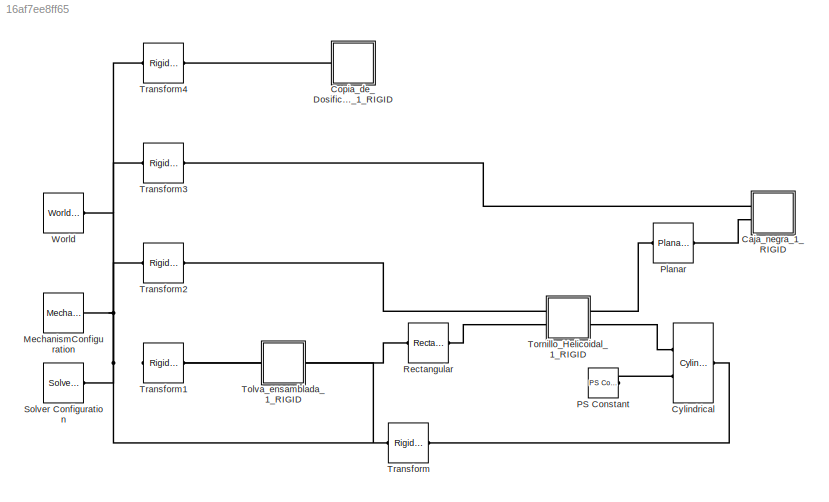
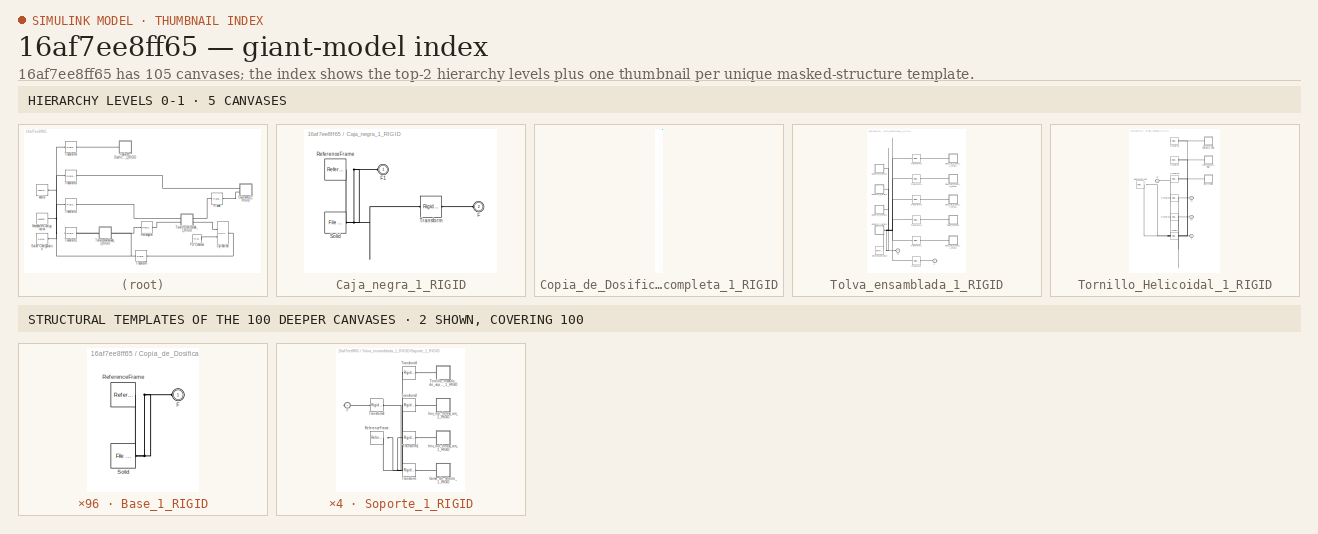
[diagram: thumbnail index - top-2 hierarchy levels (5 canvases) + 2 structural-template representatives of the remaining 100 canvases]
MODEL slx_16af7ee8ff65
KIND model
CONFIG AbsTol = auto
CONFIG EnableMultiTasking = off
CONFIG FixedStep = auto
CONFIG MaxStep = auto
CONFIG MinStep = auto
CONFIG RelTol = 1e-3
CONFIG SampleTimeConstraint = Unconstrained
CONFIG SolverName = VariableStepAuto
CONFIG StartTime = 0.0
CONFIG StopTime = 10.0
WORKSPACE source: external: MATLAB File  (data not in archive)
BLOCK [SubSystem] Caja_negra_1_RIGID
  Ports = [0, 0, 0, 0, 0, 2]
  RequestExecContextInheritance = off
BLOCK [PMIOPort] Caja_negra_1_RIGID/F
  Port = 2
  Side = Left
BLOCK [PMIOPort] Caja_negra_1_RIGID/F1
  Side = Left
BLOCK [Reference] Caja_negra_1_RIGID/ReferenceFrame  REF=sm_lib/Frames and
Transforms/Reference
Frame
  Ports = [0, 0, 0, 0, 0, 0, 1]
  SourceBlock = sm_lib/Frames and\nTransforms/Reference\nFrame
  SourceProductBaseCode = MS
  SourceType = Reference\nFrame
BLOCK [Reference] Caja_negra_1_RIGID/Solid  REF=sm_lib/Body Elements/File Solid
  Ports = [0, 0, 0, 0, 0, 0, 1]
  SourceBlock = sm_lib/Body Elements/File Solid
  SourceProductBaseCode = MS
  SourceType = File Solid
BLOCK [Reference] Caja_negra_1_RIGID/Transform  REF=sm_lib/Frames and
Transforms/Rigid
Transform
  Ports = [0, 0, 0, 0, 0, 1, 1]
  SourceBlock = sm_lib/Frames and\nTransforms/Rigid\nTransform
  SourceProductBaseCode = MS
  SourceType = Rigid\nTransform
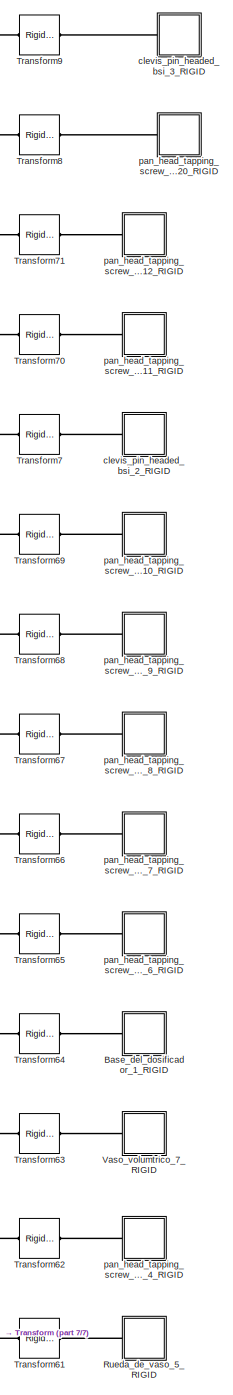
[diagram: Copia_de_Dosificador_VolumtricoMaquina_completa_1_RIGID - part 1/7, top right region]
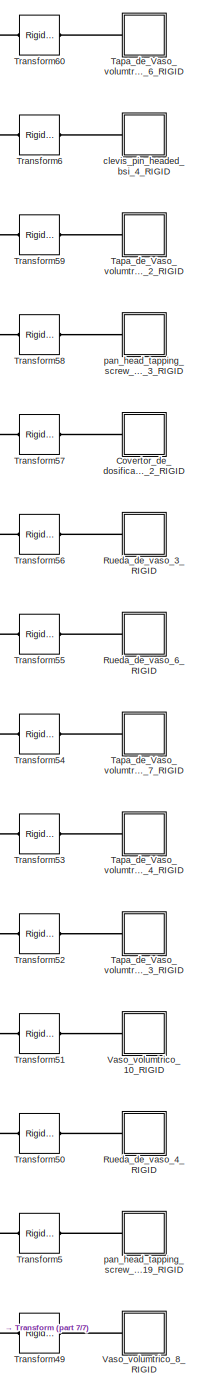
[diagram: Copia_de_Dosificador_VolumtricoMaquina_completa_1_RIGID - part 2/7, top right region]
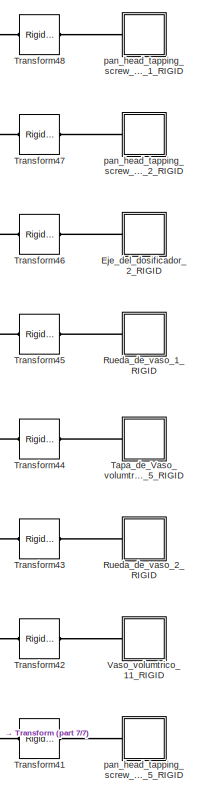
[diagram: Copia_de_Dosificador_VolumtricoMaquina_completa_1_RIGID - part 3/7, middle right region]
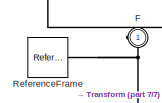
[diagram: Copia_de_Dosificador_VolumtricoMaquina_completa_1_RIGID - part 4/7, middle left region]
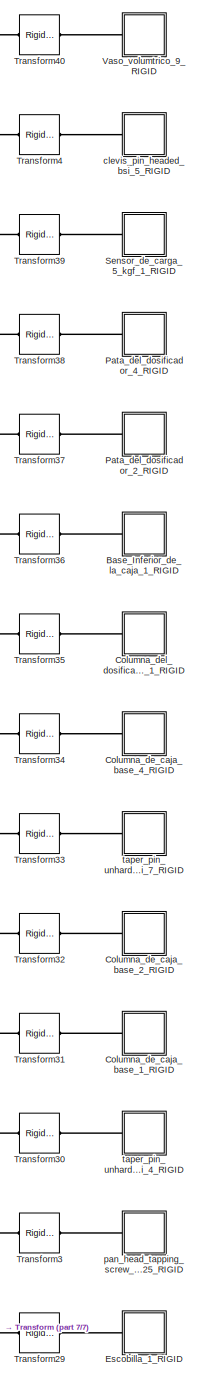
[diagram: Copia_de_Dosificador_VolumtricoMaquina_completa_1_RIGID - part 5/7, middle right region]
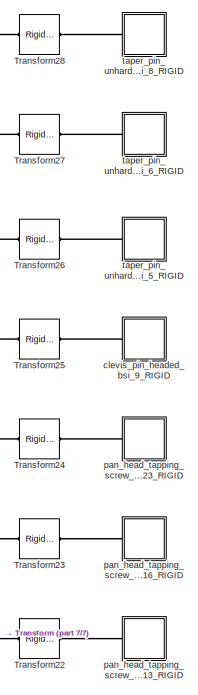
[diagram: Copia_de_Dosificador_VolumtricoMaquina_completa_1_RIGID - part 6/7, bottom right region]
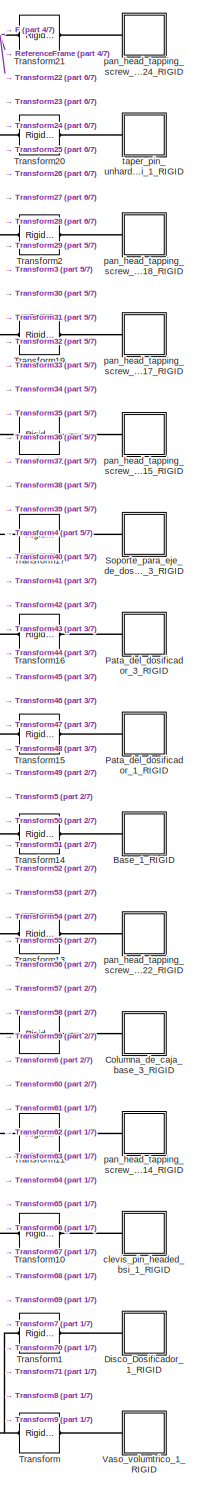
[diagram: Copia_de_Dosificador_VolumtricoMaquina_completa_1_RIGID - part 7/7, bottom right region]
BLOCK [SubSystem] Copia_de_Dosificador_VolumtricoMaquina_completa_1_RIGID
  Ports = [0, 0, 0, 0, 0, 1]
  RequestExecContextInheritance = off
BLOCK [SubSystem] Copia_de_Dosificador_VolumtricoMaquina_completa_1_RIGID/Base_1_RIGID
  Ports = [0, 0, 0, 0, 0, 1]
  RequestExecContextInheritance = off
BLOCK [PMIOPort] Copia_de_Dosificador_VolumtricoMaquina_completa_1_RIGID/Base_1_RIGID/F
  Side = Left
BLOCK [Reference] Copia_de_Dosificador_VolumtricoMaquina_completa_1_RIGID/Base_1_RIGID/ReferenceFrame  REF=sm_lib/Frames and
Transforms/Reference
Frame
  Ports = [0, 0, 0, 0, 0, 0, 1]
  SourceBlock = sm_lib/Frames and\nTransforms/Reference\nFrame
  SourceProductBaseCode = MS
  SourceType = Reference\nFrame
BLOCK [Reference] Copia_de_Dosificador_VolumtricoMaquina_completa_1_RIGID/Base_1_RIGID/Solid  REF=sm_lib/Body Elements/File Solid
  Ports = [0, 0, 0, 0, 0, 0, 1]
  SourceBlock = sm_lib/Body Elements/File Solid
  SourceProductBaseCode = MS
  SourceType = File Solid
BLOCK [SubSystem] Copia_de_Dosificador_VolumtricoMaquina_completa_1_RIGID/Base_Inferior_de_la_caja_1_RIGID
  Ports = [0, 0, 0, 0, 0, 1]
  RequestExecContextInheritance = off
BLOCK [PMIOPort] Copia_de_Dosificador_VolumtricoMaquina_completa_1_RIGID/Base_Inferior_de_la_caja_1_RIGID/F
  Side = Left
BLOCK [Reference] Copia_de_Dosificador_VolumtricoMaquina_completa_1_RIGID/Base_Inferior_de_la_caja_1_RIGID/ReferenceFrame  REF=sm_lib/Frames and
Transforms/Reference
Frame
  Ports = [0, 0, 0, 0, 0, 0, 1]
  SourceBlock = sm_lib/Frames and\nTransforms/Reference\nFrame
  SourceProductBaseCode = MS
  SourceType = Reference\nFrame
BLOCK [Reference] Copia_de_Dosificador_VolumtricoMaquina_completa_1_RIGID/Base_Inferior_de_la_caja_1_RIGID/Solid  REF=sm_lib/Body Elements/File Solid
  Ports = [0, 0, 0, 0, 0, 0, 1]
  SourceBlock = sm_lib/Body Elements/File Solid
  SourceProductBaseCode = MS
  SourceType = File Solid
BLOCK [SubSystem] Copia_de_Dosificador_VolumtricoMaquina_completa_1_RIGID/Base_del_dosificador_1_RIGID
  Ports = [0, 0, 0, 0, 0, 1]
  RequestExecContextInheritance = off
BLOCK [PMIOPort] Copia_de_Dosificador_VolumtricoMaquina_completa_1_RIGID/Base_del_dosificador_1_RIGID/F
  Side = Left
BLOCK [Reference] Copia_de_Dosificador_VolumtricoMaquina_completa_1_RIGID/Base_del_dosificador_1_RIGID/ReferenceFrame  REF=sm_lib/Frames and
Transforms/Reference
Frame
  Ports = [0, 0, 0, 0, 0, 0, 1]
  SourceBlock = sm_lib/Frames and\nTransforms/Reference\nFrame
  SourceProductBaseCode = MS
  SourceType = Reference\nFrame
BLOCK [Reference] Copia_de_Dosificador_VolumtricoMaquina_completa_1_RIGID/Base_del_dosificador_1_RIGID/Solid  REF=sm_lib/Body Elements/File Solid
  Ports = [0, 0, 0, 0, 0, 0, 1]
  SourceBlock = sm_lib/Body Elements/File Solid
  SourceProductBaseCode = MS
  SourceType = File Solid
BLOCK [SubSystem] Copia_de_Dosificador_VolumtricoMaquina_completa_1_RIGID/Columna_de_caja_base_1_RIGID
  Ports = [0, 0, 0, 0, 0, 1]
  RequestExecContextInheritance = off
BLOCK [PMIOPort] Copia_de_Dosificador_VolumtricoMaquina_completa_1_RIGID/Columna_de_caja_base_1_RIGID/F
  Side = Left
BLOCK [Reference] Copia_de_Dosificador_VolumtricoMaquina_completa_1_RIGID/Columna_de_caja_base_1_RIGID/ReferenceFrame  REF=sm_lib/Frames and
Transforms/Reference
Frame
  Ports = [0, 0, 0, 0, 0, 0, 1]
  SourceBlock = sm_lib/Frames and\nTransforms/Reference\nFrame
  SourceProductBaseCode = MS
  SourceType = Reference\nFrame
BLOCK [Reference] Copia_de_Dosificador_VolumtricoMaquina_completa_1_RIGID/Columna_de_caja_base_1_RIGID/Solid  REF=sm_lib/Body Elements/File Solid
  Ports = [0, 0, 0, 0, 0, 0, 1]
  SourceBlock = sm_lib/Body Elements/File Solid
  SourceProductBaseCode = MS
  SourceType = File Solid
BLOCK [SubSystem] Copia_de_Dosificador_VolumtricoMaquina_completa_1_RIGID/Columna_de_caja_base_2_RIGID
  Ports = [0, 0, 0, 0, 0, 1]
  RequestExecContextInheritance = off
BLOCK [PMIOPort] Copia_de_Dosificador_VolumtricoMaquina_completa_1_RIGID/Columna_de_caja_base_2_RIGID/F
  Side = Left
BLOCK [Reference] Copia_de_Dosificador_VolumtricoMaquina_completa_1_RIGID/Columna_de_caja_base_2_RIGID/ReferenceFrame  REF=sm_lib/Frames and
Transforms/Reference
Frame
  Ports = [0, 0, 0, 0, 0, 0, 1]
  SourceBlock = sm_lib/Frames and\nTransforms/Reference\nFrame
  SourceProductBaseCode = MS
  SourceType = Reference\nFrame
BLOCK [Reference] Copia_de_Dosificador_VolumtricoMaquina_completa_1_RIGID/Columna_de_caja_base_2_RIGID/Solid  REF=sm_lib/Body Elements/File Solid
  Ports = [0, 0, 0, 0, 0, 0, 1]
  SourceBlock = sm_lib/Body Elements/File Solid
  SourceProductBaseCode = MS
  SourceType = File Solid
BLOCK [SubSystem] Copia_de_Dosificador_VolumtricoMaquina_completa_1_RIGID/Columna_de_caja_base_3_RIGID
  Ports = [0, 0, 0, 0, 0, 1]
  RequestExecContextInheritance = off
BLOCK [PMIOPort] Copia_de_Dosificador_VolumtricoMaquina_completa_1_RIGID/Columna_de_caja_base_3_RIGID/F
  Side = Left
BLOCK [Reference] Copia_de_Dosificador_VolumtricoMaquina_completa_1_RIGID/Columna_de_caja_base_3_RIGID/ReferenceFrame  REF=sm_lib/Frames and
Transforms/Reference
Frame
  Ports = [0, 0, 0, 0, 0, 0, 1]
  SourceBlock = sm_lib/Frames and\nTransforms/Reference\nFrame
  SourceProductBaseCode = MS
  SourceType = Reference\nFrame
BLOCK [Reference] Copia_de_Dosificador_VolumtricoMaquina_completa_1_RIGID/Columna_de_caja_base_3_RIGID/Solid  REF=sm_lib/Body Elements/File Solid
  Ports = [0, 0, 0, 0, 0, 0, 1]
  SourceBlock = sm_lib/Body Elements/File Solid
  SourceProductBaseCode = MS
  SourceType = File Solid
BLOCK [SubSystem] Copia_de_Dosificador_VolumtricoMaquina_completa_1_RIGID/Columna_de_caja_base_4_RIGID
  Ports = [0, 0, 0, 0, 0, 1]
  RequestExecContextInheritance = off
BLOCK [PMIOPort] Copia_de_Dosificador_VolumtricoMaquina_completa_1_RIGID/Columna_de_caja_base_4_RIGID/F
  Side = Left
BLOCK [Reference] Copia_de_Dosificador_VolumtricoMaquina_completa_1_RIGID/Columna_de_caja_base_4_RIGID/ReferenceFrame  REF=sm_lib/Frames and
Transforms/Reference
Frame
  Ports = [0, 0, 0, 0, 0, 0, 1]
  SourceBlock = sm_lib/Frames and\nTransforms/Reference\nFrame
  SourceProductBaseCode = MS
  SourceType = Reference\nFrame
BLOCK [Reference] Copia_de_Dosificador_VolumtricoMaquina_completa_1_RIGID/Columna_de_caja_base_4_RIGID/Solid  REF=sm_lib/Body Elements/File Solid
  Ports = [0, 0, 0, 0, 0, 0, 1]
  SourceBlock = sm_lib/Body Elements/File Solid
  SourceProductBaseCode = MS
  SourceType = File Solid
BLOCK [SubSystem] Copia_de_Dosificador_VolumtricoMaquina_completa_1_RIGID/Columna_del_dosificador_1_RIGID
  Ports = [0, 0, 0, 0, 0, 1]
  RequestExecContextInheritance = off
BLOCK [PMIOPort] Copia_de_Dosificador_VolumtricoMaquina_completa_1_RIGID/Columna_del_dosificador_1_RIGID/F
  Side = Left
BLOCK [Reference] Copia_de_Dosificador_VolumtricoMaquina_completa_1_RIGID/Columna_del_dosificador_1_RIGID/ReferenceFrame  REF=sm_lib/Frames and
Transforms/Reference
Frame
  Ports = [0, 0, 0, 0, 0, 0, 1]
  SourceBlock = sm_lib/Frames and\nTransforms/Reference\nFrame
  SourceProductBaseCode = MS
  SourceType = Reference\nFrame
BLOCK [Reference] Copia_de_Dosificador_VolumtricoMaquina_completa_1_RIGID/Columna_del_dosificador_1_RIGID/Solid  REF=sm_lib/Body Elements/File Solid
  Ports = [0, 0, 0, 0, 0, 0, 1]
  SourceBlock = sm_lib/Body Elements/File Solid
  SourceProductBaseCode = MS
  SourceType = File Solid
BLOCK [SubSystem] Copia_de_Dosificador_VolumtricoMaquina_completa_1_RIGID/Covertor_de_dosificador_2_RIGID
  Ports = [0, 0, 0, 0, 0, 1]
  RequestExecContextInheritance = off
BLOCK [PMIOPort] Copia_de_Dosificador_VolumtricoMaquina_completa_1_RIGID/Covertor_de_dosificador_2_RIGID/F
  Side = Left
BLOCK [Reference] Copia_de_Dosificador_VolumtricoMaquina_completa_1_RIGID/Covertor_de_dosificador_2_RIGID/ReferenceFrame  REF=sm_lib/Frames and
Transforms/Reference
Frame
  Ports = [0, 0, 0, 0, 0, 0, 1]
  SourceBlock = sm_lib/Frames and\nTransforms/Reference\nFrame
  SourceProductBaseCode = MS
  SourceType = Reference\nFrame
BLOCK [Reference] Copia_de_Dosificador_VolumtricoMaquina_completa_1_RIGID/Covertor_de_dosificador_2_RIGID/Solid  REF=sm_lib/Body Elements/File Solid
  Ports = [0, 0, 0, 0, 0, 0, 1]
  SourceBlock = sm_lib/Body Elements/File Solid
  SourceProductBaseCode = MS
  SourceType = File Solid
BLOCK [SubSystem] Copia_de_Dosificador_VolumtricoMaquina_completa_1_RIGID/Disco_Dosificador_1_RIGID
  Ports = [0, 0, 0, 0, 0, 1]
  RequestExecContextInheritance = off
BLOCK [PMIOPort] Copia_de_Dosificador_VolumtricoMaquina_completa_1_RIGID/Disco_Dosificador_1_RIGID/F
  Side = Left
BLOCK [Reference] Copia_de_Dosificador_VolumtricoMaquina_completa_1_RIGID/Disco_Dosificador_1_RIGID/ReferenceFrame  REF=sm_lib/Frames and
Transforms/Reference
Frame
  Ports = [0, 0, 0, 0, 0, 0, 1]
  SourceBlock = sm_lib/Frames and\nTransforms/Reference\nFrame
  SourceProductBaseCode = MS
  SourceType = Reference\nFrame
BLOCK [Reference] Copia_de_Dosificador_VolumtricoMaquina_completa_1_RIGID/Disco_Dosificador_1_RIGID/Solid  REF=sm_lib/Body Elements/File Solid
  Ports = [0, 0, 0, 0, 0, 0, 1]
  SourceBlock = sm_lib/Body Elements/File Solid
  SourceProductBaseCode = MS
  SourceType = File Solid
BLOCK [SubSystem] Copia_de_Dosificador_VolumtricoMaquina_completa_1_RIGID/Eje_del_dosificador_2_RIGID
  Ports = [0, 0, 0, 0, 0, 1]
  RequestExecContextInheritance = off
BLOCK [PMIOPort] Copia_de_Dosificador_VolumtricoMaquina_completa_1_RIGID/Eje_del_dosificador_2_RIGID/F
  Side = Left
BLOCK [Reference] Copia_de_Dosificador_VolumtricoMaquina_completa_1_RIGID/Eje_del_dosificador_2_RIGID/ReferenceFrame  REF=sm_lib/Frames and
Transforms/Reference
Frame
  Ports = [0, 0, 0, 0, 0, 0, 1]
  SourceBlock = sm_lib/Frames and\nTransforms/Reference\nFrame
  SourceProductBaseCode = MS
  SourceType = Reference\nFrame
BLOCK [Reference] Copia_de_Dosificador_VolumtricoMaquina_completa_1_RIGID/Eje_del_dosificador_2_RIGID/Solid  REF=sm_lib/Body Elements/File Solid
  Ports = [0, 0, 0, 0, 0, 0, 1]
  SourceBlock = sm_lib/Body Elements/File Solid
  SourceProductBaseCode = MS
  SourceType = File Solid
BLOCK [SubSystem] Copia_de_Dosificador_VolumtricoMaquina_completa_1_RIGID/Escobilla_1_RIGID
  Ports = [0, 0, 0, 0, 0, 1]
  RequestExecContextInheritance = off
BLOCK [PMIOPort] Copia_de_Dosificador_VolumtricoMaquina_completa_1_RIGID/Escobilla_1_RIGID/F
  Side = Left
BLOCK [Reference] Copia_de_Dosificador_VolumtricoMaquina_completa_1_RIGID/Escobilla_1_RIGID/ReferenceFrame  REF=sm_lib/Frames and
Transforms/Reference
Frame
  Ports = [0, 0, 0, 0, 0, 0, 1]
  SourceBlock = sm_lib/Frames and\nTransforms/Reference\nFrame
  SourceProductBaseCode = MS
  SourceType = Reference\nFrame
BLOCK [Reference] Copia_de_Dosificador_VolumtricoMaquina_completa_1_RIGID/Escobilla_1_RIGID/Solid  REF=sm_lib/Body Elements/File Solid
  Ports = [0, 0, 0, 0, 0, 0, 1]
  SourceBlock = sm_lib/Body Elements/File Solid
  SourceProductBaseCode = MS
  SourceType = File Solid
BLOCK [PMIOPort] Copia_de_Dosificador_VolumtricoMaquina_completa_1_RIGID/F
  Side = Left
BLOCK [SubSystem] Copia_de_Dosificador_VolumtricoMaquina_completa_1_RIGID/Pata_del_dosificador_1_RIGID
  Ports = [0, 0, 0, 0, 0, 1]
  RequestExecContextInheritance = off
BLOCK [PMIOPort] Copia_de_Dosificador_VolumtricoMaquina_completa_1_RIGID/Pata_del_dosificador_1_RIGID/F
  Side = Left
BLOCK [Reference] Copia_de_Dosificador_VolumtricoMaquina_completa_1_RIGID/Pata_del_dosificador_1_RIGID/ReferenceFrame  REF=sm_lib/Frames and
Transforms/Reference
Frame
  Ports = [0, 0, 0, 0, 0, 0, 1]
  SourceBlock = sm_lib/Frames and\nTransforms/Reference\nFrame
  SourceProductBaseCode = MS
  SourceType = Reference\nFrame
BLOCK [Reference] Copia_de_Dosificador_VolumtricoMaquina_completa_1_RIGID/Pata_del_dosificador_1_RIGID/Solid  REF=sm_lib/Body Elements/File Solid
  Ports = [0, 0, 0, 0, 0, 0, 1]
  SourceBlock = sm_lib/Body Elements/File Solid
  SourceProductBaseCode = MS
  SourceType = File Solid
BLOCK [SubSystem] Copia_de_Dosificador_VolumtricoMaquina_completa_1_RIGID/Pata_del_dosificador_2_RIGID
  Ports = [0, 0, 0, 0, 0, 1]
  RequestExecContextInheritance = off
BLOCK [PMIOPort] Copia_de_Dosificador_VolumtricoMaquina_completa_1_RIGID/Pata_del_dosificador_2_RIGID/F
  Side = Left
BLOCK [Reference] Copia_de_Dosificador_VolumtricoMaquina_completa_1_RIGID/Pata_del_dosificador_2_RIGID/ReferenceFrame  REF=sm_lib/Frames and
Transforms/Reference
Frame
  Ports = [0, 0, 0, 0, 0, 0, 1]
  SourceBlock = sm_lib/Frames and\nTransforms/Reference\nFrame
  SourceProductBaseCode = MS
  SourceType = Reference\nFrame
BLOCK [Reference] Copia_de_Dosificador_VolumtricoMaquina_completa_1_RIGID/Pata_del_dosificador_2_RIGID/Solid  REF=sm_lib/Body Elements/File Solid
  Ports = [0, 0, 0, 0, 0, 0, 1]
  SourceBlock = sm_lib/Body Elements/File Solid
  SourceProductBaseCode = MS
  SourceType = File Solid
BLOCK [SubSystem] Copia_de_Dosificador_VolumtricoMaquina_completa_1_RIGID/Pata_del_dosificador_3_RIGID
  Ports = [0, 0, 0, 0, 0, 1]
  RequestExecContextInheritance = off
BLOCK [PMIOPort] Copia_de_Dosificador_VolumtricoMaquina_completa_1_RIGID/Pata_del_dosificador_3_RIGID/F
  Side = Left
BLOCK [Reference] Copia_de_Dosificador_VolumtricoMaquina_completa_1_RIGID/Pata_del_dosificador_3_RIGID/ReferenceFrame  REF=sm_lib/Frames and
Transforms/Reference
Frame
  Ports = [0, 0, 0, 0, 0, 0, 1]
  SourceBlock = sm_lib/Frames and\nTransforms/Reference\nFrame
  SourceProductBaseCode = MS
  SourceType = Reference\nFrame
BLOCK [Reference] Copia_de_Dosificador_VolumtricoMaquina_completa_1_RIGID/Pata_del_dosificador_3_RIGID/Solid  REF=sm_lib/Body Elements/File Solid
  Ports = [0, 0, 0, 0, 0, 0, 1]
  SourceBlock = sm_lib/Body Elements/File Solid
  SourceProductBaseCode = MS
  SourceType = File Solid
BLOCK [SubSystem] Copia_de_Dosificador_VolumtricoMaquina_completa_1_RIGID/Pata_del_dosificador_4_RIGID
  Ports = [0, 0, 0, 0, 0, 1]
  RequestExecContextInheritance = off
BLOCK [PMIOPort] Copia_de_Dosificador_VolumtricoMaquina_completa_1_RIGID/Pata_del_dosificador_4_RIGID/F
  Side = Left
BLOCK [Reference] Copia_de_Dosificador_VolumtricoMaquina_completa_1_RIGID/Pata_del_dosificador_4_RIGID/ReferenceFrame  REF=sm_lib/Frames and
Transforms/Reference
Frame
  Ports = [0, 0, 0, 0, 0, 0, 1]
  SourceBlock = sm_lib/Frames and\nTransforms/Reference\nFrame
  SourceProductBaseCode = MS
  SourceType = Reference\nFrame
BLOCK [Reference] Copia_de_Dosificador_VolumtricoMaquina_completa_1_RIGID/Pata_del_dosificador_4_RIGID/Solid  REF=sm_lib/Body Elements/File Solid
  Ports = [0, 0, 0, 0, 0, 0, 1]
  SourceBlock = sm_lib/Body Elements/File Solid
  SourceProductBaseCode = MS
  SourceType = File Solid
BLOCK [Reference] Copia_de_Dosificador_VolumtricoMaquina_completa_1_RIGID/ReferenceFrame  REF=sm_lib/Frames and
Transforms/Reference
Frame
  Ports = [0, 0, 0, 0, 0, 0, 1]
  SourceBlock = sm_lib/Frames and\nTransforms/Reference\nFrame
  SourceProductBaseCode = MS
  SourceType = Reference\nFrame
BLOCK [SubSystem] Copia_de_Dosificador_VolumtricoMaquina_completa_1_RIGID/Rueda_de_vaso_1_RIGID
  Ports = [0, 0, 0, 0, 0, 1]
  RequestExecContextInheritance = off
BLOCK [PMIOPort] Copia_de_Dosificador_VolumtricoMaquina_completa_1_RIGID/Rueda_de_vaso_1_RIGID/F
  Side = Left
BLOCK [Reference] Copia_de_Dosificador_VolumtricoMaquina_completa_1_RIGID/Rueda_de_vaso_1_RIGID/ReferenceFrame  REF=sm_lib/Frames and
Transforms/Reference
Frame
  Ports = [0, 0, 0, 0, 0, 0, 1]
  SourceBlock = sm_lib/Frames and\nTransforms/Reference\nFrame
  SourceProductBaseCode = MS
  SourceType = Reference\nFrame
BLOCK [Reference] Copia_de_Dosificador_VolumtricoMaquina_completa_1_RIGID/Rueda_de_vaso_1_RIGID/Solid  REF=sm_lib/Body Elements/File Solid
  Ports = [0, 0, 0, 0, 0, 0, 1]
  SourceBlock = sm_lib/Body Elements/File Solid
  SourceProductBaseCode = MS
  SourceType = File Solid
BLOCK [SubSystem] Copia_de_Dosificador_VolumtricoMaquina_completa_1_RIGID/Rueda_de_vaso_2_RIGID
  Ports = [0, 0, 0, 0, 0, 1]
  RequestExecContextInheritance = off
BLOCK [PMIOPort] Copia_de_Dosificador_VolumtricoMaquina_completa_1_RIGID/Rueda_de_vaso_2_RIGID/F
  Side = Left
BLOCK [Reference] Copia_de_Dosificador_VolumtricoMaquina_completa_1_RIGID/Rueda_de_vaso_2_RIGID/ReferenceFrame  REF=sm_lib/Frames and
Transforms/Reference
Frame
  Ports = [0, 0, 0, 0, 0, 0, 1]
  SourceBlock = sm_lib/Frames and\nTransforms/Reference\nFrame
  SourceProductBaseCode = MS
  SourceType = Reference\nFrame
BLOCK [Reference] Copia_de_Dosificador_VolumtricoMaquina_completa_1_RIGID/Rueda_de_vaso_2_RIGID/Solid  REF=sm_lib/Body Elements/File Solid
  Ports = [0, 0, 0, 0, 0, 0, 1]
  SourceBlock = sm_lib/Body Elements/File Solid
  SourceProductBaseCode = MS
  SourceType = File Solid
BLOCK [SubSystem] Copia_de_Dosificador_VolumtricoMaquina_completa_1_RIGID/Rueda_de_vaso_3_RIGID
  Ports = [0, 0, 0, 0, 0, 1]
  RequestExecContextInheritance = off
BLOCK [PMIOPort] Copia_de_Dosificador_VolumtricoMaquina_completa_1_RIGID/Rueda_de_vaso_3_RIGID/F
  Side = Left
BLOCK [Reference] Copia_de_Dosificador_VolumtricoMaquina_completa_1_RIGID/Rueda_de_vaso_3_RIGID/ReferenceFrame  REF=sm_lib/Frames and
Transforms/Reference
Frame
  Ports = [0, 0, 0, 0, 0, 0, 1]
  SourceBlock = sm_lib/Frames and\nTransforms/Reference\nFrame
  SourceProductBaseCode = MS
  SourceType = Reference\nFrame
BLOCK [Reference] Copia_de_Dosificador_VolumtricoMaquina_completa_1_RIGID/Rueda_de_vaso_3_RIGID/Solid  REF=sm_lib/Body Elements/File Solid
  Ports = [0, 0, 0, 0, 0, 0, 1]
  SourceBlock = sm_lib/Body Elements/File Solid
  SourceProductBaseCode = MS
  SourceType = File Solid
BLOCK [SubSystem] Copia_de_Dosificador_VolumtricoMaquina_completa_1_RIGID/Rueda_de_vaso_4_RIGID
  Ports = [0, 0, 0, 0, 0, 1]
  RequestExecContextInheritance = off
BLOCK [PMIOPort] Copia_de_Dosificador_VolumtricoMaquina_completa_1_RIGID/Rueda_de_vaso_4_RIGID/F
  Side = Left
BLOCK [Reference] Copia_de_Dosificador_VolumtricoMaquina_completa_1_RIGID/Rueda_de_vaso_4_RIGID/ReferenceFrame  REF=sm_lib/Frames and
Transforms/Reference
Frame
  Ports = [0, 0, 0, 0, 0, 0, 1]
  SourceBlock = sm_lib/Frames and\nTransforms/Reference\nFrame
  SourceProductBaseCode = MS
  SourceType = Reference\nFrame
BLOCK [Reference] Copia_de_Dosificador_VolumtricoMaquina_completa_1_RIGID/Rueda_de_vaso_4_RIGID/Solid  REF=sm_lib/Body Elements/File Solid
  Ports = [0, 0, 0, 0, 0, 0, 1]
  SourceBlock = sm_lib/Body Elements/File Solid
  SourceProductBaseCode = MS
  SourceType = File Solid
BLOCK [SubSystem] Copia_de_Dosificador_VolumtricoMaquina_completa_1_RIGID/Rueda_de_vaso_5_RIGID
  Ports = [0, 0, 0, 0, 0, 1]
  RequestExecContextInheritance = off
BLOCK [PMIOPort] Copia_de_Dosificador_VolumtricoMaquina_completa_1_RIGID/Rueda_de_vaso_5_RIGID/F
  Side = Left
BLOCK [Reference] Copia_de_Dosificador_VolumtricoMaquina_completa_1_RIGID/Rueda_de_vaso_5_RIGID/ReferenceFrame  REF=sm_lib/Frames and
Transforms/Reference
Frame
  Ports = [0, 0, 0, 0, 0, 0, 1]
  SourceBlock = sm_lib/Frames and\nTransforms/Reference\nFrame
  SourceProductBaseCode = MS
  SourceType = Reference\nFrame
BLOCK [Reference] Copia_de_Dosificador_VolumtricoMaquina_completa_1_RIGID/Rueda_de_vaso_5_RIGID/Solid  REF=sm_lib/Body Elements/File Solid
  Ports = [0, 0, 0, 0, 0, 0, 1]
  SourceBlock = sm_lib/Body Elements/File Solid
  SourceProductBaseCode = MS
  SourceType = File Solid
BLOCK [SubSystem] Copia_de_Dosificador_VolumtricoMaquina_completa_1_RIGID/Rueda_de_vaso_6_RIGID
  Ports = [0, 0, 0, 0, 0, 1]
  RequestExecContextInheritance = off
BLOCK [PMIOPort] Copia_de_Dosificador_VolumtricoMaquina_completa_1_RIGID/Rueda_de_vaso_6_RIGID/F
  Side = Left
BLOCK [Reference] Copia_de_Dosificador_VolumtricoMaquina_completa_1_RIGID/Rueda_de_vaso_6_RIGID/ReferenceFrame  REF=sm_lib/Frames and
Transforms/Reference
Frame
  Ports = [0, 0, 0, 0, 0, 0, 1]
  SourceBlock = sm_lib/Frames and\nTransforms/Reference\nFrame
  SourceProductBaseCode = MS
  SourceType = Reference\nFrame
BLOCK [Reference] Copia_de_Dosificador_VolumtricoMaquina_completa_1_RIGID/Rueda_de_vaso_6_RIGID/Solid  REF=sm_lib/Body Elements/File Solid
  Ports = [0, 0, 0, 0, 0, 0, 1]
  SourceBlock = sm_lib/Body Elements/File Solid
  SourceProductBaseCode = MS
  SourceType = File Solid
BLOCK [SubSystem] Copia_de_Dosificador_VolumtricoMaquina_completa_1_RIGID/Sensor_de_carga_5_kgf_1_RIGID
  Ports = [0, 0, 0, 0, 0, 1]
  RequestExecContextInheritance = off
BLOCK [PMIOPort] Copia_de_Dosificador_VolumtricoMaquina_completa_1_RIGID/Sensor_de_carga_5_kgf_1_RIGID/F
  Side = Left
BLOCK [Reference] Copia_de_Dosificador_VolumtricoMaquina_completa_1_RIGID/Sensor_de_carga_5_kgf_1_RIGID/ReferenceFrame  REF=sm_lib/Frames and
Transforms/Reference
Frame
  Ports = [0, 0, 0, 0, 0, 0, 1]
  SourceBlock = sm_lib/Frames and\nTransforms/Reference\nFrame
  SourceProductBaseCode = MS
  SourceType = Reference\nFrame
BLOCK [Reference] Copia_de_Dosificador_VolumtricoMaquina_completa_1_RIGID/Sensor_de_carga_5_kgf_1_RIGID/Solid  REF=sm_lib/Body Elements/File Solid
  Ports = [0, 0, 0, 0, 0, 0, 1]
  SourceBlock = sm_lib/Body Elements/File Solid
  SourceProductBaseCode = MS
  SourceType = File Solid
BLOCK [SubSystem] Copia_de_Dosificador_VolumtricoMaquina_completa_1_RIGID/Soporte_para_eje_de_dosificadora_3_RIGID
  Ports = [0, 0, 0, 0, 0, 1]
  RequestExecContextInheritance = off
BLOCK [PMIOPort] Copia_de_Dosificador_VolumtricoMaquina_completa_1_RIGID/Soporte_para_eje_de_dosificadora_3_RIGID/F
  Side = Left
BLOCK [Reference] Copia_de_Dosificador_VolumtricoMaquina_completa_1_RIGID/Soporte_para_eje_de_dosificadora_3_RIGID/ReferenceFrame  REF=sm_lib/Frames and
Transforms/Reference
Frame
  Ports = [0, 0, 0, 0, 0, 0, 1]
  SourceBlock = sm_lib/Frames and\nTransforms/Reference\nFrame
  SourceProductBaseCode = MS
  SourceType = Reference\nFrame
BLOCK [Reference] Copia_de_Dosificador_VolumtricoMaquina_completa_1_RIGID/Soporte_para_eje_de_dosificadora_3_RIGID/Solid  REF=sm_lib/Body Elements/File Solid
  Ports = [0, 0, 0, 0, 0, 0, 1]
  SourceBlock = sm_lib/Body Elements/File Solid
  SourceProductBaseCode = MS
  SourceType = File Solid
BLOCK [SubSystem] Copia_de_Dosificador_VolumtricoMaquina_completa_1_RIGID/Tapa_de_Vaso_volumtrico_2_RIGID
  Ports = [0, 0, 0, 0, 0, 1]
  RequestExecContextInheritance = off
BLOCK [PMIOPort] Copia_de_Dosificador_VolumtricoMaquina_completa_1_RIGID/Tapa_de_Vaso_volumtrico_2_RIGID/F
  Side = Left
BLOCK [Reference] Copia_de_Dosificador_VolumtricoMaquina_completa_1_RIGID/Tapa_de_Vaso_volumtrico_2_RIGID/ReferenceFrame  REF=sm_lib/Frames and
Transforms/Reference
Frame
  Ports = [0, 0, 0, 0, 0, 0, 1]
  SourceBlock = sm_lib/Frames and\nTransforms/Reference\nFrame
  SourceProductBaseCode = MS
  SourceType = Reference\nFrame
BLOCK [Reference] Copia_de_Dosificador_VolumtricoMaquina_completa_1_RIGID/Tapa_de_Vaso_volumtrico_2_RIGID/Solid  REF=sm_lib/Body Elements/File Solid
  Ports = [0, 0, 0, 0, 0, 0, 1]
  SourceBlock = sm_lib/Body Elements/File Solid
  SourceProductBaseCode = MS
  SourceType = File Solid
BLOCK [SubSystem] Copia_de_Dosificador_VolumtricoMaquina_completa_1_RIGID/Tapa_de_Vaso_volumtrico_3_RIGID
  Ports = [0, 0, 0, 0, 0, 1]
  RequestExecContextInheritance = off
BLOCK [PMIOPort] Copia_de_Dosificador_VolumtricoMaquina_completa_1_RIGID/Tapa_de_Vaso_volumtrico_3_RIGID/F
  Side = Left
BLOCK [Reference] Copia_de_Dosificador_VolumtricoMaquina_completa_1_RIGID/Tapa_de_Vaso_volumtrico_3_RIGID/ReferenceFrame  REF=sm_lib/Frames and
Transforms/Reference
Frame
  Ports = [0, 0, 0, 0, 0, 0, 1]
  SourceBlock = sm_lib/Frames and\nTransforms/Reference\nFrame
  SourceProductBaseCode = MS
  SourceType = Reference\nFrame
BLOCK [Reference] Copia_de_Dosificador_VolumtricoMaquina_completa_1_RIGID/Tapa_de_Vaso_volumtrico_3_RIGID/Solid  REF=sm_lib/Body Elements/File Solid
  Ports = [0, 0, 0, 0, 0, 0, 1]
  SourceBlock = sm_lib/Body Elements/File Solid
  SourceProductBaseCode = MS
  SourceType = File Solid
BLOCK [SubSystem] Copia_de_Dosificador_VolumtricoMaquina_completa_1_RIGID/Tapa_de_Vaso_volumtrico_4_RIGID
  Ports = [0, 0, 0, 0, 0, 1]
  RequestExecContextInheritance = off
BLOCK [PMIOPort] Copia_de_Dosificador_VolumtricoMaquina_completa_1_RIGID/Tapa_de_Vaso_volumtrico_4_RIGID/F
  Side = Left
BLOCK [Reference] Copia_de_Dosificador_VolumtricoMaquina_completa_1_RIGID/Tapa_de_Vaso_volumtrico_4_RIGID/ReferenceFrame  REF=sm_lib/Frames and
Transforms/Reference
Frame
  Ports = [0, 0, 0, 0, 0, 0, 1]
  SourceBlock = sm_lib/Frames and\nTransforms/Reference\nFrame
  SourceProductBaseCode = MS
  SourceType = Reference\nFrame
BLOCK [Reference] Copia_de_Dosificador_VolumtricoMaquina_completa_1_RIGID/Tapa_de_Vaso_volumtrico_4_RIGID/Solid  REF=sm_lib/Body Elements/File Solid
  Ports = [0, 0, 0, 0, 0, 0, 1]
  SourceBlock = sm_lib/Body Elements/File Solid
  SourceProductBaseCode = MS
  SourceType = File Solid
BLOCK [SubSystem] Copia_de_Dosificador_VolumtricoMaquina_completa_1_RIGID/Tapa_de_Vaso_volumtrico_5_RIGID
  Ports = [0, 0, 0, 0, 0, 1]
  RequestExecContextInheritance = off
BLOCK [PMIOPort] Copia_de_Dosificador_VolumtricoMaquina_completa_1_RIGID/Tapa_de_Vaso_volumtrico_5_RIGID/F
  Side = Left
BLOCK [Reference] Copia_de_Dosificador_VolumtricoMaquina_completa_1_RIGID/Tapa_de_Vaso_volumtrico_5_RIGID/ReferenceFrame  REF=sm_lib/Frames and
Transforms/Reference
Frame
  Ports = [0, 0, 0, 0, 0, 0, 1]
  SourceBlock = sm_lib/Frames and\nTransforms/Reference\nFrame
  SourceProductBaseCode = MS
  SourceType = Reference\nFrame
BLOCK [Reference] Copia_de_Dosificador_VolumtricoMaquina_completa_1_RIGID/Tapa_de_Vaso_volumtrico_5_RIGID/Solid  REF=sm_lib/Body Elements/File Solid
  Ports = [0, 0, 0, 0, 0, 0, 1]
  SourceBlock = sm_lib/Body Elements/File Solid
  SourceProductBaseCode = MS
  SourceType = File Solid
BLOCK [SubSystem] Copia_de_Dosificador_VolumtricoMaquina_completa_1_RIGID/Tapa_de_Vaso_volumtrico_6_RIGID
  Ports = [0, 0, 0, 0, 0, 1]
  RequestExecContextInheritance = off
BLOCK [PMIOPort] Copia_de_Dosificador_VolumtricoMaquina_completa_1_RIGID/Tapa_de_Vaso_volumtrico_6_RIGID/F
  Side = Left
BLOCK [Reference] Copia_de_Dosificador_VolumtricoMaquina_completa_1_RIGID/Tapa_de_Vaso_volumtrico_6_RIGID/ReferenceFrame  REF=sm_lib/Frames and
Transforms/Reference
Frame
  Ports = [0, 0, 0, 0, 0, 0, 1]
  SourceBlock = sm_lib/Frames and\nTransforms/Reference\nFrame
  SourceProductBaseCode = MS
  SourceType = Reference\nFrame
BLOCK [Reference] Copia_de_Dosificador_VolumtricoMaquina_completa_1_RIGID/Tapa_de_Vaso_volumtrico_6_RIGID/Solid  REF=sm_lib/Body Elements/File Solid
  Ports = [0, 0, 0, 0, 0, 0, 1]
  SourceBlock = sm_lib/Body Elements/File Solid
  SourceProductBaseCode = MS
  SourceType = File Solid
BLOCK [SubSystem] Copia_de_Dosificador_VolumtricoMaquina_completa_1_RIGID/Tapa_de_Vaso_volumtrico_7_RIGID
  Ports = [0, 0, 0, 0, 0, 1]
  RequestExecContextInheritance = off
BLOCK [PMIOPort] Copia_de_Dosificador_VolumtricoMaquina_completa_1_RIGID/Tapa_de_Vaso_volumtrico_7_RIGID/F
  Side = Left
BLOCK [Reference] Copia_de_Dosificador_VolumtricoMaquina_completa_1_RIGID/Tapa_de_Vaso_volumtrico_7_RIGID/ReferenceFrame  REF=sm_lib/Frames and
Transforms/Reference
Frame
  Ports = [0, 0, 0, 0, 0, 0, 1]
  SourceBlock = sm_lib/Frames and\nTransforms/Reference\nFrame
  SourceProductBaseCode = MS
  SourceType = Reference\nFrame
BLOCK [Reference] Copia_de_Dosificador_VolumtricoMaquina_completa_1_RIGID/Tapa_de_Vaso_volumtrico_7_RIGID/Solid  REF=sm_lib/Body Elements/File Solid
  Ports = [0, 0, 0, 0, 0, 0, 1]
  SourceBlock = sm_lib/Body Elements/File Solid
  SourceProductBaseCode = MS
  SourceType = File Solid
BLOCK [Reference] Copia_de_Dosificador_VolumtricoMaquina_completa_1_RIGID/Transform  REF=sm_lib/Frames and
Transforms/Rigid
Transform
  Ports = [0, 0, 0, 0, 0, 1, 1]
  SourceBlock = sm_lib/Frames and\nTransforms/Rigid\nTransform
  SourceProductBaseCode = MS
  SourceType = Rigid\nTransform
BLOCK [Reference] Copia_de_Dosificador_VolumtricoMaquina_completa_1_RIGID/Transform1  REF=sm_lib/Frames and
Transforms/Rigid
Transform
  Ports = [0, 0, 0, 0, 0, 1, 1]
  SourceBlock = sm_lib/Frames and\nTransforms/Rigid\nTransform
  SourceProductBaseCode = MS
  SourceType = Rigid\nTransform
BLOCK [Reference] Copia_de_Dosificador_VolumtricoMaquina_completa_1_RIGID/Transform10  REF=sm_lib/Frames and
Transforms/Rigid
Transform
  Ports = [0, 0, 0, 0, 0, 1, 1]
  SourceBlock = sm_lib/Frames and\nTransforms/Rigid\nTransform
  SourceProductBaseCode = MS
  SourceType = Rigid\nTransform
BLOCK [Reference] Copia_de_Dosificador_VolumtricoMaquina_completa_1_RIGID/Transform11  REF=sm_lib/Frames and
Transforms/Rigid
Transform
  Ports = [0, 0, 0, 0, 0, 1, 1]
  SourceBlock = sm_lib/Frames and\nTransforms/Rigid\nTransform
  SourceProductBaseCode = MS
  SourceType = Rigid\nTransform
BLOCK [Reference] Copia_de_Dosificador_VolumtricoMaquina_completa_1_RIGID/Transform12  REF=sm_lib/Frames and
Transforms/Rigid
Transform
  Ports = [0, 0, 0, 0, 0, 1, 1]
  SourceBlock = sm_lib/Frames and\nTransforms/Rigid\nTransform
  SourceProductBaseCode = MS
  SourceType = Rigid\nTransform
BLOCK [Reference] Copia_de_Dosificador_VolumtricoMaquina_completa_1_RIGID/Transform13  REF=sm_lib/Frames and
Transforms/Rigid
Transform
  Ports = [0, 0, 0, 0, 0, 1, 1]
  SourceBlock = sm_lib/Frames and\nTransforms/Rigid\nTransform
  SourceProductBaseCode = MS
  SourceType = Rigid\nTransform
BLOCK [Reference] Copia_de_Dosificador_VolumtricoMaquina_completa_1_RIGID/Transform14  REF=sm_lib/Frames and
Transforms/Rigid
Transform
  Ports = [0, 0, 0, 0, 0, 1, 1]
  SourceBlock = sm_lib/Frames and\nTransforms/Rigid\nTransform
  SourceProductBaseCode = MS
  SourceType = Rigid\nTransform
BLOCK [Reference] Copia_de_Dosificador_VolumtricoMaquina_completa_1_RIGID/Transform15  REF=sm_lib/Frames and
Transforms/Rigid
Transform
  Ports = [0, 0, 0, 0, 0, 1, 1]
  SourceBlock = sm_lib/Frames and\nTransforms/Rigid\nTransform
  SourceProductBaseCode = MS
  SourceType = Rigid\nTransform
BLOCK [Reference] Copia_de_Dosificador_VolumtricoMaquina_completa_1_RIGID/Transform16  REF=sm_lib/Frames and
Transforms/Rigid
Transform
  Ports = [0, 0, 0, 0, 0, 1, 1]
  SourceBlock = sm_lib/Frames and\nTransforms/Rigid\nTransform
  SourceProductBaseCode = MS
  SourceType = Rigid\nTransform
BLOCK [Reference] Copia_de_Dosificador_VolumtricoMaquina_completa_1_RIGID/Transform17  REF=sm_lib/Frames and
Transforms/Rigid
Transform
  Ports = [0, 0, 0, 0, 0, 1, 1]
  SourceBlock = sm_lib/Frames and\nTransforms/Rigid\nTransform
  SourceProductBaseCode = MS
  SourceType = Rigid\nTransform
BLOCK [Reference] Copia_de_Dosificador_VolumtricoMaquina_completa_1_RIGID/Transform18  REF=sm_lib/Frames and
Transforms/Rigid
Transform
  Ports = [0, 0, 0, 0, 0, 1, 1]
  SourceBlock = sm_lib/Frames and\nTransforms/Rigid\nTransform
  SourceProductBaseCode = MS
  SourceType = Rigid\nTransform
BLOCK [Reference] Copia_de_Dosificador_VolumtricoMaquina_completa_1_RIGID/Transform19  REF=sm_lib/Frames and
Transforms/Rigid
Transform
  Ports = [0, 0, 0, 0, 0, 1, 1]
  SourceBlock = sm_lib/Frames and\nTransforms/Rigid\nTransform
  SourceProductBaseCode = MS
  SourceType = Rigid\nTransform
BLOCK [Reference] Copia_de_Dosificador_VolumtricoMaquina_completa_1_RIGID/Transform2  REF=sm_lib/Frames and
Transforms/Rigid
Transform
  Ports = [0, 0, 0, 0, 0, 1, 1]
  SourceBlock = sm_lib/Frames and\nTransforms/Rigid\nTransform
  SourceProductBaseCode = MS
  SourceType = Rigid\nTransform
BLOCK [Reference] Copia_de_Dosificador_VolumtricoMaquina_completa_1_RIGID/Transform20  REF=sm_lib/Frames and
Transforms/Rigid
Transform
  Ports = [0, 0, 0, 0, 0, 1, 1]
  SourceBlock = sm_lib/Frames and\nTransforms/Rigid\nTransform
  SourceProductBaseCode = MS
  SourceType = Rigid\nTransform
BLOCK [Reference] Copia_de_Dosificador_VolumtricoMaquina_completa_1_RIGID/Transform21  REF=sm_lib/Frames and
Transforms/Rigid
Transform
  Ports = [0, 0, 0, 0, 0, 1, 1]
  SourceBlock = sm_lib/Frames and\nTransforms/Rigid\nTransform
  SourceProductBaseCode = MS
  SourceType = Rigid\nTransform
BLOCK [Reference] Copia_de_Dosificador_VolumtricoMaquina_completa_1_RIGID/Transform22  REF=sm_lib/Frames and
Transforms/Rigid
Transform
  Ports = [0, 0, 0, 0, 0, 1, 1]
  SourceBlock = sm_lib/Frames and\nTransforms/Rigid\nTransform
  SourceProductBaseCode = MS
  SourceType = Rigid\nTransform
BLOCK [Reference] Copia_de_Dosificador_VolumtricoMaquina_completa_1_RIGID/Transform23  REF=sm_lib/Frames and
Transforms/Rigid
Transform
  Ports = [0, 0, 0, 0, 0, 1, 1]
  SourceBlock = sm_lib/Frames and\nTransforms/Rigid\nTransform
  SourceProductBaseCode = MS
  SourceType = Rigid\nTransform
BLOCK [Reference] Copia_de_Dosificador_VolumtricoMaquina_completa_1_RIGID/Transform24  REF=sm_lib/Frames and
Transforms/Rigid
Transform
  Ports = [0, 0, 0, 0, 0, 1, 1]
  SourceBlock = sm_lib/Frames and\nTransforms/Rigid\nTransform
  SourceProductBaseCode = MS
  SourceType = Rigid\nTransform
BLOCK [Reference] Copia_de_Dosificador_VolumtricoMaquina_completa_1_RIGID/Transform25  REF=sm_lib/Frames and
Transforms/Rigid
Transform
  Ports = [0, 0, 0, 0, 0, 1, 1]
  SourceBlock = sm_lib/Frames and\nTransforms/Rigid\nTransform
  SourceProductBaseCode = MS
  SourceType = Rigid\nTransform
BLOCK [Reference] Copia_de_Dosificador_VolumtricoMaquina_completa_1_RIGID/Transform26  REF=sm_lib/Frames and
Transforms/Rigid
Transform
  Ports = [0, 0, 0, 0, 0, 1, 1]
  SourceBlock = sm_lib/Frames and\nTransforms/Rigid\nTransform
  SourceProductBaseCode = MS
  SourceType = Rigid\nTransform
BLOCK [Reference] Copia_de_Dosificador_VolumtricoMaquina_completa_1_RIGID/Transform27  REF=sm_lib/Frames and
Transforms/Rigid
Transform
  Ports = [0, 0, 0, 0, 0, 1, 1]
  SourceBlock = sm_lib/Frames and\nTransforms/Rigid\nTransform
  SourceProductBaseCode = MS
  SourceType = Rigid\nTransform
BLOCK [Reference] Copia_de_Dosificador_VolumtricoMaquina_completa_1_RIGID/Transform28  REF=sm_lib/Frames and
Transforms/Rigid
Transform
  Ports = [0, 0, 0, 0, 0, 1, 1]
  SourceBlock = sm_lib/Frames and\nTransforms/Rigid\nTransform
  SourceProductBaseCode = MS
  SourceType = Rigid\nTransform
BLOCK [Reference] Copia_de_Dosificador_VolumtricoMaquina_completa_1_RIGID/Transform29  REF=sm_lib/Frames and
Transforms/Rigid
Transform
  Ports = [0, 0, 0, 0, 0, 1, 1]
  SourceBlock = sm_lib/Frames and\nTransforms/Rigid\nTransform
  SourceProductBaseCode = MS
  SourceType = Rigid\nTransform
BLOCK [Reference] Copia_de_Dosificador_VolumtricoMaquina_completa_1_RIGID/Transform3  REF=sm_lib/Frames and
Transforms/Rigid
Transform
  Ports = [0, 0, 0, 0, 0, 1, 1]
  SourceBlock = sm_lib/Frames and\nTransforms/Rigid\nTransform
  SourceProductBaseCode = MS
  SourceType = Rigid\nTransform
BLOCK [Reference] Copia_de_Dosificador_VolumtricoMaquina_completa_1_RIGID/Transform30  REF=sm_lib/Frames and
Transforms/Rigid
Transform
  Ports = [0, 0, 0, 0, 0, 1, 1]
  SourceBlock = sm_lib/Frames and\nTransforms/Rigid\nTransform
  SourceProductBaseCode = MS
  SourceType = Rigid\nTransform
BLOCK [Reference] Copia_de_Dosificador_VolumtricoMaquina_completa_1_RIGID/Transform31  REF=sm_lib/Frames and
Transforms/Rigid
Transform
  Ports = [0, 0, 0, 0, 0, 1, 1]
  SourceBlock = sm_lib/Frames and\nTransforms/Rigid\nTransform
  SourceProductBaseCode = MS
  SourceType = Rigid\nTransform
BLOCK [Reference] Copia_de_Dosificador_VolumtricoMaquina_completa_1_RIGID/Transform32  REF=sm_lib/Frames and
Transforms/Rigid
Transform
  Ports = [0, 0, 0, 0, 0, 1, 1]
  SourceBlock = sm_lib/Frames and\nTransforms/Rigid\nTransform
  SourceProductBaseCode = MS
  SourceType = Rigid\nTransform
BLOCK [Reference] Copia_de_Dosificador_VolumtricoMaquina_completa_1_RIGID/Transform33  REF=sm_lib/Frames and
Transforms/Rigid
Transform
  Ports = [0, 0, 0, 0, 0, 1, 1]
  SourceBlock = sm_lib/Frames and\nTransforms/Rigid\nTransform
  SourceProductBaseCode = MS
  SourceType = Rigid\nTransform
BLOCK [Reference] Copia_de_Dosificador_VolumtricoMaquina_completa_1_RIGID/Transform34  REF=sm_lib/Frames and
Transforms/Rigid
Transform
  Ports = [0, 0, 0, 0, 0, 1, 1]
  SourceBlock = sm_lib/Frames and\nTransforms/Rigid\nTransform
  SourceProductBaseCode = MS
  SourceType = Rigid\nTransform
BLOCK [Reference] Copia_de_Dosificador_VolumtricoMaquina_completa_1_RIGID/Transform35  REF=sm_lib/Frames and
Transforms/Rigid
Transform
  Ports = [0, 0, 0, 0, 0, 1, 1]
  SourceBlock = sm_lib/Frames and\nTransforms/Rigid\nTransform
  SourceProductBaseCode = MS
  SourceType = Rigid\nTransform
BLOCK [Reference] Copia_de_Dosificador_VolumtricoMaquina_completa_1_RIGID/Transform36  REF=sm_lib/Frames and
Transforms/Rigid
Transform
  Ports = [0, 0, 0, 0, 0, 1, 1]
  SourceBlock = sm_lib/Frames and\nTransforms/Rigid\nTransform
  SourceProductBaseCode = MS
  SourceType = Rigid\nTransform
BLOCK [Reference] Copia_de_Dosificador_VolumtricoMaquina_completa_1_RIGID/Transform37  REF=sm_lib/Frames and
Transforms/Rigid
Transform
  Ports = [0, 0, 0, 0, 0, 1, 1]
  SourceBlock = sm_lib/Frames and\nTransforms/Rigid\nTransform
  SourceProductBaseCode = MS
  SourceType = Rigid\nTransform
BLOCK [Reference] Copia_de_Dosificador_VolumtricoMaquina_completa_1_RIGID/Transform38  REF=sm_lib/Frames and
Transforms/Rigid
Transform
  Ports = [0, 0, 0, 0, 0, 1, 1]
  SourceBlock = sm_lib/Frames and\nTransforms/Rigid\nTransform
  SourceProductBaseCode = MS
  SourceType = Rigid\nTransform
BLOCK [Reference] Copia_de_Dosificador_VolumtricoMaquina_completa_1_RIGID/Transform39  REF=sm_lib/Frames and
Transforms/Rigid
Transform
  Ports = [0, 0, 0, 0, 0, 1, 1]
  SourceBlock = sm_lib/Frames and\nTransforms/Rigid\nTransform
  SourceProductBaseCode = MS
  SourceType = Rigid\nTransform
BLOCK [Reference] Copia_de_Dosificador_VolumtricoMaquina_completa_1_RIGID/Transform4  REF=sm_lib/Frames and
Transforms/Rigid
Transform
  Ports = [0, 0, 0, 0, 0, 1, 1]
  SourceBlock = sm_lib/Frames and\nTransforms/Rigid\nTransform
  SourceProductBaseCode = MS
  SourceType = Rigid\nTransform
BLOCK [Reference] Copia_de_Dosificador_VolumtricoMaquina_completa_1_RIGID/Transform40  REF=sm_lib/Frames and
Transforms/Rigid
Transform
  Ports = [0, 0, 0, 0, 0, 1, 1]
  SourceBlock = sm_lib/Frames and\nTransforms/Rigid\nTransform
  SourceProductBaseCode = MS
  SourceType = Rigid\nTransform
BLOCK [Reference] Copia_de_Dosificador_VolumtricoMaquina_completa_1_RIGID/Transform41  REF=sm_lib/Frames and
Transforms/Rigid
Transform
  Ports = [0, 0, 0, 0, 0, 1, 1]
  SourceBlock = sm_lib/Frames and\nTransforms/Rigid\nTransform
  SourceProductBaseCode = MS
  SourceType = Rigid\nTransform
BLOCK [Reference] Copia_de_Dosificador_VolumtricoMaquina_completa_1_RIGID/Transform42  REF=sm_lib/Frames and
Transforms/Rigid
Transform
  Ports = [0, 0, 0, 0, 0, 1, 1]
  SourceBlock = sm_lib/Frames and\nTransforms/Rigid\nTransform
  SourceProductBaseCode = MS
  SourceType = Rigid\nTransform
BLOCK [Reference] Copia_de_Dosificador_VolumtricoMaquina_completa_1_RIGID/Transform43  REF=sm_lib/Frames and
Transforms/Rigid
Transform
  Ports = [0, 0, 0, 0, 0, 1, 1]
  SourceBlock = sm_lib/Frames and\nTransforms/Rigid\nTransform
  SourceProductBaseCode = MS
  SourceType = Rigid\nTransform
BLOCK [Reference] Copia_de_Dosificador_VolumtricoMaquina_completa_1_RIGID/Transform44  REF=sm_lib/Frames and
Transforms/Rigid
Transform
  Ports = [0, 0, 0, 0, 0, 1, 1]
  SourceBlock = sm_lib/Frames and\nTransforms/Rigid\nTransform
  SourceProductBaseCode = MS
  SourceType = Rigid\nTransform
BLOCK [Reference] Copia_de_Dosificador_VolumtricoMaquina_completa_1_RIGID/Transform45  REF=sm_lib/Frames and
Transforms/Rigid
Transform
  Ports = [0, 0, 0, 0, 0, 1, 1]
  SourceBlock = sm_lib/Frames and\nTransforms/Rigid\nTransform
  SourceProductBaseCode = MS
  SourceType = Rigid\nTransform
BLOCK [Reference] Copia_de_Dosificador_VolumtricoMaquina_completa_1_RIGID/Transform46  REF=sm_lib/Frames and
Transforms/Rigid
Transform
  Ports = [0, 0, 0, 0, 0, 1, 1]
  SourceBlock = sm_lib/Frames and\nTransforms/Rigid\nTransform
  SourceProductBaseCode = MS
  SourceType = Rigid\nTransform
BLOCK [Reference] Copia_de_Dosificador_VolumtricoMaquina_completa_1_RIGID/Transform47  REF=sm_lib/Frames and
Transforms/Rigid
Transform
  Ports = [0, 0, 0, 0, 0, 1, 1]
  SourceBlock = sm_lib/Frames and\nTransforms/Rigid\nTransform
  SourceProductBaseCode = MS
  SourceType = Rigid\nTransform
BLOCK [Reference] Copia_de_Dosificador_VolumtricoMaquina_completa_1_RIGID/Transform48  REF=sm_lib/Frames and
Transforms/Rigid
Transform
  Ports = [0, 0, 0, 0, 0, 1, 1]
  SourceBlock = sm_lib/Frames and\nTransforms/Rigid\nTransform
  SourceProductBaseCode = MS
  SourceType = Rigid\nTransform
BLOCK [Reference] Copia_de_Dosificador_VolumtricoMaquina_completa_1_RIGID/Transform49  REF=sm_lib/Frames and
Transforms/Rigid
Transform
  Ports = [0, 0, 0, 0, 0, 1, 1]
  SourceBlock = sm_lib/Frames and\nTransforms/Rigid\nTransform
  SourceProductBaseCode = MS
  SourceType = Rigid\nTransform
BLOCK [Reference] Copia_de_Dosificador_VolumtricoMaquina_completa_1_RIGID/Transform5  REF=sm_lib/Frames and
Transforms/Rigid
Transform
  Ports = [0, 0, 0, 0, 0, 1, 1]
  SourceBlock = sm_lib/Frames and\nTransforms/Rigid\nTransform
  SourceProductBaseCode = MS
  SourceType = Rigid\nTransform
BLOCK [Reference] Copia_de_Dosificador_VolumtricoMaquina_completa_1_RIGID/Transform50  REF=sm_lib/Frames and
Transforms/Rigid
Transform
  Ports = [0, 0, 0, 0, 0, 1, 1]
  SourceBlock = sm_lib/Frames and\nTransforms/Rigid\nTransform
  SourceProductBaseCode = MS
  SourceType = Rigid\nTransform
BLOCK [Reference] Copia_de_Dosificador_VolumtricoMaquina_completa_1_RIGID/Transform51  REF=sm_lib/Frames and
Transforms/Rigid
Transform
  Ports = [0, 0, 0, 0, 0, 1, 1]
  SourceBlock = sm_lib/Frames and\nTransforms/Rigid\nTransform
  SourceProductBaseCode = MS
  SourceType = Rigid\nTransform
BLOCK [Reference] Copia_de_Dosificador_VolumtricoMaquina_completa_1_RIGID/Transform52  REF=sm_lib/Frames and
Transforms/Rigid
Transform
  Ports = [0, 0, 0, 0, 0, 1, 1]
  SourceBlock = sm_lib/Frames and\nTransforms/Rigid\nTransform
  SourceProductBaseCode = MS
  SourceType = Rigid\nTransform
BLOCK [Reference] Copia_de_Dosificador_VolumtricoMaquina_completa_1_RIGID/Transform53  REF=sm_lib/Frames and
Transforms/Rigid
Transform
  Ports = [0, 0, 0, 0, 0, 1, 1]
  SourceBlock = sm_lib/Frames and\nTransforms/Rigid\nTransform
  SourceProductBaseCode = MS
  SourceType = Rigid\nTransform
BLOCK [Reference] Copia_de_Dosificador_VolumtricoMaquina_completa_1_RIGID/Transform54  REF=sm_lib/Frames and
Transforms/Rigid
Transform
  Ports = [0, 0, 0, 0, 0, 1, 1]
  SourceBlock = sm_lib/Frames and\nTransforms/Rigid\nTransform
  SourceProductBaseCode = MS
  SourceType = Rigid\nTransform
BLOCK [Reference] Copia_de_Dosificador_VolumtricoMaquina_completa_1_RIGID/Transform55  REF=sm_lib/Frames and
Transforms/Rigid
Transform
  Ports = [0, 0, 0, 0, 0, 1, 1]
  SourceBlock = sm_lib/Frames and\nTransforms/Rigid\nTransform
  SourceProductBaseCode = MS
  SourceType = Rigid\nTransform
BLOCK [Reference] Copia_de_Dosificador_VolumtricoMaquina_completa_1_RIGID/Transform56  REF=sm_lib/Frames and
Transforms/Rigid
Transform
  Ports = [0, 0, 0, 0, 0, 1, 1]
  SourceBlock = sm_lib/Frames and\nTransforms/Rigid\nTransform
  SourceProductBaseCode = MS
  SourceType = Rigid\nTransform
BLOCK [Reference] Copia_de_Dosificador_VolumtricoMaquina_completa_1_RIGID/Transform57  REF=sm_lib/Frames and
Transforms/Rigid
Transform
  Ports = [0, 0, 0, 0, 0, 1, 1]
  SourceBlock = sm_lib/Frames and\nTransforms/Rigid\nTransform
  SourceProductBaseCode = MS
  SourceType = Rigid\nTransform
BLOCK [Reference] Copia_de_Dosificador_VolumtricoMaquina_completa_1_RIGID/Transform58  REF=sm_lib/Frames and
Transforms/Rigid
Transform
  Ports = [0, 0, 0, 0, 0, 1, 1]
  SourceBlock = sm_lib/Frames and\nTransforms/Rigid\nTransform
  SourceProductBaseCode = MS
  SourceType = Rigid\nTransform
BLOCK [Reference] Copia_de_Dosificador_VolumtricoMaquina_completa_1_RIGID/Transform59  REF=sm_lib/Frames and
Transforms/Rigid
Transform
  Ports = [0, 0, 0, 0, 0, 1, 1]
  SourceBlock = sm_lib/Frames and\nTransforms/Rigid\nTransform
  SourceProductBaseCode = MS
  SourceType = Rigid\nTransform
BLOCK [Reference] Copia_de_Dosificador_VolumtricoMaquina_completa_1_RIGID/Transform6  REF=sm_lib/Frames and
Transforms/Rigid
Transform
  Ports = [0, 0, 0, 0, 0, 1, 1]
  SourceBlock = sm_lib/Frames and\nTransforms/Rigid\nTransform
  SourceProductBaseCode = MS
  SourceType = Rigid\nTransform
BLOCK [Reference] Copia_de_Dosificador_VolumtricoMaquina_completa_1_RIGID/Transform60  REF=sm_lib/Frames and
Transforms/Rigid
Transform
  Ports = [0, 0, 0, 0, 0, 1, 1]
  SourceBlock = sm_lib/Frames and\nTransforms/Rigid\nTransform
  SourceProductBaseCode = MS
  SourceType = Rigid\nTransform
BLOCK [Reference] Copia_de_Dosificador_VolumtricoMaquina_completa_1_RIGID/Transform61  REF=sm_lib/Frames and
Transforms/Rigid
Transform
  Ports = [0, 0, 0, 0, 0, 1, 1]
  SourceBlock = sm_lib/Frames and\nTransforms/Rigid\nTransform
  SourceProductBaseCode = MS
  SourceType = Rigid\nTransform
BLOCK [Reference] Copia_de_Dosificador_VolumtricoMaquina_completa_1_RIGID/Transform62  REF=sm_lib/Frames and
Transforms/Rigid
Transform
  Ports = [0, 0, 0, 0, 0, 1, 1]
  SourceBlock = sm_lib/Frames and\nTransforms/Rigid\nTransform
  SourceProductBaseCode = MS
  SourceType = Rigid\nTransform
BLOCK [Reference] Copia_de_Dosificador_VolumtricoMaquina_completa_1_RIGID/Transform63  REF=sm_lib/Frames and
Transforms/Rigid
Transform
  Ports = [0, 0, 0, 0, 0, 1, 1]
  SourceBlock = sm_lib/Frames and\nTransforms/Rigid\nTransform
  SourceProductBaseCode = MS
  SourceType = Rigid\nTransform
BLOCK [Reference] Copia_de_Dosificador_VolumtricoMaquina_completa_1_RIGID/Transform64  REF=sm_lib/Frames and
Transforms/Rigid
Transform
  Ports = [0, 0, 0, 0, 0, 1, 1]
  SourceBlock = sm_lib/Frames and\nTransforms/Rigid\nTransform
  SourceProductBaseCode = MS
  SourceType = Rigid\nTransform
BLOCK [Reference] Copia_de_Dosificador_VolumtricoMaquina_completa_1_RIGID/Transform65  REF=sm_lib/Frames and
Transforms/Rigid
Transform
  Ports = [0, 0, 0, 0, 0, 1, 1]
  SourceBlock = sm_lib/Frames and\nTransforms/Rigid\nTransform
  SourceProductBaseCode = MS
  SourceType = Rigid\nTransform
BLOCK [Reference] Copia_de_Dosificador_VolumtricoMaquina_completa_1_RIGID/Transform66  REF=sm_lib/Frames and
Transforms/Rigid
Transform
  Ports = [0, 0, 0, 0, 0, 1, 1]
  SourceBlock = sm_lib/Frames and\nTransforms/Rigid\nTransform
  SourceProductBaseCode = MS
  SourceType = Rigid\nTransform
BLOCK [Reference] Copia_de_Dosificador_VolumtricoMaquina_completa_1_RIGID/Transform67  REF=sm_lib/Frames and
Transforms/Rigid
Transform
  Ports = [0, 0, 0, 0, 0, 1, 1]
  SourceBlock = sm_lib/Frames and\nTransforms/Rigid\nTransform
  SourceProductBaseCode = MS
  SourceType = Rigid\nTransform
BLOCK [Reference] Copia_de_Dosificador_VolumtricoMaquina_completa_1_RIGID/Transform68  REF=sm_lib/Frames and
Transforms/Rigid
Transform
  Ports = [0, 0, 0, 0, 0, 1, 1]
  SourceBlock = sm_lib/Frames and\nTransforms/Rigid\nTransform
  SourceProductBaseCode = MS
  SourceType = Rigid\nTransform
BLOCK [Reference] Copia_de_Dosificador_VolumtricoMaquina_completa_1_RIGID/Transform69  REF=sm_lib/Frames and
Transforms/Rigid
Transform
  Ports = [0, 0, 0, 0, 0, 1, 1]
  SourceBlock = sm_lib/Frames and\nTransforms/Rigid\nTransform
  SourceProductBaseCode = MS
  SourceType = Rigid\nTransform
BLOCK [Reference] Copia_de_Dosificador_VolumtricoMaquina_completa_1_RIGID/Transform7  REF=sm_lib/Frames and
Transforms/Rigid
Transform
  Ports = [0, 0, 0, 0, 0, 1, 1]
  SourceBlock = sm_lib/Frames and\nTransforms/Rigid\nTransform
  SourceProductBaseCode = MS
  SourceType = Rigid\nTransform
BLOCK [Reference] Copia_de_Dosificador_VolumtricoMaquina_completa_1_RIGID/Transform70  REF=sm_lib/Frames and
Transforms/Rigid
Transform
  Ports = [0, 0, 0, 0, 0, 1, 1]
  SourceBlock = sm_lib/Frames and\nTransforms/Rigid\nTransform
  SourceProductBaseCode = MS
  SourceType = Rigid\nTransform
BLOCK [Reference] Copia_de_Dosificador_VolumtricoMaquina_completa_1_RIGID/Transform71  REF=sm_lib/Frames and
Transforms/Rigid
Transform
  Ports = [0, 0, 0, 0, 0, 1, 1]
  SourceBlock = sm_lib/Frames and\nTransforms/Rigid\nTransform
  SourceProductBaseCode = MS
  SourceType = Rigid\nTransform
BLOCK [Reference] Copia_de_Dosificador_VolumtricoMaquina_completa_1_RIGID/Transform8  REF=sm_lib/Frames and
Transforms/Rigid
Transform
  Ports = [0, 0, 0, 0, 0, 1, 1]
  SourceBlock = sm_lib/Frames and\nTransforms/Rigid\nTransform
  SourceProductBaseCode = MS
  SourceType = Rigid\nTransform
BLOCK [Reference] Copia_de_Dosificador_VolumtricoMaquina_completa_1_RIGID/Transform9  REF=sm_lib/Frames and
Transforms/Rigid
Transform
  Ports = [0, 0, 0, 0, 0, 1, 1]
  SourceBlock = sm_lib/Frames and\nTransforms/Rigid\nTransform
  SourceProductBaseCode = MS
  SourceType = Rigid\nTransform
BLOCK [SubSystem] Copia_de_Dosificador_VolumtricoMaquina_completa_1_RIGID/Vaso_volumtrico_10_RIGID
  Ports = [0, 0, 0, 0, 0, 1]
  RequestExecContextInheritance = off
BLOCK [PMIOPort] Copia_de_Dosificador_VolumtricoMaquina_completa_1_RIGID/Vaso_volumtrico_10_RIGID/F
  Side = Left
BLOCK [Reference] Copia_de_Dosificador_VolumtricoMaquina_completa_1_RIGID/Vaso_volumtrico_10_RIGID/ReferenceFrame  REF=sm_lib/Frames and
Transforms/Reference
Frame
  Ports = [0, 0, 0, 0, 0, 0, 1]
  SourceBlock = sm_lib/Frames and\nTransforms/Reference\nFrame
  SourceProductBaseCode = MS
  SourceType = Reference\nFrame
BLOCK [Reference] Copia_de_Dosificador_VolumtricoMaquina_completa_1_RIGID/Vaso_volumtrico_10_RIGID/Solid  REF=sm_lib/Body Elements/File Solid
  Ports = [0, 0, 0, 0, 0, 0, 1]
  SourceBlock = sm_lib/Body Elements/File Solid
  SourceProductBaseCode = MS
  SourceType = File Solid
BLOCK [SubSystem] Copia_de_Dosificador_VolumtricoMaquina_completa_1_RIGID/Vaso_volumtrico_11_RIGID
  Ports = [0, 0, 0, 0, 0, 1]
  RequestExecContextInheritance = off
BLOCK [PMIOPort] Copia_de_Dosificador_VolumtricoMaquina_completa_1_RIGID/Vaso_volumtrico_11_RIGID/F
  Side = Left
BLOCK [Reference] Copia_de_Dosificador_VolumtricoMaquina_completa_1_RIGID/Vaso_volumtrico_11_RIGID/ReferenceFrame  REF=sm_lib/Frames and
Transforms/Reference
Frame
  Ports = [0, 0, 0, 0, 0, 0, 1]
  SourceBlock = sm_lib/Frames and\nTransforms/Reference\nFrame
  SourceProductBaseCode = MS
  SourceType = Reference\nFrame
BLOCK [Reference] Copia_de_Dosificador_VolumtricoMaquina_completa_1_RIGID/Vaso_volumtrico_11_RIGID/Solid  REF=sm_lib/Body Elements/File Solid
  Ports = [0, 0, 0, 0, 0, 0, 1]
  SourceBlock = sm_lib/Body Elements/File Solid
  SourceProductBaseCode = MS
  SourceType = File Solid
BLOCK [SubSystem] Copia_de_Dosificador_VolumtricoMaquina_completa_1_RIGID/Vaso_volumtrico_1_RIGID
  Ports = [0, 0, 0, 0, 0, 1]
  RequestExecContextInheritance = off
BLOCK [PMIOPort] Copia_de_Dosificador_VolumtricoMaquina_completa_1_RIGID/Vaso_volumtrico_1_RIGID/F
  Side = Left
BLOCK [Reference] Copia_de_Dosificador_VolumtricoMaquina_completa_1_RIGID/Vaso_volumtrico_1_RIGID/ReferenceFrame  REF=sm_lib/Frames and
Transforms/Reference
Frame
  Ports = [0, 0, 0, 0, 0, 0, 1]
  SourceBlock = sm_lib/Frames and\nTransforms/Reference\nFrame
  SourceProductBaseCode = MS
  SourceType = Reference\nFrame
BLOCK [Reference] Copia_de_Dosificador_VolumtricoMaquina_completa_1_RIGID/Vaso_volumtrico_1_RIGID/Solid  REF=sm_lib/Body Elements/File Solid
  Ports = [0, 0, 0, 0, 0, 0, 1]
  SourceBlock = sm_lib/Body Elements/File Solid
  SourceProductBaseCode = MS
  SourceType = File Solid
BLOCK [SubSystem] Copia_de_Dosificador_VolumtricoMaquina_completa_1_RIGID/Vaso_volumtrico_7_RIGID
  Ports = [0, 0, 0, 0, 0, 1]
  RequestExecContextInheritance = off
BLOCK [PMIOPort] Copia_de_Dosificador_VolumtricoMaquina_completa_1_RIGID/Vaso_volumtrico_7_RIGID/F
  Side = Left
BLOCK [Reference] Copia_de_Dosificador_VolumtricoMaquina_completa_1_RIGID/Vaso_volumtrico_7_RIGID/ReferenceFrame  REF=sm_lib/Frames and
Transforms/Reference
Frame
  Ports = [0, 0, 0, 0, 0, 0, 1]
  SourceBlock = sm_lib/Frames and\nTransforms/Reference\nFrame
  SourceProductBaseCode = MS
  SourceType = Reference\nFrame
BLOCK [Reference] Copia_de_Dosificador_VolumtricoMaquina_completa_1_RIGID/Vaso_volumtrico_7_RIGID/Solid  REF=sm_lib/Body Elements/File Solid
  Ports = [0, 0, 0, 0, 0, 0, 1]
  SourceBlock = sm_lib/Body Elements/File Solid
  SourceProductBaseCode = MS
  SourceType = File Solid
BLOCK [SubSystem] Copia_de_Dosificador_VolumtricoMaquina_completa_1_RIGID/Vaso_volumtrico_8_RIGID
  Ports = [0, 0, 0, 0, 0, 1]
  RequestExecContextInheritance = off
BLOCK [PMIOPort] Copia_de_Dosificador_VolumtricoMaquina_completa_1_RIGID/Vaso_volumtrico_8_RIGID/F
  Side = Left
BLOCK [Reference] Copia_de_Dosificador_VolumtricoMaquina_completa_1_RIGID/Vaso_volumtrico_8_RIGID/ReferenceFrame  REF=sm_lib/Frames and
Transforms/Reference
Frame
  Ports = [0, 0, 0, 0, 0, 0, 1]
  SourceBlock = sm_lib/Frames and\nTransforms/Reference\nFrame
  SourceProductBaseCode = MS
  SourceType = Reference\nFrame
BLOCK [Reference] Copia_de_Dosificador_VolumtricoMaquina_completa_1_RIGID/Vaso_volumtrico_8_RIGID/Solid  REF=sm_lib/Body Elements/File Solid
  Ports = [0, 0, 0, 0, 0, 0, 1]
  SourceBlock = sm_lib/Body Elements/File Solid
  SourceProductBaseCode = MS
  SourceType = File Solid
BLOCK [SubSystem] Copia_de_Dosificador_VolumtricoMaquina_completa_1_RIGID/Vaso_volumtrico_9_RIGID
  Ports = [0, 0, 0, 0, 0, 1]
  RequestExecContextInheritance = off
BLOCK [PMIOPort] Copia_de_Dosificador_VolumtricoMaquina_completa_1_RIGID/Vaso_volumtrico_9_RIGID/F
  Side = Left
BLOCK [Reference] Copia_de_Dosificador_VolumtricoMaquina_completa_1_RIGID/Vaso_volumtrico_9_RIGID/ReferenceFrame  REF=sm_lib/Frames and
Transforms/Reference
Frame
  Ports = [0, 0, 0, 0, 0, 0, 1]
  SourceBlock = sm_lib/Frames and\nTransforms/Reference\nFrame
  SourceProductBaseCode = MS
  SourceType = Reference\nFrame
BLOCK [Reference] Copia_de_Dosificador_VolumtricoMaquina_completa_1_RIGID/Vaso_volumtrico_9_RIGID/Solid  REF=sm_lib/Body Elements/File Solid
  Ports = [0, 0, 0, 0, 0, 0, 1]
  SourceBlock = sm_lib/Body Elements/File Solid
  SourceProductBaseCode = MS
  SourceType = File Solid
BLOCK [SubSystem] Copia_de_Dosificador_VolumtricoMaquina_completa_1_RIGID/clevis_pin_headed_bsi_1_RIGID
  Ports = [0, 0, 0, 0, 0, 1]
  RequestExecContextInheritance = off
BLOCK [PMIOPort] Copia_de_Dosificador_VolumtricoMaquina_completa_1_RIGID/clevis_pin_headed_bsi_1_RIGID/F
  Side = Left
BLOCK [Reference] Copia_de_Dosificador_VolumtricoMaquina_completa_1_RIGID/clevis_pin_headed_bsi_1_RIGID/ReferenceFrame  REF=sm_lib/Frames and
Transforms/Reference
Frame
  Ports = [0, 0, 0, 0, 0, 0, 1]
  SourceBlock = sm_lib/Frames and\nTransforms/Reference\nFrame
  SourceProductBaseCode = MS
  SourceType = Reference\nFrame
BLOCK [Reference] Copia_de_Dosificador_VolumtricoMaquina_completa_1_RIGID/clevis_pin_headed_bsi_1_RIGID/Solid  REF=sm_lib/Body Elements/File Solid
  Ports = [0, 0, 0, 0, 0, 0, 1]
  SourceBlock = sm_lib/Body Elements/File Solid
  SourceProductBaseCode = MS
  SourceType = File Solid
BLOCK [SubSystem] Copia_de_Dosificador_VolumtricoMaquina_completa_1_RIGID/clevis_pin_headed_bsi_2_RIGID
  Ports = [0, 0, 0, 0, 0, 1]
  RequestExecContextInheritance = off
BLOCK [PMIOPort] Copia_de_Dosificador_VolumtricoMaquina_completa_1_RIGID/clevis_pin_headed_bsi_2_RIGID/F
  Side = Left
BLOCK [Reference] Copia_de_Dosificador_VolumtricoMaquina_completa_1_RIGID/clevis_pin_headed_bsi_2_RIGID/ReferenceFrame  REF=sm_lib/Frames and
Transforms/Reference
Frame
  Ports = [0, 0, 0, 0, 0, 0, 1]
  SourceBlock = sm_lib/Frames and\nTransforms/Reference\nFrame
  SourceProductBaseCode = MS
  SourceType = Reference\nFrame
BLOCK [Reference] Copia_de_Dosificador_VolumtricoMaquina_completa_1_RIGID/clevis_pin_headed_bsi_2_RIGID/Solid  REF=sm_lib/Body Elements/File Solid
  Ports = [0, 0, 0, 0, 0, 0, 1]
  SourceBlock = sm_lib/Body Elements/File Solid
  SourceProductBaseCode = MS
  SourceType = File Solid
BLOCK [SubSystem] Copia_de_Dosificador_VolumtricoMaquina_completa_1_RIGID/clevis_pin_headed_bsi_3_RIGID
  Ports = [0, 0, 0, 0, 0, 1]
  RequestExecContextInheritance = off
BLOCK [PMIOPort] Copia_de_Dosificador_VolumtricoMaquina_completa_1_RIGID/clevis_pin_headed_bsi_3_RIGID/F
  Side = Left
BLOCK [Reference] Copia_de_Dosificador_VolumtricoMaquina_completa_1_RIGID/clevis_pin_headed_bsi_3_RIGID/ReferenceFrame  REF=sm_lib/Frames and
Transforms/Reference
Frame
  Ports = [0, 0, 0, 0, 0, 0, 1]
  SourceBlock = sm_lib/Frames and\nTransforms/Reference\nFrame
  SourceProductBaseCode = MS
  SourceType = Reference\nFrame
BLOCK [Reference] Copia_de_Dosificador_VolumtricoMaquina_completa_1_RIGID/clevis_pin_headed_bsi_3_RIGID/Solid  REF=sm_lib/Body Elements/File Solid
  Ports = [0, 0, 0, 0, 0, 0, 1]
  SourceBlock = sm_lib/Body Elements/File Solid
  SourceProductBaseCode = MS
  SourceType = File Solid
BLOCK [SubSystem] Copia_de_Dosificador_VolumtricoMaquina_completa_1_RIGID/clevis_pin_headed_bsi_4_RIGID
  Ports = [0, 0, 0, 0, 0, 1]
  RequestExecContextInheritance = off
BLOCK [PMIOPort] Copia_de_Dosificador_VolumtricoMaquina_completa_1_RIGID/clevis_pin_headed_bsi_4_RIGID/F
  Side = Left
BLOCK [Reference] Copia_de_Dosificador_VolumtricoMaquina_completa_1_RIGID/clevis_pin_headed_bsi_4_RIGID/ReferenceFrame  REF=sm_lib/Frames and
Transforms/Reference
Frame
  Ports = [0, 0, 0, 0, 0, 0, 1]
  SourceBlock = sm_lib/Frames and\nTransforms/Reference\nFrame
  SourceProductBaseCode = MS
  SourceType = Reference\nFrame
BLOCK [Reference] Copia_de_Dosificador_VolumtricoMaquina_completa_1_RIGID/clevis_pin_headed_bsi_4_RIGID/Solid  REF=sm_lib/Body Elements/File Solid
  Ports = [0, 0, 0, 0, 0, 0, 1]
  SourceBlock = sm_lib/Body Elements/File Solid
  SourceProductBaseCode = MS
  SourceType = File Solid
BLOCK [SubSystem] Copia_de_Dosificador_VolumtricoMaquina_completa_1_RIGID/clevis_pin_headed_bsi_5_RIGID
  Ports = [0, 0, 0, 0, 0, 1]
  RequestExecContextInheritance = off
BLOCK [PMIOPort] Copia_de_Dosificador_VolumtricoMaquina_completa_1_RIGID/clevis_pin_headed_bsi_5_RIGID/F
  Side = Left
BLOCK [Reference] Copia_de_Dosificador_VolumtricoMaquina_completa_1_RIGID/clevis_pin_headed_bsi_5_RIGID/ReferenceFrame  REF=sm_lib/Frames and
Transforms/Reference
Frame
  Ports = [0, 0, 0, 0, 0, 0, 1]
  SourceBlock = sm_lib/Frames and\nTransforms/Reference\nFrame
  SourceProductBaseCode = MS
  SourceType = Reference\nFrame
BLOCK [Reference] Copia_de_Dosificador_VolumtricoMaquina_completa_1_RIGID/clevis_pin_headed_bsi_5_RIGID/Solid  REF=sm_lib/Body Elements/File Solid
  Ports = [0, 0, 0, 0, 0, 0, 1]
  SourceBlock = sm_lib/Body Elements/File Solid
  SourceProductBaseCode = MS
  SourceType = File Solid
BLOCK [SubSystem] Copia_de_Dosificador_VolumtricoMaquina_completa_1_RIGID/clevis_pin_headed_bsi_9_RIGID
  Ports = [0, 0, 0, 0, 0, 1]
  RequestExecContextInheritance = off
BLOCK [PMIOPort] Copia_de_Dosificador_VolumtricoMaquina_completa_1_RIGID/clevis_pin_headed_bsi_9_RIGID/F
  Side = Left
BLOCK [Reference] Copia_de_Dosificador_VolumtricoMaquina_completa_1_RIGID/clevis_pin_headed_bsi_9_RIGID/ReferenceFrame  REF=sm_lib/Frames and
Transforms/Reference
Frame
  Ports = [0, 0, 0, 0, 0, 0, 1]
  SourceBlock = sm_lib/Frames and\nTransforms/Reference\nFrame
  SourceProductBaseCode = MS
  SourceType = Reference\nFrame
BLOCK [Reference] Copia_de_Dosificador_VolumtricoMaquina_completa_1_RIGID/clevis_pin_headed_bsi_9_RIGID/Solid  REF=sm_lib/Body Elements/File Solid
  Ports = [0, 0, 0, 0, 0, 0, 1]
  SourceBlock = sm_lib/Body Elements/File Solid
  SourceProductBaseCode = MS
  SourceType = File Solid
BLOCK [SubSystem] Copia_de_Dosificador_VolumtricoMaquina_completa_1_RIGID/pan_head_tapping_screw_am_10_RIGID
  Ports = [0, 0, 0, 0, 0, 1]
  RequestExecContextInheritance = off
BLOCK [PMIOPort] Copia_de_Dosificador_VolumtricoMaquina_completa_1_RIGID/pan_head_tapping_screw_am_10_RIGID/F
  Side = Left
BLOCK [Reference] Copia_de_Dosificador_VolumtricoMaquina_completa_1_RIGID/pan_head_tapping_screw_am_10_RIGID/ReferenceFrame  REF=sm_lib/Frames and
Transforms/Reference
Frame
  Ports = [0, 0, 0, 0, 0, 0, 1]
  SourceBlock = sm_lib/Frames and\nTransforms/Reference\nFrame
  SourceProductBaseCode = MS
  SourceType = Reference\nFrame
BLOCK [Reference] Copia_de_Dosificador_VolumtricoMaquina_completa_1_RIGID/pan_head_tapping_screw_am_10_RIGID/Solid  REF=sm_lib/Body Elements/File Solid
  Ports = [0, 0, 0, 0, 0, 0, 1]
  SourceBlock = sm_lib/Body Elements/File Solid
  SourceProductBaseCode = MS
  SourceType = File Solid
BLOCK [SubSystem] Copia_de_Dosificador_VolumtricoMaquina_completa_1_RIGID/pan_head_tapping_screw_am_11_RIGID
  Ports = [0, 0, 0, 0, 0, 1]
  RequestExecContextInheritance = off
BLOCK [PMIOPort] Copia_de_Dosificador_VolumtricoMaquina_completa_1_RIGID/pan_head_tapping_screw_am_11_RIGID/F
  Side = Left
BLOCK [Reference] Copia_de_Dosificador_VolumtricoMaquina_completa_1_RIGID/pan_head_tapping_screw_am_11_RIGID/ReferenceFrame  REF=sm_lib/Frames and
Transforms/Reference
Frame
  Ports = [0, 0, 0, 0, 0, 0, 1]
  SourceBlock = sm_lib/Frames and\nTransforms/Reference\nFrame
  SourceProductBaseCode = MS
  SourceType = Reference\nFrame
BLOCK [Reference] Copia_de_Dosificador_VolumtricoMaquina_completa_1_RIGID/pan_head_tapping_screw_am_11_RIGID/Solid  REF=sm_lib/Body Elements/File Solid
  Ports = [0, 0, 0, 0, 0, 0, 1]
  SourceBlock = sm_lib/Body Elements/File Solid
  SourceProductBaseCode = MS
  SourceType = File Solid
BLOCK [SubSystem] Copia_de_Dosificador_VolumtricoMaquina_completa_1_RIGID/pan_head_tapping_screw_am_12_RIGID
  Ports = [0, 0, 0, 0, 0, 1]
  RequestExecContextInheritance = off
BLOCK [PMIOPort] Copia_de_Dosificador_VolumtricoMaquina_completa_1_RIGID/pan_head_tapping_screw_am_12_RIGID/F
  Side = Left
BLOCK [Reference] Copia_de_Dosificador_VolumtricoMaquina_completa_1_RIGID/pan_head_tapping_screw_am_12_RIGID/ReferenceFrame  REF=sm_lib/Frames and
Transforms/Reference
Frame
  Ports = [0, 0, 0, 0, 0, 0, 1]
  SourceBlock = sm_lib/Frames and\nTransforms/Reference\nFrame
  SourceProductBaseCode = MS
  SourceType = Reference\nFrame
BLOCK [Reference] Copia_de_Dosificador_VolumtricoMaquina_completa_1_RIGID/pan_head_tapping_screw_am_12_RIGID/Solid  REF=sm_lib/Body Elements/File Solid
  Ports = [0, 0, 0, 0, 0, 0, 1]
  SourceBlock = sm_lib/Body Elements/File Solid
  SourceProductBaseCode = MS
  SourceType = File Solid
BLOCK [SubSystem] Copia_de_Dosificador_VolumtricoMaquina_completa_1_RIGID/pan_head_tapping_screw_am_13_RIGID
  Ports = [0, 0, 0, 0, 0, 1]
  RequestExecContextInheritance = off
BLOCK [PMIOPort] Copia_de_Dosificador_VolumtricoMaquina_completa_1_RIGID/pan_head_tapping_screw_am_13_RIGID/F
  Side = Left
BLOCK [Reference] Copia_de_Dosificador_VolumtricoMaquina_completa_1_RIGID/pan_head_tapping_screw_am_13_RIGID/ReferenceFrame  REF=sm_lib/Frames and
Transforms/Reference
Frame
  Ports = [0, 0, 0, 0, 0, 0, 1]
  SourceBlock = sm_lib/Frames and\nTransforms/Reference\nFrame
  SourceProductBaseCode = MS
  SourceType = Reference\nFrame
BLOCK [Reference] Copia_de_Dosificador_VolumtricoMaquina_completa_1_RIGID/pan_head_tapping_screw_am_13_RIGID/Solid  REF=sm_lib/Body Elements/File Solid
  Ports = [0, 0, 0, 0, 0, 0, 1]
  SourceBlock = sm_lib/Body Elements/File Solid
  SourceProductBaseCode = MS
  SourceType = File Solid
BLOCK [SubSystem] Copia_de_Dosificador_VolumtricoMaquina_completa_1_RIGID/pan_head_tapping_screw_am_14_RIGID
  Ports = [0, 0, 0, 0, 0, 1]
  RequestExecContextInheritance = off
BLOCK [PMIOPort] Copia_de_Dosificador_VolumtricoMaquina_completa_1_RIGID/pan_head_tapping_screw_am_14_RIGID/F
  Side = Left
BLOCK [Reference] Copia_de_Dosificador_VolumtricoMaquina_completa_1_RIGID/pan_head_tapping_screw_am_14_RIGID/ReferenceFrame  REF=sm_lib/Frames and
Transforms/Reference
Frame
  Ports = [0, 0, 0, 0, 0, 0, 1]
  SourceBlock = sm_lib/Frames and\nTransforms/Reference\nFrame
  SourceProductBaseCode = MS
  SourceType = Reference\nFrame
BLOCK [Reference] Copia_de_Dosificador_VolumtricoMaquina_completa_1_RIGID/pan_head_tapping_screw_am_14_RIGID/Solid  REF=sm_lib/Body Elements/File Solid
  Ports = [0, 0, 0, 0, 0, 0, 1]
  SourceBlock = sm_lib/Body Elements/File Solid
  SourceProductBaseCode = MS
  SourceType = File Solid
BLOCK [SubSystem] Copia_de_Dosificador_VolumtricoMaquina_completa_1_RIGID/pan_head_tapping_screw_am_15_RIGID
  Ports = [0, 0, 0, 0, 0, 1]
  RequestExecContextInheritance = off
BLOCK [PMIOPort] Copia_de_Dosificador_VolumtricoMaquina_completa_1_RIGID/pan_head_tapping_screw_am_15_RIGID/F
  Side = Left
BLOCK [Reference] Copia_de_Dosificador_VolumtricoMaquina_completa_1_RIGID/pan_head_tapping_screw_am_15_RIGID/ReferenceFrame  REF=sm_lib/Frames and
Transforms/Reference
Frame
  Ports = [0, 0, 0, 0, 0, 0, 1]
  SourceBlock = sm_lib/Frames and\nTransforms/Reference\nFrame
  SourceProductBaseCode = MS
  SourceType = Reference\nFrame
BLOCK [Reference] Copia_de_Dosificador_VolumtricoMaquina_completa_1_RIGID/pan_head_tapping_screw_am_15_RIGID/Solid  REF=sm_lib/Body Elements/File Solid
  Ports = [0, 0, 0, 0, 0, 0, 1]
  SourceBlock = sm_lib/Body Elements/File Solid
  SourceProductBaseCode = MS
  SourceType = File Solid
BLOCK [SubSystem] Copia_de_Dosificador_VolumtricoMaquina_completa_1_RIGID/pan_head_tapping_screw_am_16_RIGID
  Ports = [0, 0, 0, 0, 0, 1]
  RequestExecContextInheritance = off
BLOCK [PMIOPort] Copia_de_Dosificador_VolumtricoMaquina_completa_1_RIGID/pan_head_tapping_screw_am_16_RIGID/F
  Side = Left
BLOCK [Reference] Copia_de_Dosificador_VolumtricoMaquina_completa_1_RIGID/pan_head_tapping_screw_am_16_RIGID/ReferenceFrame  REF=sm_lib/Frames and
Transforms/Reference
Frame
  Ports = [0, 0, 0, 0, 0, 0, 1]
  SourceBlock = sm_lib/Frames and\nTransforms/Reference\nFrame
  SourceProductBaseCode = MS
  SourceType = Reference\nFrame
BLOCK [Reference] Copia_de_Dosificador_VolumtricoMaquina_completa_1_RIGID/pan_head_tapping_screw_am_16_RIGID/Solid  REF=sm_lib/Body Elements/File Solid
  Ports = [0, 0, 0, 0, 0, 0, 1]
  SourceBlock = sm_lib/Body Elements/File Solid
  SourceProductBaseCode = MS
  SourceType = File Solid
BLOCK [SubSystem] Copia_de_Dosificador_VolumtricoMaquina_completa_1_RIGID/pan_head_tapping_screw_am_17_RIGID
  Ports = [0, 0, 0, 0, 0, 1]
  RequestExecContextInheritance = off
BLOCK [PMIOPort] Copia_de_Dosificador_VolumtricoMaquina_completa_1_RIGID/pan_head_tapping_screw_am_17_RIGID/F
  Side = Left
BLOCK [Reference] Copia_de_Dosificador_VolumtricoMaquina_completa_1_RIGID/pan_head_tapping_screw_am_17_RIGID/ReferenceFrame  REF=sm_lib/Frames and
Transforms/Reference
Frame
  Ports = [0, 0, 0, 0, 0, 0, 1]
  SourceBlock = sm_lib/Frames and\nTransforms/Reference\nFrame
  SourceProductBaseCode = MS
  SourceType = Reference\nFrame
BLOCK [Reference] Copia_de_Dosificador_VolumtricoMaquina_completa_1_RIGID/pan_head_tapping_screw_am_17_RIGID/Solid  REF=sm_lib/Body Elements/File Solid
  Ports = [0, 0, 0, 0, 0, 0, 1]
  SourceBlock = sm_lib/Body Elements/File Solid
  SourceProductBaseCode = MS
  SourceType = File Solid
BLOCK [SubSystem] Copia_de_Dosificador_VolumtricoMaquina_completa_1_RIGID/pan_head_tapping_screw_am_18_RIGID
  Ports = [0, 0, 0, 0, 0, 1]
  RequestExecContextInheritance = off
BLOCK [PMIOPort] Copia_de_Dosificador_VolumtricoMaquina_completa_1_RIGID/pan_head_tapping_screw_am_18_RIGID/F
  Side = Left
BLOCK [Reference] Copia_de_Dosificador_VolumtricoMaquina_completa_1_RIGID/pan_head_tapping_screw_am_18_RIGID/ReferenceFrame  REF=sm_lib/Frames and
Transforms/Reference
Frame
  Ports = [0, 0, 0, 0, 0, 0, 1]
  SourceBlock = sm_lib/Frames and\nTransforms/Reference\nFrame
  SourceProductBaseCode = MS
  SourceType = Reference\nFrame
BLOCK [Reference] Copia_de_Dosificador_VolumtricoMaquina_completa_1_RIGID/pan_head_tapping_screw_am_18_RIGID/Solid  REF=sm_lib/Body Elements/File Solid
  Ports = [0, 0, 0, 0, 0, 0, 1]
  SourceBlock = sm_lib/Body Elements/File Solid
  SourceProductBaseCode = MS
  SourceType = File Solid
BLOCK [SubSystem] Copia_de_Dosificador_VolumtricoMaquina_completa_1_RIGID/pan_head_tapping_screw_am_19_RIGID
  Ports = [0, 0, 0, 0, 0, 1]
  RequestExecContextInheritance = off
BLOCK [PMIOPort] Copia_de_Dosificador_VolumtricoMaquina_completa_1_RIGID/pan_head_tapping_screw_am_19_RIGID/F
  Side = Left
BLOCK [Reference] Copia_de_Dosificador_VolumtricoMaquina_completa_1_RIGID/pan_head_tapping_screw_am_19_RIGID/ReferenceFrame  REF=sm_lib/Frames and
Transforms/Reference
Frame
  Ports = [0, 0, 0, 0, 0, 0, 1]
  SourceBlock = sm_lib/Frames and\nTransforms/Reference\nFrame
  SourceProductBaseCode = MS
  SourceType = Reference\nFrame
BLOCK [Reference] Copia_de_Dosificador_VolumtricoMaquina_completa_1_RIGID/pan_head_tapping_screw_am_19_RIGID/Solid  REF=sm_lib/Body Elements/File Solid
  Ports = [0, 0, 0, 0, 0, 0, 1]
  SourceBlock = sm_lib/Body Elements/File Solid
  SourceProductBaseCode = MS
  SourceType = File Solid
BLOCK [SubSystem] Copia_de_Dosificador_VolumtricoMaquina_completa_1_RIGID/pan_head_tapping_screw_am_1_RIGID
  Ports = [0, 0, 0, 0, 0, 1]
  RequestExecContextInheritance = off
BLOCK [PMIOPort] Copia_de_Dosificador_VolumtricoMaquina_completa_1_RIGID/pan_head_tapping_screw_am_1_RIGID/F
  Side = Left
BLOCK [Reference] Copia_de_Dosificador_VolumtricoMaquina_completa_1_RIGID/pan_head_tapping_screw_am_1_RIGID/ReferenceFrame  REF=sm_lib/Frames and
Transforms/Reference
Frame
  Ports = [0, 0, 0, 0, 0, 0, 1]
  SourceBlock = sm_lib/Frames and\nTransforms/Reference\nFrame
  SourceProductBaseCode = MS
  SourceType = Reference\nFrame
BLOCK [Reference] Copia_de_Dosificador_VolumtricoMaquina_completa_1_RIGID/pan_head_tapping_screw_am_1_RIGID/Solid  REF=sm_lib/Body Elements/File Solid
  Ports = [0, 0, 0, 0, 0, 0, 1]
  SourceBlock = sm_lib/Body Elements/File Solid
  SourceProductBaseCode = MS
  SourceType = File Solid
BLOCK [SubSystem] Copia_de_Dosificador_VolumtricoMaquina_completa_1_RIGID/pan_head_tapping_screw_am_20_RIGID
  Ports = [0, 0, 0, 0, 0, 1]
  RequestExecContextInheritance = off
BLOCK [PMIOPort] Copia_de_Dosificador_VolumtricoMaquina_completa_1_RIGID/pan_head_tapping_screw_am_20_RIGID/F
  Side = Left
BLOCK [Reference] Copia_de_Dosificador_VolumtricoMaquina_completa_1_RIGID/pan_head_tapping_screw_am_20_RIGID/ReferenceFrame  REF=sm_lib/Frames and
Transforms/Reference
Frame
  Ports = [0, 0, 0, 0, 0, 0, 1]
  SourceBlock = sm_lib/Frames and\nTransforms/Reference\nFrame
  SourceProductBaseCode = MS
  SourceType = Reference\nFrame
BLOCK [Reference] Copia_de_Dosificador_VolumtricoMaquina_completa_1_RIGID/pan_head_tapping_screw_am_20_RIGID/Solid  REF=sm_lib/Body Elements/File Solid
  Ports = [0, 0, 0, 0, 0, 0, 1]
  SourceBlock = sm_lib/Body Elements/File Solid
  SourceProductBaseCode = MS
  SourceType = File Solid
BLOCK [SubSystem] Copia_de_Dosificador_VolumtricoMaquina_completa_1_RIGID/pan_head_tapping_screw_am_22_RIGID
  Ports = [0, 0, 0, 0, 0, 1]
  RequestExecContextInheritance = off
BLOCK [PMIOPort] Copia_de_Dosificador_VolumtricoMaquina_completa_1_RIGID/pan_head_tapping_screw_am_22_RIGID/F
  Side = Left
BLOCK [Reference] Copia_de_Dosificador_VolumtricoMaquina_completa_1_RIGID/pan_head_tapping_screw_am_22_RIGID/ReferenceFrame  REF=sm_lib/Frames and
Transforms/Reference
Frame
  Ports = [0, 0, 0, 0, 0, 0, 1]
  SourceBlock = sm_lib/Frames and\nTransforms/Reference\nFrame
  SourceProductBaseCode = MS
  SourceType = Reference\nFrame
BLOCK [Reference] Copia_de_Dosificador_VolumtricoMaquina_completa_1_RIGID/pan_head_tapping_screw_am_22_RIGID/Solid  REF=sm_lib/Body Elements/File Solid
  Ports = [0, 0, 0, 0, 0, 0, 1]
  SourceBlock = sm_lib/Body Elements/File Solid
  SourceProductBaseCode = MS
  SourceType = File Solid
BLOCK [SubSystem] Copia_de_Dosificador_VolumtricoMaquina_completa_1_RIGID/pan_head_tapping_screw_am_23_RIGID
  Ports = [0, 0, 0, 0, 0, 1]
  RequestExecContextInheritance = off
BLOCK [PMIOPort] Copia_de_Dosificador_VolumtricoMaquina_completa_1_RIGID/pan_head_tapping_screw_am_23_RIGID/F
  Side = Left
BLOCK [Reference] Copia_de_Dosificador_VolumtricoMaquina_completa_1_RIGID/pan_head_tapping_screw_am_23_RIGID/ReferenceFrame  REF=sm_lib/Frames and
Transforms/Reference
Frame
  Ports = [0, 0, 0, 0, 0, 0, 1]
  SourceBlock = sm_lib/Frames and\nTransforms/Reference\nFrame
  SourceProductBaseCode = MS
  SourceType = Reference\nFrame
BLOCK [Reference] Copia_de_Dosificador_VolumtricoMaquina_completa_1_RIGID/pan_head_tapping_screw_am_23_RIGID/Solid  REF=sm_lib/Body Elements/File Solid
  Ports = [0, 0, 0, 0, 0, 0, 1]
  SourceBlock = sm_lib/Body Elements/File Solid
  SourceProductBaseCode = MS
  SourceType = File Solid
BLOCK [SubSystem] Copia_de_Dosificador_VolumtricoMaquina_completa_1_RIGID/pan_head_tapping_screw_am_24_RIGID
  Ports = [0, 0, 0, 0, 0, 1]
  RequestExecContextInheritance = off
BLOCK [PMIOPort] Copia_de_Dosificador_VolumtricoMaquina_completa_1_RIGID/pan_head_tapping_screw_am_24_RIGID/F
  Side = Left
BLOCK [Reference] Copia_de_Dosificador_VolumtricoMaquina_completa_1_RIGID/pan_head_tapping_screw_am_24_RIGID/ReferenceFrame  REF=sm_lib/Frames and
Transforms/Reference
Frame
  Ports = [0, 0, 0, 0, 0, 0, 1]
  SourceBlock = sm_lib/Frames and\nTransforms/Reference\nFrame
  SourceProductBaseCode = MS
  SourceType = Reference\nFrame
BLOCK [Reference] Copia_de_Dosificador_VolumtricoMaquina_completa_1_RIGID/pan_head_tapping_screw_am_24_RIGID/Solid  REF=sm_lib/Body Elements/File Solid
  Ports = [0, 0, 0, 0, 0, 0, 1]
  SourceBlock = sm_lib/Body Elements/File Solid
  SourceProductBaseCode = MS
  SourceType = File Solid
BLOCK [SubSystem] Copia_de_Dosificador_VolumtricoMaquina_completa_1_RIGID/pan_head_tapping_screw_am_25_RIGID
  Ports = [0, 0, 0, 0, 0, 1]
  RequestExecContextInheritance = off
BLOCK [PMIOPort] Copia_de_Dosificador_VolumtricoMaquina_completa_1_RIGID/pan_head_tapping_screw_am_25_RIGID/F
  Side = Left
BLOCK [Reference] Copia_de_Dosificador_VolumtricoMaquina_completa_1_RIGID/pan_head_tapping_screw_am_25_RIGID/ReferenceFrame  REF=sm_lib/Frames and
Transforms/Reference
Frame
  Ports = [0, 0, 0, 0, 0, 0, 1]
  SourceBlock = sm_lib/Frames and\nTransforms/Reference\nFrame
  SourceProductBaseCode = MS
  SourceType = Reference\nFrame
BLOCK [Reference] Copia_de_Dosificador_VolumtricoMaquina_completa_1_RIGID/pan_head_tapping_screw_am_25_RIGID/Solid  REF=sm_lib/Body Elements/File Solid
  Ports = [0, 0, 0, 0, 0, 0, 1]
  SourceBlock = sm_lib/Body Elements/File Solid
  SourceProductBaseCode = MS
  SourceType = File Solid
BLOCK [SubSystem] Copia_de_Dosificador_VolumtricoMaquina_completa_1_RIGID/pan_head_tapping_screw_am_2_RIGID
  Ports = [0, 0, 0, 0, 0, 1]
  RequestExecContextInheritance = off
BLOCK [PMIOPort] Copia_de_Dosificador_VolumtricoMaquina_completa_1_RIGID/pan_head_tapping_screw_am_2_RIGID/F
  Side = Left
BLOCK [Reference] Copia_de_Dosificador_VolumtricoMaquina_completa_1_RIGID/pan_head_tapping_screw_am_2_RIGID/ReferenceFrame  REF=sm_lib/Frames and
Transforms/Reference
Frame
  Ports = [0, 0, 0, 0, 0, 0, 1]
  SourceBlock = sm_lib/Frames and\nTransforms/Reference\nFrame
  SourceProductBaseCode = MS
  SourceType = Reference\nFrame
BLOCK [Reference] Copia_de_Dosificador_VolumtricoMaquina_completa_1_RIGID/pan_head_tapping_screw_am_2_RIGID/Solid  REF=sm_lib/Body Elements/File Solid
  Ports = [0, 0, 0, 0, 0, 0, 1]
  SourceBlock = sm_lib/Body Elements/File Solid
  SourceProductBaseCode = MS
  SourceType = File Solid
BLOCK [SubSystem] Copia_de_Dosificador_VolumtricoMaquina_completa_1_RIGID/pan_head_tapping_screw_am_3_RIGID
  Ports = [0, 0, 0, 0, 0, 1]
  RequestExecContextInheritance = off
BLOCK [PMIOPort] Copia_de_Dosificador_VolumtricoMaquina_completa_1_RIGID/pan_head_tapping_screw_am_3_RIGID/F
  Side = Left
BLOCK [Reference] Copia_de_Dosificador_VolumtricoMaquina_completa_1_RIGID/pan_head_tapping_screw_am_3_RIGID/ReferenceFrame  REF=sm_lib/Frames and
Transforms/Reference
Frame
  Ports = [0, 0, 0, 0, 0, 0, 1]
  SourceBlock = sm_lib/Frames and\nTransforms/Reference\nFrame
  SourceProductBaseCode = MS
  SourceType = Reference\nFrame
BLOCK [Reference] Copia_de_Dosificador_VolumtricoMaquina_completa_1_RIGID/pan_head_tapping_screw_am_3_RIGID/Solid  REF=sm_lib/Body Elements/File Solid
  Ports = [0, 0, 0, 0, 0, 0, 1]
  SourceBlock = sm_lib/Body Elements/File Solid
  SourceProductBaseCode = MS
  SourceType = File Solid
BLOCK [SubSystem] Copia_de_Dosificador_VolumtricoMaquina_completa_1_RIGID/pan_head_tapping_screw_am_4_RIGID
  Ports = [0, 0, 0, 0, 0, 1]
  RequestExecContextInheritance = off
BLOCK [PMIOPort] Copia_de_Dosificador_VolumtricoMaquina_completa_1_RIGID/pan_head_tapping_screw_am_4_RIGID/F
  Side = Left
BLOCK [Reference] Copia_de_Dosificador_VolumtricoMaquina_completa_1_RIGID/pan_head_tapping_screw_am_4_RIGID/ReferenceFrame  REF=sm_lib/Frames and
Transforms/Reference
Frame
  Ports = [0, 0, 0, 0, 0, 0, 1]
  SourceBlock = sm_lib/Frames and\nTransforms/Reference\nFrame
  SourceProductBaseCode = MS
  SourceType = Reference\nFrame
BLOCK [Reference] Copia_de_Dosificador_VolumtricoMaquina_completa_1_RIGID/pan_head_tapping_screw_am_4_RIGID/Solid  REF=sm_lib/Body Elements/File Solid
  Ports = [0, 0, 0, 0, 0, 0, 1]
  SourceBlock = sm_lib/Body Elements/File Solid
  SourceProductBaseCode = MS
  SourceType = File Solid
BLOCK [SubSystem] Copia_de_Dosificador_VolumtricoMaquina_completa_1_RIGID/pan_head_tapping_screw_am_5_RIGID
  Ports = [0, 0, 0, 0, 0, 1]
  RequestExecContextInheritance = off
BLOCK [PMIOPort] Copia_de_Dosificador_VolumtricoMaquina_completa_1_RIGID/pan_head_tapping_screw_am_5_RIGID/F
  Side = Left
BLOCK [Reference] Copia_de_Dosificador_VolumtricoMaquina_completa_1_RIGID/pan_head_tapping_screw_am_5_RIGID/ReferenceFrame  REF=sm_lib/Frames and
Transforms/Reference
Frame
  Ports = [0, 0, 0, 0, 0, 0, 1]
  SourceBlock = sm_lib/Frames and\nTransforms/Reference\nFrame
  SourceProductBaseCode = MS
  SourceType = Reference\nFrame
BLOCK [Reference] Copia_de_Dosificador_VolumtricoMaquina_completa_1_RIGID/pan_head_tapping_screw_am_5_RIGID/Solid  REF=sm_lib/Body Elements/File Solid
  Ports = [0, 0, 0, 0, 0, 0, 1]
  SourceBlock = sm_lib/Body Elements/File Solid
  SourceProductBaseCode = MS
  SourceType = File Solid
BLOCK [SubSystem] Copia_de_Dosificador_VolumtricoMaquina_completa_1_RIGID/pan_head_tapping_screw_am_6_RIGID
  Ports = [0, 0, 0, 0, 0, 1]
  RequestExecContextInheritance = off
BLOCK [PMIOPort] Copia_de_Dosificador_VolumtricoMaquina_completa_1_RIGID/pan_head_tapping_screw_am_6_RIGID/F
  Side = Left
BLOCK [Reference] Copia_de_Dosificador_VolumtricoMaquina_completa_1_RIGID/pan_head_tapping_screw_am_6_RIGID/ReferenceFrame  REF=sm_lib/Frames and
Transforms/Reference
Frame
  Ports = [0, 0, 0, 0, 0, 0, 1]
  SourceBlock = sm_lib/Frames and\nTransforms/Reference\nFrame
  SourceProductBaseCode = MS
  SourceType = Reference\nFrame
BLOCK [Reference] Copia_de_Dosificador_VolumtricoMaquina_completa_1_RIGID/pan_head_tapping_screw_am_6_RIGID/Solid  REF=sm_lib/Body Elements/File Solid
  Ports = [0, 0, 0, 0, 0, 0, 1]
  SourceBlock = sm_lib/Body Elements/File Solid
  SourceProductBaseCode = MS
  SourceType = File Solid
BLOCK [SubSystem] Copia_de_Dosificador_VolumtricoMaquina_completa_1_RIGID/pan_head_tapping_screw_am_7_RIGID
  Ports = [0, 0, 0, 0, 0, 1]
  RequestExecContextInheritance = off
BLOCK [PMIOPort] Copia_de_Dosificador_VolumtricoMaquina_completa_1_RIGID/pan_head_tapping_screw_am_7_RIGID/F
  Side = Left
BLOCK [Reference] Copia_de_Dosificador_VolumtricoMaquina_completa_1_RIGID/pan_head_tapping_screw_am_7_RIGID/ReferenceFrame  REF=sm_lib/Frames and
Transforms/Reference
Frame
  Ports = [0, 0, 0, 0, 0, 0, 1]
  SourceBlock = sm_lib/Frames and\nTransforms/Reference\nFrame
  SourceProductBaseCode = MS
  SourceType = Reference\nFrame
BLOCK [Reference] Copia_de_Dosificador_VolumtricoMaquina_completa_1_RIGID/pan_head_tapping_screw_am_7_RIGID/Solid  REF=sm_lib/Body Elements/File Solid
  Ports = [0, 0, 0, 0, 0, 0, 1]
  SourceBlock = sm_lib/Body Elements/File Solid
  SourceProductBaseCode = MS
  SourceType = File Solid
BLOCK [SubSystem] Copia_de_Dosificador_VolumtricoMaquina_completa_1_RIGID/pan_head_tapping_screw_am_8_RIGID
  Ports = [0, 0, 0, 0, 0, 1]
  RequestExecContextInheritance = off
BLOCK [PMIOPort] Copia_de_Dosificador_VolumtricoMaquina_completa_1_RIGID/pan_head_tapping_screw_am_8_RIGID/F
  Side = Left
BLOCK [Reference] Copia_de_Dosificador_VolumtricoMaquina_completa_1_RIGID/pan_head_tapping_screw_am_8_RIGID/ReferenceFrame  REF=sm_lib/Frames and
Transforms/Reference
Frame
  Ports = [0, 0, 0, 0, 0, 0, 1]
  SourceBlock = sm_lib/Frames and\nTransforms/Reference\nFrame
  SourceProductBaseCode = MS
  SourceType = Reference\nFrame
BLOCK [Reference] Copia_de_Dosificador_VolumtricoMaquina_completa_1_RIGID/pan_head_tapping_screw_am_8_RIGID/Solid  REF=sm_lib/Body Elements/File Solid
  Ports = [0, 0, 0, 0, 0, 0, 1]
  SourceBlock = sm_lib/Body Elements/File Solid
  SourceProductBaseCode = MS
  SourceType = File Solid
BLOCK [SubSystem] Copia_de_Dosificador_VolumtricoMaquina_completa_1_RIGID/pan_head_tapping_screw_am_9_RIGID
  Ports = [0, 0, 0, 0, 0, 1]
  RequestExecContextInheritance = off
BLOCK [PMIOPort] Copia_de_Dosificador_VolumtricoMaquina_completa_1_RIGID/pan_head_tapping_screw_am_9_RIGID/F
  Side = Left
BLOCK [Reference] Copia_de_Dosificador_VolumtricoMaquina_completa_1_RIGID/pan_head_tapping_screw_am_9_RIGID/ReferenceFrame  REF=sm_lib/Frames and
Transforms/Reference
Frame
  Ports = [0, 0, 0, 0, 0, 0, 1]
  SourceBlock = sm_lib/Frames and\nTransforms/Reference\nFrame
  SourceProductBaseCode = MS
  SourceType = Reference\nFrame
BLOCK [Reference] Copia_de_Dosificador_VolumtricoMaquina_completa_1_RIGID/pan_head_tapping_screw_am_9_RIGID/Solid  REF=sm_lib/Body Elements/File Solid
  Ports = [0, 0, 0, 0, 0, 0, 1]
  SourceBlock = sm_lib/Body Elements/File Solid
  SourceProductBaseCode = MS
  SourceType = File Solid
BLOCK [SubSystem] Copia_de_Dosificador_VolumtricoMaquina_completa_1_RIGID/taper_pin_unhardened_bsi_1_RIGID
  Ports = [0, 0, 0, 0, 0, 1]
  RequestExecContextInheritance = off
BLOCK [PMIOPort] Copia_de_Dosificador_VolumtricoMaquina_completa_1_RIGID/taper_pin_unhardened_bsi_1_RIGID/F
  Side = Left
BLOCK [Reference] Copia_de_Dosificador_VolumtricoMaquina_completa_1_RIGID/taper_pin_unhardened_bsi_1_RIGID/ReferenceFrame  REF=sm_lib/Frames and
Transforms/Reference
Frame
  Ports = [0, 0, 0, 0, 0, 0, 1]
  SourceBlock = sm_lib/Frames and\nTransforms/Reference\nFrame
  SourceProductBaseCode = MS
  SourceType = Reference\nFrame
BLOCK [Reference] Copia_de_Dosificador_VolumtricoMaquina_completa_1_RIGID/taper_pin_unhardened_bsi_1_RIGID/Solid  REF=sm_lib/Body Elements/File Solid
  Ports = [0, 0, 0, 0, 0, 0, 1]
  SourceBlock = sm_lib/Body Elements/File Solid
  SourceProductBaseCode = MS
  SourceType = File Solid
BLOCK [SubSystem] Copia_de_Dosificador_VolumtricoMaquina_completa_1_RIGID/taper_pin_unhardened_bsi_4_RIGID
  Ports = [0, 0, 0, 0, 0, 1]
  RequestExecContextInheritance = off
BLOCK [PMIOPort] Copia_de_Dosificador_VolumtricoMaquina_completa_1_RIGID/taper_pin_unhardened_bsi_4_RIGID/F
  Side = Left
BLOCK [Reference] Copia_de_Dosificador_VolumtricoMaquina_completa_1_RIGID/taper_pin_unhardened_bsi_4_RIGID/ReferenceFrame  REF=sm_lib/Frames and
Transforms/Reference
Frame
  Ports = [0, 0, 0, 0, 0, 0, 1]
  SourceBlock = sm_lib/Frames and\nTransforms/Reference\nFrame
  SourceProductBaseCode = MS
  SourceType = Reference\nFrame
BLOCK [Reference] Copia_de_Dosificador_VolumtricoMaquina_completa_1_RIGID/taper_pin_unhardened_bsi_4_RIGID/Solid  REF=sm_lib/Body Elements/File Solid
  Ports = [0, 0, 0, 0, 0, 0, 1]
  SourceBlock = sm_lib/Body Elements/File Solid
  SourceProductBaseCode = MS
  SourceType = File Solid
BLOCK [SubSystem] Copia_de_Dosificador_VolumtricoMaquina_completa_1_RIGID/taper_pin_unhardened_bsi_5_RIGID
  Ports = [0, 0, 0, 0, 0, 1]
  RequestExecContextInheritance = off
BLOCK [PMIOPort] Copia_de_Dosificador_VolumtricoMaquina_completa_1_RIGID/taper_pin_unhardened_bsi_5_RIGID/F
  Side = Left
BLOCK [Reference] Copia_de_Dosificador_VolumtricoMaquina_completa_1_RIGID/taper_pin_unhardened_bsi_5_RIGID/ReferenceFrame  REF=sm_lib/Frames and
Transforms/Reference
Frame
  Ports = [0, 0, 0, 0, 0, 0, 1]
  SourceBlock = sm_lib/Frames and\nTransforms/Reference\nFrame
  SourceProductBaseCode = MS
  SourceType = Reference\nFrame
BLOCK [Reference] Copia_de_Dosificador_VolumtricoMaquina_completa_1_RIGID/taper_pin_unhardened_bsi_5_RIGID/Solid  REF=sm_lib/Body Elements/File Solid
  Ports = [0, 0, 0, 0, 0, 0, 1]
  SourceBlock = sm_lib/Body Elements/File Solid
  SourceProductBaseCode = MS
  SourceType = File Solid
BLOCK [SubSystem] Copia_de_Dosificador_VolumtricoMaquina_completa_1_RIGID/taper_pin_unhardened_bsi_6_RIGID
  Ports = [0, 0, 0, 0, 0, 1]
  RequestExecContextInheritance = off
BLOCK [PMIOPort] Copia_de_Dosificador_VolumtricoMaquina_completa_1_RIGID/taper_pin_unhardened_bsi_6_RIGID/F
  Side = Left
BLOCK [Reference] Copia_de_Dosificador_VolumtricoMaquina_completa_1_RIGID/taper_pin_unhardened_bsi_6_RIGID/ReferenceFrame  REF=sm_lib/Frames and
Transforms/Reference
Frame
  Ports = [0, 0, 0, 0, 0, 0, 1]
  SourceBlock = sm_lib/Frames and\nTransforms/Reference\nFrame
  SourceProductBaseCode = MS
  SourceType = Reference\nFrame
BLOCK [Reference] Copia_de_Dosificador_VolumtricoMaquina_completa_1_RIGID/taper_pin_unhardened_bsi_6_RIGID/Solid  REF=sm_lib/Body Elements/File Solid
  Ports = [0, 0, 0, 0, 0, 0, 1]
  SourceBlock = sm_lib/Body Elements/File Solid
  SourceProductBaseCode = MS
  SourceType = File Solid
BLOCK [SubSystem] Copia_de_Dosificador_VolumtricoMaquina_completa_1_RIGID/taper_pin_unhardened_bsi_7_RIGID
  Ports = [0, 0, 0, 0, 0, 1]
  RequestExecContextInheritance = off
BLOCK [PMIOPort] Copia_de_Dosificador_VolumtricoMaquina_completa_1_RIGID/taper_pin_unhardened_bsi_7_RIGID/F
  Side = Left
BLOCK [Reference] Copia_de_Dosificador_VolumtricoMaquina_completa_1_RIGID/taper_pin_unhardened_bsi_7_RIGID/ReferenceFrame  REF=sm_lib/Frames and
Transforms/Reference
Frame
  Ports = [0, 0, 0, 0, 0, 0, 1]
  SourceBlock = sm_lib/Frames and\nTransforms/Reference\nFrame
  SourceProductBaseCode = MS
  SourceType = Reference\nFrame
BLOCK [Reference] Copia_de_Dosificador_VolumtricoMaquina_completa_1_RIGID/taper_pin_unhardened_bsi_7_RIGID/Solid  REF=sm_lib/Body Elements/File Solid
  Ports = [0, 0, 0, 0, 0, 0, 1]
  SourceBlock = sm_lib/Body Elements/File Solid
  SourceProductBaseCode = MS
  SourceType = File Solid
BLOCK [SubSystem] Copia_de_Dosificador_VolumtricoMaquina_completa_1_RIGID/taper_pin_unhardened_bsi_8_RIGID
  Ports = [0, 0, 0, 0, 0, 1]
  RequestExecContextInheritance = off
BLOCK [PMIOPort] Copia_de_Dosificador_VolumtricoMaquina_completa_1_RIGID/taper_pin_unhardened_bsi_8_RIGID/F
  Side = Left
BLOCK [Reference] Copia_de_Dosificador_VolumtricoMaquina_completa_1_RIGID/taper_pin_unhardened_bsi_8_RIGID/ReferenceFrame  REF=sm_lib/Frames and
Transforms/Reference
Frame
  Ports = [0, 0, 0, 0, 0, 0, 1]
  SourceBlock = sm_lib/Frames and\nTransforms/Reference\nFrame
  SourceProductBaseCode = MS
  SourceType = Reference\nFrame
BLOCK [Reference] Copia_de_Dosificador_VolumtricoMaquina_completa_1_RIGID/taper_pin_unhardened_bsi_8_RIGID/Solid  REF=sm_lib/Body Elements/File Solid
  Ports = [0, 0, 0, 0, 0, 0, 1]
  SourceBlock = sm_lib/Body Elements/File Solid
  SourceProductBaseCode = MS
  SourceType = File Solid
BLOCK [Reference] Cylindrical  REF=sm_lib/Joints/Cylindrical
Joint
  Ports = [0, 0, 0, 0, 0, 2, 1]
  SourceBlock = sm_lib/Joints/Cylindrical\nJoint
  SourceProductBaseCode = MS
  SourceType = Cylindrical\nJoint
BLOCK [Reference] MechanismConfiguration  REF=sm_lib/Utilities/Mechanism
Configuration
  Ports = [0, 0, 0, 0, 0, 0, 1]
  SourceBlock = sm_lib/Utilities/Mechanism\nConfiguration
  SourceProductBaseCode = MS
  SourceType = Mechanism\nConfiguration
BLOCK [Reference] PS Constant  REF=fl_lib/Physical Signals/Sources/PS Constant
  Ports = [0, 0, 0, 0, 0, 0, 1]
  SourceBlock = fl_lib/Physical Signals/Sources/PS Constant
  SourceProductBaseCode = PW,SS,VE
  SourceType = PS Constant
BLOCK [Reference] Planar  REF=sm_lib/Joints/Planar Joint
  Ports = [0, 0, 0, 0, 0, 1, 1]
  SourceBlock = sm_lib/Joints/Planar Joint
  SourceProductBaseCode = MS
  SourceType = Planar Joint
BLOCK [Reference] Rectangular  REF=sm_lib/Joints/Rectangular
Joint
  Ports = [0, 0, 0, 0, 0, 1, 1]
  SourceBlock = sm_lib/Joints/Rectangular\nJoint
  SourceProductBaseCode = MS
  SourceType = Rectangular\nJoint
BLOCK [Reference] Solver Configuration  REF=nesl_utility/Solver
Configuration
  Ports = [0, 0, 0, 0, 0, 0, 1]
  SourceBlock = nesl_utility/Solver\nConfiguration
  SourceProductBaseCode = SS,PW,VE
  SourceType = Solver\nConfiguration
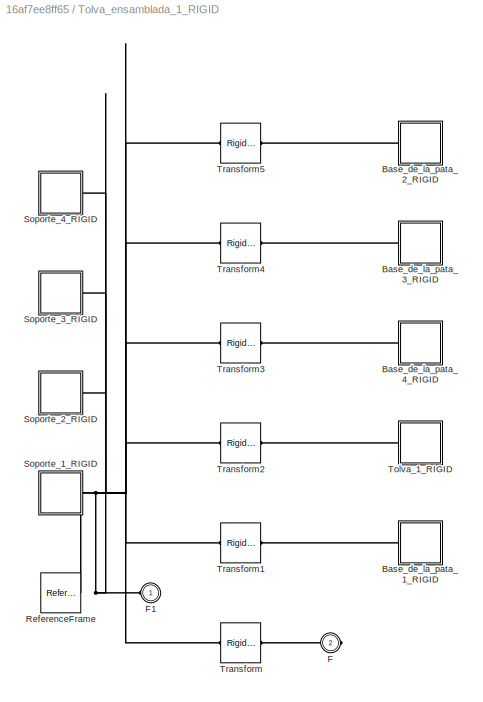
BLOCK [SubSystem] Tolva_ensamblada_1_RIGID
  Ports = [0, 0, 0, 0, 0, 1, 1]
  RequestExecContextInheritance = off
BLOCK [SubSystem] Tolva_ensamblada_1_RIGID/Base_de_la_pata_1_RIGID
  Ports = [0, 0, 0, 0, 0, 1]
  RequestExecContextInheritance = off
BLOCK [PMIOPort] Tolva_ensamblada_1_RIGID/Base_de_la_pata_1_RIGID/F
  Side = Left
BLOCK [Reference] Tolva_ensamblada_1_RIGID/Base_de_la_pata_1_RIGID/ReferenceFrame  REF=sm_lib/Frames and
Transforms/Reference
Frame
  Ports = [0, 0, 0, 0, 0, 0, 1]
  SourceBlock = sm_lib/Frames and\nTransforms/Reference\nFrame
  SourceProductBaseCode = MS
  SourceType = Reference\nFrame
BLOCK [Reference] Tolva_ensamblada_1_RIGID/Base_de_la_pata_1_RIGID/Solid  REF=sm_lib/Body Elements/File Solid
  Ports = [0, 0, 0, 0, 0, 0, 1]
  SourceBlock = sm_lib/Body Elements/File Solid
  SourceProductBaseCode = MS
  SourceType = File Solid
BLOCK [SubSystem] Tolva_ensamblada_1_RIGID/Base_de_la_pata_2_RIGID
  Ports = [0, 0, 0, 0, 0, 1]
  RequestExecContextInheritance = off
BLOCK [PMIOPort] Tolva_ensamblada_1_RIGID/Base_de_la_pata_2_RIGID/F
  Side = Left
BLOCK [Reference] Tolva_ensamblada_1_RIGID/Base_de_la_pata_2_RIGID/ReferenceFrame  REF=sm_lib/Frames and
Transforms/Reference
Frame
  Ports = [0, 0, 0, 0, 0, 0, 1]
  SourceBlock = sm_lib/Frames and\nTransforms/Reference\nFrame
  SourceProductBaseCode = MS
  SourceType = Reference\nFrame
BLOCK [Reference] Tolva_ensamblada_1_RIGID/Base_de_la_pata_2_RIGID/Solid  REF=sm_lib/Body Elements/File Solid
  Ports = [0, 0, 0, 0, 0, 0, 1]
  SourceBlock = sm_lib/Body Elements/File Solid
  SourceProductBaseCode = MS
  SourceType = File Solid
BLOCK [SubSystem] Tolva_ensamblada_1_RIGID/Base_de_la_pata_3_RIGID
  Ports = [0, 0, 0, 0, 0, 1]
  RequestExecContextInheritance = off
BLOCK [PMIOPort] Tolva_ensamblada_1_RIGID/Base_de_la_pata_3_RIGID/F
  Side = Left
BLOCK [Reference] Tolva_ensamblada_1_RIGID/Base_de_la_pata_3_RIGID/ReferenceFrame  REF=sm_lib/Frames and
Transforms/Reference
Frame
  Ports = [0, 0, 0, 0, 0, 0, 1]
  SourceBlock = sm_lib/Frames and\nTransforms/Reference\nFrame
  SourceProductBaseCode = MS
  SourceType = Reference\nFrame
BLOCK [Reference] Tolva_ensamblada_1_RIGID/Base_de_la_pata_3_RIGID/Solid  REF=sm_lib/Body Elements/File Solid
  Ports = [0, 0, 0, 0, 0, 0, 1]
  SourceBlock = sm_lib/Body Elements/File Solid
  SourceProductBaseCode = MS
  SourceType = File Solid
BLOCK [SubSystem] Tolva_ensamblada_1_RIGID/Base_de_la_pata_4_RIGID
  Ports = [0, 0, 0, 0, 0, 1]
  RequestExecContextInheritance = off
BLOCK [PMIOPort] Tolva_ensamblada_1_RIGID/Base_de_la_pata_4_RIGID/F
  Side = Left
BLOCK [Reference] Tolva_ensamblada_1_RIGID/Base_de_la_pata_4_RIGID/ReferenceFrame  REF=sm_lib/Frames and
Transforms/Reference
Frame
  Ports = [0, 0, 0, 0, 0, 0, 1]
  SourceBlock = sm_lib/Frames and\nTransforms/Reference\nFrame
  SourceProductBaseCode = MS
  SourceType = Reference\nFrame
BLOCK [Reference] Tolva_ensamblada_1_RIGID/Base_de_la_pata_4_RIGID/Solid  REF=sm_lib/Body Elements/File Solid
  Ports = [0, 0, 0, 0, 0, 0, 1]
  SourceBlock = sm_lib/Body Elements/File Solid
  SourceProductBaseCode = MS
  SourceType = File Solid
BLOCK [PMIOPort] Tolva_ensamblada_1_RIGID/F
  Port = 2
  Side = Right
BLOCK [PMIOPort] Tolva_ensamblada_1_RIGID/F1
  Side = Left
BLOCK [Reference] Tolva_ensamblada_1_RIGID/ReferenceFrame  REF=sm_lib/Frames and
Transforms/Reference
Frame
  Ports = [0, 0, 0, 0, 0, 0, 1]
  SourceBlock = sm_lib/Frames and\nTransforms/Reference\nFrame
  SourceProductBaseCode = MS
  SourceType = Reference\nFrame
BLOCK [SubSystem] Tolva_ensamblada_1_RIGID/Soporte_1_RIGID
  Ports = [0, 0, 0, 0, 0, 0, 1]
  RequestExecContextInheritance = off
BLOCK [PMIOPort] Tolva_ensamblada_1_RIGID/Soporte_1_RIGID/F
  Side = Right
BLOCK [SubSystem] Tolva_ensamblada_1_RIGID/Soporte_1_RIGID/Goma_de_sopote_1_RIGID
  Ports = [0, 0, 0, 0, 0, 1]
  RequestExecContextInheritance = off
BLOCK [PMIOPort] Tolva_ensamblada_1_RIGID/Soporte_1_RIGID/Goma_de_sopote_1_RIGID/F
  Side = Left
BLOCK [Reference] Tolva_ensamblada_1_RIGID/Soporte_1_RIGID/Goma_de_sopote_1_RIGID/ReferenceFrame  REF=sm_lib/Frames and
Transforms/Reference
Frame
  Ports = [0, 0, 0, 0, 0, 0, 1]
  SourceBlock = sm_lib/Frames and\nTransforms/Reference\nFrame
  SourceProductBaseCode = MS
  SourceType = Reference\nFrame
BLOCK [Reference] Tolva_ensamblada_1_RIGID/Soporte_1_RIGID/Goma_de_sopote_1_RIGID/Solid  REF=sm_lib/Body Elements/File Solid
  Ports = [0, 0, 0, 0, 0, 0, 1]
  SourceBlock = sm_lib/Body Elements/File Solid
  SourceProductBaseCode = MS
  SourceType = File Solid
BLOCK [Reference] Tolva_ensamblada_1_RIGID/Soporte_1_RIGID/ReferenceFrame  REF=sm_lib/Frames and
Transforms/Reference
Frame
  Ports = [0, 0, 0, 0, 0, 0, 1]
  SourceBlock = sm_lib/Frames and\nTransforms/Reference\nFrame
  SourceProductBaseCode = MS
  SourceType = Reference\nFrame
BLOCK [SubSystem] Tolva_ensamblada_1_RIGID/Soporte_1_RIGID/Tornillo_roscado_de_sopote_1_RIGID
  Ports = [0, 0, 0, 0, 0, 1]
  RequestExecContextInheritance = off
BLOCK [PMIOPort] Tolva_ensamblada_1_RIGID/Soporte_1_RIGID/Tornillo_roscado_de_sopote_1_RIGID/F
  Side = Left
BLOCK [Reference] Tolva_ensamblada_1_RIGID/Soporte_1_RIGID/Tornillo_roscado_de_sopote_1_RIGID/ReferenceFrame  REF=sm_lib/Frames and
Transforms/Reference
Frame
  Ports = [0, 0, 0, 0, 0, 0, 1]
  SourceBlock = sm_lib/Frames and\nTransforms/Reference\nFrame
  SourceProductBaseCode = MS
  SourceType = Reference\nFrame
BLOCK [Reference] Tolva_ensamblada_1_RIGID/Soporte_1_RIGID/Tornillo_roscado_de_sopote_1_RIGID/Solid  REF=sm_lib/Body Elements/File Solid
  Ports = [0, 0, 0, 0, 0, 0, 1]
  SourceBlock = sm_lib/Body Elements/File Solid
  SourceProductBaseCode = MS
  SourceType = File Solid
BLOCK [Reference] Tolva_ensamblada_1_RIGID/Soporte_1_RIGID/Transform  REF=sm_lib/Frames and
Transforms/Rigid
Transform
  Ports = [0, 0, 0, 0, 0, 1, 1]
  SourceBlock = sm_lib/Frames and\nTransforms/Rigid\nTransform
  SourceProductBaseCode = MS
  SourceType = Rigid\nTransform
BLOCK [Reference] Tolva_ensamblada_1_RIGID/Soporte_1_RIGID/Transform1  REF=sm_lib/Frames and
Transforms/Rigid
Transform
  Ports = [0, 0, 0, 0, 0, 1, 1]
  SourceBlock = sm_lib/Frames and\nTransforms/Rigid\nTransform
  SourceProductBaseCode = MS
  SourceType = Rigid\nTransform
BLOCK [Reference] Tolva_ensamblada_1_RIGID/Soporte_1_RIGID/Transform2  REF=sm_lib/Frames and
Transforms/Rigid
Transform
  Ports = [0, 0, 0, 0, 0, 1, 1]
  SourceBlock = sm_lib/Frames and\nTransforms/Rigid\nTransform
  SourceProductBaseCode = MS
  SourceType = Rigid\nTransform
BLOCK [Reference] Tolva_ensamblada_1_RIGID/Soporte_1_RIGID/Transform3  REF=sm_lib/Frames and
Transforms/Rigid
Transform
  Ports = [0, 0, 0, 0, 0, 1, 1]
  SourceBlock = sm_lib/Frames and\nTransforms/Rigid\nTransform
  SourceProductBaseCode = MS
  SourceType = Rigid\nTransform
BLOCK [Reference] Tolva_ensamblada_1_RIGID/Soporte_1_RIGID/Transform4  REF=sm_lib/Frames and
Transforms/Rigid
Transform
  Ports = [0, 0, 0, 0, 0, 1, 1]
  SourceBlock = sm_lib/Frames and\nTransforms/Rigid\nTransform
  SourceProductBaseCode = MS
  SourceType = Rigid\nTransform
BLOCK [SubSystem] Tolva_ensamblada_1_RIGID/Soporte_1_RIGID/hex_nut_heavy_am_1_RIGID
  Ports = [0, 0, 0, 0, 0, 1]
  RequestExecContextInheritance = off
BLOCK [PMIOPort] Tolva_ensamblada_1_RIGID/Soporte_1_RIGID/hex_nut_heavy_am_1_RIGID/F
  Side = Left
BLOCK [Reference] Tolva_ensamblada_1_RIGID/Soporte_1_RIGID/hex_nut_heavy_am_1_RIGID/ReferenceFrame  REF=sm_lib/Frames and
Transforms/Reference
Frame
  Ports = [0, 0, 0, 0, 0, 0, 1]
  SourceBlock = sm_lib/Frames and\nTransforms/Reference\nFrame
  SourceProductBaseCode = MS
  SourceType = Reference\nFrame
BLOCK [Reference] Tolva_ensamblada_1_RIGID/Soporte_1_RIGID/hex_nut_heavy_am_1_RIGID/Solid  REF=sm_lib/Body Elements/File Solid
  Ports = [0, 0, 0, 0, 0, 0, 1]
  SourceBlock = sm_lib/Body Elements/File Solid
  SourceProductBaseCode = MS
  SourceType = File Solid
BLOCK [SubSystem] Tolva_ensamblada_1_RIGID/Soporte_1_RIGID/hex_nut_heavy_am_2_RIGID
  Ports = [0, 0, 0, 0, 0, 1]
  RequestExecContextInheritance = off
BLOCK [PMIOPort] Tolva_ensamblada_1_RIGID/Soporte_1_RIGID/hex_nut_heavy_am_2_RIGID/F
  Side = Left
BLOCK [Reference] Tolva_ensamblada_1_RIGID/Soporte_1_RIGID/hex_nut_heavy_am_2_RIGID/ReferenceFrame  REF=sm_lib/Frames and
Transforms/Reference
Frame
  Ports = [0, 0, 0, 0, 0, 0, 1]
  SourceBlock = sm_lib/Frames and\nTransforms/Reference\nFrame
  SourceProductBaseCode = MS
  SourceType = Reference\nFrame
BLOCK [Reference] Tolva_ensamblada_1_RIGID/Soporte_1_RIGID/hex_nut_heavy_am_2_RIGID/Solid  REF=sm_lib/Body Elements/File Solid
  Ports = [0, 0, 0, 0, 0, 0, 1]
  SourceBlock = sm_lib/Body Elements/File Solid
  SourceProductBaseCode = MS
  SourceType = File Solid
BLOCK [SubSystem] Tolva_ensamblada_1_RIGID/Soporte_2_RIGID
  Ports = [0, 0, 0, 0, 0, 0, 1]
  RequestExecContextInheritance = off
BLOCK [PMIOPort] Tolva_ensamblada_1_RIGID/Soporte_2_RIGID/F
  Side = Right
BLOCK [SubSystem] Tolva_ensamblada_1_RIGID/Soporte_2_RIGID/Goma_de_sopote_1_RIGID
  Ports = [0, 0, 0, 0, 0, 1]
  RequestExecContextInheritance = off
BLOCK [PMIOPort] Tolva_ensamblada_1_RIGID/Soporte_2_RIGID/Goma_de_sopote_1_RIGID/F
  Side = Left
BLOCK [Reference] Tolva_ensamblada_1_RIGID/Soporte_2_RIGID/Goma_de_sopote_1_RIGID/ReferenceFrame  REF=sm_lib/Frames and
Transforms/Reference
Frame
  Ports = [0, 0, 0, 0, 0, 0, 1]
  SourceBlock = sm_lib/Frames and\nTransforms/Reference\nFrame
  SourceProductBaseCode = MS
  SourceType = Reference\nFrame
BLOCK [Reference] Tolva_ensamblada_1_RIGID/Soporte_2_RIGID/Goma_de_sopote_1_RIGID/Solid  REF=sm_lib/Body Elements/File Solid
  Ports = [0, 0, 0, 0, 0, 0, 1]
  SourceBlock = sm_lib/Body Elements/File Solid
  SourceProductBaseCode = MS
  SourceType = File Solid
BLOCK [Reference] Tolva_ensamblada_1_RIGID/Soporte_2_RIGID/ReferenceFrame  REF=sm_lib/Frames and
Transforms/Reference
Frame
  Ports = [0, 0, 0, 0, 0, 0, 1]
  SourceBlock = sm_lib/Frames and\nTransforms/Reference\nFrame
  SourceProductBaseCode = MS
  SourceType = Reference\nFrame
BLOCK [SubSystem] Tolva_ensamblada_1_RIGID/Soporte_2_RIGID/Tornillo_roscado_de_sopote_1_RIGID
  Ports = [0, 0, 0, 0, 0, 1]
  RequestExecContextInheritance = off
BLOCK [PMIOPort] Tolva_ensamblada_1_RIGID/Soporte_2_RIGID/Tornillo_roscado_de_sopote_1_RIGID/F
  Side = Left
BLOCK [Reference] Tolva_ensamblada_1_RIGID/Soporte_2_RIGID/Tornillo_roscado_de_sopote_1_RIGID/ReferenceFrame  REF=sm_lib/Frames and
Transforms/Reference
Frame
  Ports = [0, 0, 0, 0, 0, 0, 1]
  SourceBlock = sm_lib/Frames and\nTransforms/Reference\nFrame
  SourceProductBaseCode = MS
  SourceType = Reference\nFrame
BLOCK [Reference] Tolva_ensamblada_1_RIGID/Soporte_2_RIGID/Tornillo_roscado_de_sopote_1_RIGID/Solid  REF=sm_lib/Body Elements/File Solid
  Ports = [0, 0, 0, 0, 0, 0, 1]
  SourceBlock = sm_lib/Body Elements/File Solid
  SourceProductBaseCode = MS
  SourceType = File Solid
BLOCK [Reference] Tolva_ensamblada_1_RIGID/Soporte_2_RIGID/Transform  REF=sm_lib/Frames and
Transforms/Rigid
Transform
  Ports = [0, 0, 0, 0, 0, 1, 1]
  SourceBlock = sm_lib/Frames and\nTransforms/Rigid\nTransform
  SourceProductBaseCode = MS
  SourceType = Rigid\nTransform
BLOCK [Reference] Tolva_ensamblada_1_RIGID/Soporte_2_RIGID/Transform1  REF=sm_lib/Frames and
Transforms/Rigid
Transform
  Ports = [0, 0, 0, 0, 0, 1, 1]
  SourceBlock = sm_lib/Frames and\nTransforms/Rigid\nTransform
  SourceProductBaseCode = MS
  SourceType = Rigid\nTransform
BLOCK [Reference] Tolva_ensamblada_1_RIGID/Soporte_2_RIGID/Transform2  REF=sm_lib/Frames and
Transforms/Rigid
Transform
  Ports = [0, 0, 0, 0, 0, 1, 1]
  SourceBlock = sm_lib/Frames and\nTransforms/Rigid\nTransform
  SourceProductBaseCode = MS
  SourceType = Rigid\nTransform
BLOCK [Reference] Tolva_ensamblada_1_RIGID/Soporte_2_RIGID/Transform3  REF=sm_lib/Frames and
Transforms/Rigid
Transform
  Ports = [0, 0, 0, 0, 0, 1, 1]
  SourceBlock = sm_lib/Frames and\nTransforms/Rigid\nTransform
  SourceProductBaseCode = MS
  SourceType = Rigid\nTransform
BLOCK [Reference] Tolva_ensamblada_1_RIGID/Soporte_2_RIGID/Transform4  REF=sm_lib/Frames and
Transforms/Rigid
Transform
  Ports = [0, 0, 0, 0, 0, 1, 1]
  SourceBlock = sm_lib/Frames and\nTransforms/Rigid\nTransform
  SourceProductBaseCode = MS
  SourceType = Rigid\nTransform
BLOCK [SubSystem] Tolva_ensamblada_1_RIGID/Soporte_2_RIGID/hex_nut_heavy_am_1_RIGID
  Ports = [0, 0, 0, 0, 0, 1]
  RequestExecContextInheritance = off
BLOCK [PMIOPort] Tolva_ensamblada_1_RIGID/Soporte_2_RIGID/hex_nut_heavy_am_1_RIGID/F
  Side = Left
BLOCK [Reference] Tolva_ensamblada_1_RIGID/Soporte_2_RIGID/hex_nut_heavy_am_1_RIGID/ReferenceFrame  REF=sm_lib/Frames and
Transforms/Reference
Frame
  Ports = [0, 0, 0, 0, 0, 0, 1]
  SourceBlock = sm_lib/Frames and\nTransforms/Reference\nFrame
  SourceProductBaseCode = MS
  SourceType = Reference\nFrame
BLOCK [Reference] Tolva_ensamblada_1_RIGID/Soporte_2_RIGID/hex_nut_heavy_am_1_RIGID/Solid  REF=sm_lib/Body Elements/File Solid
  Ports = [0, 0, 0, 0, 0, 0, 1]
  SourceBlock = sm_lib/Body Elements/File Solid
  SourceProductBaseCode = MS
  SourceType = File Solid
BLOCK [SubSystem] Tolva_ensamblada_1_RIGID/Soporte_2_RIGID/hex_nut_heavy_am_2_RIGID
  Ports = [0, 0, 0, 0, 0, 1]
  RequestExecContextInheritance = off
BLOCK [PMIOPort] Tolva_ensamblada_1_RIGID/Soporte_2_RIGID/hex_nut_heavy_am_2_RIGID/F
  Side = Left
BLOCK [Reference] Tolva_ensamblada_1_RIGID/Soporte_2_RIGID/hex_nut_heavy_am_2_RIGID/ReferenceFrame  REF=sm_lib/Frames and
Transforms/Reference
Frame
  Ports = [0, 0, 0, 0, 0, 0, 1]
  SourceBlock = sm_lib/Frames and\nTransforms/Reference\nFrame
  SourceProductBaseCode = MS
  SourceType = Reference\nFrame
BLOCK [Reference] Tolva_ensamblada_1_RIGID/Soporte_2_RIGID/hex_nut_heavy_am_2_RIGID/Solid  REF=sm_lib/Body Elements/File Solid
  Ports = [0, 0, 0, 0, 0, 0, 1]
  SourceBlock = sm_lib/Body Elements/File Solid
  SourceProductBaseCode = MS
  SourceType = File Solid
BLOCK [SubSystem] Tolva_ensamblada_1_RIGID/Soporte_3_RIGID
  Ports = [0, 0, 0, 0, 0, 0, 1]
  RequestExecContextInheritance = off
BLOCK [PMIOPort] Tolva_ensamblada_1_RIGID/Soporte_3_RIGID/F
  Side = Right
BLOCK [SubSystem] Tolva_ensamblada_1_RIGID/Soporte_3_RIGID/Goma_de_sopote_1_RIGID
  Ports = [0, 0, 0, 0, 0, 1]
  RequestExecContextInheritance = off
BLOCK [PMIOPort] Tolva_ensamblada_1_RIGID/Soporte_3_RIGID/Goma_de_sopote_1_RIGID/F
  Side = Left
BLOCK [Reference] Tolva_ensamblada_1_RIGID/Soporte_3_RIGID/Goma_de_sopote_1_RIGID/ReferenceFrame  REF=sm_lib/Frames and
Transforms/Reference
Frame
  Ports = [0, 0, 0, 0, 0, 0, 1]
  SourceBlock = sm_lib/Frames and\nTransforms/Reference\nFrame
  SourceProductBaseCode = MS
  SourceType = Reference\nFrame
BLOCK [Reference] Tolva_ensamblada_1_RIGID/Soporte_3_RIGID/Goma_de_sopote_1_RIGID/Solid  REF=sm_lib/Body Elements/File Solid
  Ports = [0, 0, 0, 0, 0, 0, 1]
  SourceBlock = sm_lib/Body Elements/File Solid
  SourceProductBaseCode = MS
  SourceType = File Solid
BLOCK [Reference] Tolva_ensamblada_1_RIGID/Soporte_3_RIGID/ReferenceFrame  REF=sm_lib/Frames and
Transforms/Reference
Frame
  Ports = [0, 0, 0, 0, 0, 0, 1]
  SourceBlock = sm_lib/Frames and\nTransforms/Reference\nFrame
  SourceProductBaseCode = MS
  SourceType = Reference\nFrame
BLOCK [SubSystem] Tolva_ensamblada_1_RIGID/Soporte_3_RIGID/Tornillo_roscado_de_sopote_1_RIGID
  Ports = [0, 0, 0, 0, 0, 1]
  RequestExecContextInheritance = off
BLOCK [PMIOPort] Tolva_ensamblada_1_RIGID/Soporte_3_RIGID/Tornillo_roscado_de_sopote_1_RIGID/F
  Side = Left
BLOCK [Reference] Tolva_ensamblada_1_RIGID/Soporte_3_RIGID/Tornillo_roscado_de_sopote_1_RIGID/ReferenceFrame  REF=sm_lib/Frames and
Transforms/Reference
Frame
  Ports = [0, 0, 0, 0, 0, 0, 1]
  SourceBlock = sm_lib/Frames and\nTransforms/Reference\nFrame
  SourceProductBaseCode = MS
  SourceType = Reference\nFrame
BLOCK [Reference] Tolva_ensamblada_1_RIGID/Soporte_3_RIGID/Tornillo_roscado_de_sopote_1_RIGID/Solid  REF=sm_lib/Body Elements/File Solid
  Ports = [0, 0, 0, 0, 0, 0, 1]
  SourceBlock = sm_lib/Body Elements/File Solid
  SourceProductBaseCode = MS
  SourceType = File Solid
BLOCK [Reference] Tolva_ensamblada_1_RIGID/Soporte_3_RIGID/Transform  REF=sm_lib/Frames and
Transforms/Rigid
Transform
  Ports = [0, 0, 0, 0, 0, 1, 1]
  SourceBlock = sm_lib/Frames and\nTransforms/Rigid\nTransform
  SourceProductBaseCode = MS
  SourceType = Rigid\nTransform
BLOCK [Reference] Tolva_ensamblada_1_RIGID/Soporte_3_RIGID/Transform1  REF=sm_lib/Frames and
Transforms/Rigid
Transform
  Ports = [0, 0, 0, 0, 0, 1, 1]
  SourceBlock = sm_lib/Frames and\nTransforms/Rigid\nTransform
  SourceProductBaseCode = MS
  SourceType = Rigid\nTransform
BLOCK [Reference] Tolva_ensamblada_1_RIGID/Soporte_3_RIGID/Transform2  REF=sm_lib/Frames and
Transforms/Rigid
Transform
  Ports = [0, 0, 0, 0, 0, 1, 1]
  SourceBlock = sm_lib/Frames and\nTransforms/Rigid\nTransform
  SourceProductBaseCode = MS
  SourceType = Rigid\nTransform
BLOCK [Reference] Tolva_ensamblada_1_RIGID/Soporte_3_RIGID/Transform3  REF=sm_lib/Frames and
Transforms/Rigid
Transform
  Ports = [0, 0, 0, 0, 0, 1, 1]
  SourceBlock = sm_lib/Frames and\nTransforms/Rigid\nTransform
  SourceProductBaseCode = MS
  SourceType = Rigid\nTransform
BLOCK [Reference] Tolva_ensamblada_1_RIGID/Soporte_3_RIGID/Transform4  REF=sm_lib/Frames and
Transforms/Rigid
Transform
  Ports = [0, 0, 0, 0, 0, 1, 1]
  SourceBlock = sm_lib/Frames and\nTransforms/Rigid\nTransform
  SourceProductBaseCode = MS
  SourceType = Rigid\nTransform
BLOCK [SubSystem] Tolva_ensamblada_1_RIGID/Soporte_3_RIGID/hex_nut_heavy_am_1_RIGID
  Ports = [0, 0, 0, 0, 0, 1]
  RequestExecContextInheritance = off
BLOCK [PMIOPort] Tolva_ensamblada_1_RIGID/Soporte_3_RIGID/hex_nut_heavy_am_1_RIGID/F
  Side = Left
BLOCK [Reference] Tolva_ensamblada_1_RIGID/Soporte_3_RIGID/hex_nut_heavy_am_1_RIGID/ReferenceFrame  REF=sm_lib/Frames and
Transforms/Reference
Frame
  Ports = [0, 0, 0, 0, 0, 0, 1]
  SourceBlock = sm_lib/Frames and\nTransforms/Reference\nFrame
  SourceProductBaseCode = MS
  SourceType = Reference\nFrame
BLOCK [Reference] Tolva_ensamblada_1_RIGID/Soporte_3_RIGID/hex_nut_heavy_am_1_RIGID/Solid  REF=sm_lib/Body Elements/File Solid
  Ports = [0, 0, 0, 0, 0, 0, 1]
  SourceBlock = sm_lib/Body Elements/File Solid
  SourceProductBaseCode = MS
  SourceType = File Solid
BLOCK [SubSystem] Tolva_ensamblada_1_RIGID/Soporte_3_RIGID/hex_nut_heavy_am_2_RIGID
  Ports = [0, 0, 0, 0, 0, 1]
  RequestExecContextInheritance = off
BLOCK [PMIOPort] Tolva_ensamblada_1_RIGID/Soporte_3_RIGID/hex_nut_heavy_am_2_RIGID/F
  Side = Left
BLOCK [Reference] Tolva_ensamblada_1_RIGID/Soporte_3_RIGID/hex_nut_heavy_am_2_RIGID/ReferenceFrame  REF=sm_lib/Frames and
Transforms/Reference
Frame
  Ports = [0, 0, 0, 0, 0, 0, 1]
  SourceBlock = sm_lib/Frames and\nTransforms/Reference\nFrame
  SourceProductBaseCode = MS
  SourceType = Reference\nFrame
BLOCK [Reference] Tolva_ensamblada_1_RIGID/Soporte_3_RIGID/hex_nut_heavy_am_2_RIGID/Solid  REF=sm_lib/Body Elements/File Solid
  Ports = [0, 0, 0, 0, 0, 0, 1]
  SourceBlock = sm_lib/Body Elements/File Solid
  SourceProductBaseCode = MS
  SourceType = File Solid
BLOCK [SubSystem] Tolva_ensamblada_1_RIGID/Soporte_4_RIGID
  Ports = [0, 0, 0, 0, 0, 0, 1]
  RequestExecContextInheritance = off
BLOCK [PMIOPort] Tolva_ensamblada_1_RIGID/Soporte_4_RIGID/F
  Side = Right
BLOCK [SubSystem] Tolva_ensamblada_1_RIGID/Soporte_4_RIGID/Goma_de_sopote_1_RIGID
  Ports = [0, 0, 0, 0, 0, 1]
  RequestExecContextInheritance = off
BLOCK [PMIOPort] Tolva_ensamblada_1_RIGID/Soporte_4_RIGID/Goma_de_sopote_1_RIGID/F
  Side = Left
BLOCK [Reference] Tolva_ensamblada_1_RIGID/Soporte_4_RIGID/Goma_de_sopote_1_RIGID/ReferenceFrame  REF=sm_lib/Frames and
Transforms/Reference
Frame
  Ports = [0, 0, 0, 0, 0, 0, 1]
  SourceBlock = sm_lib/Frames and\nTransforms/Reference\nFrame
  SourceProductBaseCode = MS
  SourceType = Reference\nFrame
BLOCK [Reference] Tolva_ensamblada_1_RIGID/Soporte_4_RIGID/Goma_de_sopote_1_RIGID/Solid  REF=sm_lib/Body Elements/File Solid
  Ports = [0, 0, 0, 0, 0, 0, 1]
  SourceBlock = sm_lib/Body Elements/File Solid
  SourceProductBaseCode = MS
  SourceType = File Solid
BLOCK [Reference] Tolva_ensamblada_1_RIGID/Soporte_4_RIGID/ReferenceFrame  REF=sm_lib/Frames and
Transforms/Reference
Frame
  Ports = [0, 0, 0, 0, 0, 0, 1]
  SourceBlock = sm_lib/Frames and\nTransforms/Reference\nFrame
  SourceProductBaseCode = MS
  SourceType = Reference\nFrame
BLOCK [SubSystem] Tolva_ensamblada_1_RIGID/Soporte_4_RIGID/Tornillo_roscado_de_sopote_1_RIGID
  Ports = [0, 0, 0, 0, 0, 1]
  RequestExecContextInheritance = off
BLOCK [PMIOPort] Tolva_ensamblada_1_RIGID/Soporte_4_RIGID/Tornillo_roscado_de_sopote_1_RIGID/F
  Side = Left
BLOCK [Reference] Tolva_ensamblada_1_RIGID/Soporte_4_RIGID/Tornillo_roscado_de_sopote_1_RIGID/ReferenceFrame  REF=sm_lib/Frames and
Transforms/Reference
Frame
  Ports = [0, 0, 0, 0, 0, 0, 1]
  SourceBlock = sm_lib/Frames and\nTransforms/Reference\nFrame
  SourceProductBaseCode = MS
  SourceType = Reference\nFrame
BLOCK [Reference] Tolva_ensamblada_1_RIGID/Soporte_4_RIGID/Tornillo_roscado_de_sopote_1_RIGID/Solid  REF=sm_lib/Body Elements/File Solid
  Ports = [0, 0, 0, 0, 0, 0, 1]
  SourceBlock = sm_lib/Body Elements/File Solid
  SourceProductBaseCode = MS
  SourceType = File Solid
BLOCK [Reference] Tolva_ensamblada_1_RIGID/Soporte_4_RIGID/Transform  REF=sm_lib/Frames and
Transforms/Rigid
Transform
  Ports = [0, 0, 0, 0, 0, 1, 1]
  SourceBlock = sm_lib/Frames and\nTransforms/Rigid\nTransform
  SourceProductBaseCode = MS
  SourceType = Rigid\nTransform
BLOCK [Reference] Tolva_ensamblada_1_RIGID/Soporte_4_RIGID/Transform1  REF=sm_lib/Frames and
Transforms/Rigid
Transform
  Ports = [0, 0, 0, 0, 0, 1, 1]
  SourceBlock = sm_lib/Frames and\nTransforms/Rigid\nTransform
  SourceProductBaseCode = MS
  SourceType = Rigid\nTransform
BLOCK [Reference] Tolva_ensamblada_1_RIGID/Soporte_4_RIGID/Transform2  REF=sm_lib/Frames and
Transforms/Rigid
Transform
  Ports = [0, 0, 0, 0, 0, 1, 1]
  SourceBlock = sm_lib/Frames and\nTransforms/Rigid\nTransform
  SourceProductBaseCode = MS
  SourceType = Rigid\nTransform
BLOCK [Reference] Tolva_ensamblada_1_RIGID/Soporte_4_RIGID/Transform3  REF=sm_lib/Frames and
Transforms/Rigid
Transform
  Ports = [0, 0, 0, 0, 0, 1, 1]
  SourceBlock = sm_lib/Frames and\nTransforms/Rigid\nTransform
  SourceProductBaseCode = MS
  SourceType = Rigid\nTransform
BLOCK [Reference] Tolva_ensamblada_1_RIGID/Soporte_4_RIGID/Transform4  REF=sm_lib/Frames and
Transforms/Rigid
Transform
  Ports = [0, 0, 0, 0, 0, 1, 1]
  SourceBlock = sm_lib/Frames and\nTransforms/Rigid\nTransform
  SourceProductBaseCode = MS
  SourceType = Rigid\nTransform
BLOCK [SubSystem] Tolva_ensamblada_1_RIGID/Soporte_4_RIGID/hex_nut_heavy_am_1_RIGID
  Ports = [0, 0, 0, 0, 0, 1]
  RequestExecContextInheritance = off
BLOCK [PMIOPort] Tolva_ensamblada_1_RIGID/Soporte_4_RIGID/hex_nut_heavy_am_1_RIGID/F
  Side = Left
BLOCK [Reference] Tolva_ensamblada_1_RIGID/Soporte_4_RIGID/hex_nut_heavy_am_1_RIGID/ReferenceFrame  REF=sm_lib/Frames and
Transforms/Reference
Frame
  Ports = [0, 0, 0, 0, 0, 0, 1]
  SourceBlock = sm_lib/Frames and\nTransforms/Reference\nFrame
  SourceProductBaseCode = MS
  SourceType = Reference\nFrame
BLOCK [Reference] Tolva_ensamblada_1_RIGID/Soporte_4_RIGID/hex_nut_heavy_am_1_RIGID/Solid  REF=sm_lib/Body Elements/File Solid
  Ports = [0, 0, 0, 0, 0, 0, 1]
  SourceBlock = sm_lib/Body Elements/File Solid
  SourceProductBaseCode = MS
  SourceType = File Solid
BLOCK [SubSystem] Tolva_ensamblada_1_RIGID/Soporte_4_RIGID/hex_nut_heavy_am_2_RIGID
  Ports = [0, 0, 0, 0, 0, 1]
  RequestExecContextInheritance = off
BLOCK [PMIOPort] Tolva_ensamblada_1_RIGID/Soporte_4_RIGID/hex_nut_heavy_am_2_RIGID/F
  Side = Left
BLOCK [Reference] Tolva_ensamblada_1_RIGID/Soporte_4_RIGID/hex_nut_heavy_am_2_RIGID/ReferenceFrame  REF=sm_lib/Frames and
Transforms/Reference
Frame
  Ports = [0, 0, 0, 0, 0, 0, 1]
  SourceBlock = sm_lib/Frames and\nTransforms/Reference\nFrame
  SourceProductBaseCode = MS
  SourceType = Reference\nFrame
BLOCK [Reference] Tolva_ensamblada_1_RIGID/Soporte_4_RIGID/hex_nut_heavy_am_2_RIGID/Solid  REF=sm_lib/Body Elements/File Solid
  Ports = [0, 0, 0, 0, 0, 0, 1]
  SourceBlock = sm_lib/Body Elements/File Solid
  SourceProductBaseCode = MS
  SourceType = File Solid
BLOCK [SubSystem] Tolva_ensamblada_1_RIGID/Tolva_1_RIGID
  Ports = [0, 0, 0, 0, 0, 1]
  RequestExecContextInheritance = off
BLOCK [PMIOPort] Tolva_ensamblada_1_RIGID/Tolva_1_RIGID/F
  Side = Left
BLOCK [Reference] Tolva_ensamblada_1_RIGID/Tolva_1_RIGID/ReferenceFrame  REF=sm_lib/Frames and
Transforms/Reference
Frame
  Ports = [0, 0, 0, 0, 0, 0, 1]
  SourceBlock = sm_lib/Frames and\nTransforms/Reference\nFrame
  SourceProductBaseCode = MS
  SourceType = Reference\nFrame
BLOCK [Reference] Tolva_ensamblada_1_RIGID/Tolva_1_RIGID/Solid  REF=sm_lib/Body Elements/File Solid
  Ports = [0, 0, 0, 0, 0, 0, 1]
  SourceBlock = sm_lib/Body Elements/File Solid
  SourceProductBaseCode = MS
  SourceType = File Solid
BLOCK [Reference] Tolva_ensamblada_1_RIGID/Transform  REF=sm_lib/Frames and
Transforms/Rigid
Transform
  Ports = [0, 0, 0, 0, 0, 1, 1]
  SourceBlock = sm_lib/Frames and\nTransforms/Rigid\nTransform
  SourceProductBaseCode = MS
  SourceType = Rigid\nTransform
BLOCK [Reference] Tolva_ensamblada_1_RIGID/Transform1  REF=sm_lib/Frames and
Transforms/Rigid
Transform
  Ports = [0, 0, 0, 0, 0, 1, 1]
  SourceBlock = sm_lib/Frames and\nTransforms/Rigid\nTransform
  SourceProductBaseCode = MS
  SourceType = Rigid\nTransform
BLOCK [Reference] Tolva_ensamblada_1_RIGID/Transform2  REF=sm_lib/Frames and
Transforms/Rigid
Transform
  Ports = [0, 0, 0, 0, 0, 1, 1]
  SourceBlock = sm_lib/Frames and\nTransforms/Rigid\nTransform
  SourceProductBaseCode = MS
  SourceType = Rigid\nTransform
BLOCK [Reference] Tolva_ensamblada_1_RIGID/Transform3  REF=sm_lib/Frames and
Transforms/Rigid
Transform
  Ports = [0, 0, 0, 0, 0, 1, 1]
  SourceBlock = sm_lib/Frames and\nTransforms/Rigid\nTransform
  SourceProductBaseCode = MS
  SourceType = Rigid\nTransform
BLOCK [Reference] Tolva_ensamblada_1_RIGID/Transform4  REF=sm_lib/Frames and
Transforms/Rigid
Transform
  Ports = [0, 0, 0, 0, 0, 1, 1]
  SourceBlock = sm_lib/Frames and\nTransforms/Rigid\nTransform
  SourceProductBaseCode = MS
  SourceType = Rigid\nTransform
BLOCK [Reference] Tolva_ensamblada_1_RIGID/Transform5  REF=sm_lib/Frames and
Transforms/Rigid
Transform
  Ports = [0, 0, 0, 0, 0, 1, 1]
  SourceBlock = sm_lib/Frames and\nTransforms/Rigid\nTransform
  SourceProductBaseCode = MS
  SourceType = Rigid\nTransform
BLOCK [SubSystem] Tornillo_Helicoidal_1_RIGID
  Ports = [0, 0, 0, 0, 0, 2, 2]
  RequestExecContextInheritance = off
BLOCK [SubSystem] Tornillo_Helicoidal_1_RIGID/Eje_del_tornillo_helicoidal_2_RIGID
  Ports = [0, 0, 0, 0, 0, 1]
  RequestExecContextInheritance = off
BLOCK [PMIOPort] Tornillo_Helicoidal_1_RIGID/Eje_del_tornillo_helicoidal_2_RIGID/F
  Side = Left
BLOCK [Reference] Tornillo_Helicoidal_1_RIGID/Eje_del_tornillo_helicoidal_2_RIGID/ReferenceFrame  REF=sm_lib/Frames and
Transforms/Reference
Frame
  Ports = [0, 0, 0, 0, 0, 0, 1]
  SourceBlock = sm_lib/Frames and\nTransforms/Reference\nFrame
  SourceProductBaseCode = MS
  SourceType = Reference\nFrame
BLOCK [Reference] Tornillo_Helicoidal_1_RIGID/Eje_del_tornillo_helicoidal_2_RIGID/Solid  REF=sm_lib/Body Elements/File Solid
  Ports = [0, 0, 0, 0, 0, 0, 1]
  SourceBlock = sm_lib/Body Elements/File Solid
  SourceProductBaseCode = MS
  SourceType = File Solid
BLOCK [PMIOPort] Tornillo_Helicoidal_1_RIGID/F
  Port = 2
  Side = Left
BLOCK [PMIOPort] Tornillo_Helicoidal_1_RIGID/F1
  Port = 4
  Side = Right
BLOCK [PMIOPort] Tornillo_Helicoidal_1_RIGID/F2
  Port = 3
  Side = Right
BLOCK [PMIOPort] Tornillo_Helicoidal_1_RIGID/F3
  Side = Left
BLOCK [SubSystem] Tornillo_Helicoidal_1_RIGID/Hlice_1_RIGID
  Ports = [0, 0, 0, 0, 0, 1]
  RequestExecContextInheritance = off
BLOCK [PMIOPort] Tornillo_Helicoidal_1_RIGID/Hlice_1_RIGID/F
  Side = Left
BLOCK [Reference] Tornillo_Helicoidal_1_RIGID/Hlice_1_RIGID/ReferenceFrame  REF=sm_lib/Frames and
Transforms/Reference
Frame
  Ports = [0, 0, 0, 0, 0, 0, 1]
  SourceBlock = sm_lib/Frames and\nTransforms/Reference\nFrame
  SourceProductBaseCode = MS
  SourceType = Reference\nFrame
BLOCK [Reference] Tornillo_Helicoidal_1_RIGID/Hlice_1_RIGID/Solid  REF=sm_lib/Body Elements/File Solid
  Ports = [0, 0, 0, 0, 0, 0, 1]
  SourceBlock = sm_lib/Body Elements/File Solid
  SourceProductBaseCode = MS
  SourceType = File Solid
BLOCK [Reference] Tornillo_Helicoidal_1_RIGID/ReferenceFrame  REF=sm_lib/Frames and
Transforms/Reference
Frame
  Ports = [0, 0, 0, 0, 0, 0, 1]
  SourceBlock = sm_lib/Frames and\nTransforms/Reference\nFrame
  SourceProductBaseCode = MS
  SourceType = Reference\nFrame
BLOCK [Reference] Tornillo_Helicoidal_1_RIGID/Transform  REF=sm_lib/Frames and
Transforms/Rigid
Transform
  Ports = [0, 0, 0, 0, 0, 1, 1]
  SourceBlock = sm_lib/Frames and\nTransforms/Rigid\nTransform
  SourceProductBaseCode = MS
  SourceType = Rigid\nTransform
BLOCK [Reference] Tornillo_Helicoidal_1_RIGID/Transform1  REF=sm_lib/Frames and
Transforms/Rigid
Transform
  Ports = [0, 0, 0, 0, 0, 1, 1]
  SourceBlock = sm_lib/Frames and\nTransforms/Rigid\nTransform
  SourceProductBaseCode = MS
  SourceType = Rigid\nTransform
BLOCK [Reference] Tornillo_Helicoidal_1_RIGID/Transform2  REF=sm_lib/Frames and
Transforms/Rigid
Transform
  Ports = [0, 0, 0, 0, 0, 1, 1]
  SourceBlock = sm_lib/Frames and\nTransforms/Rigid\nTransform
  SourceProductBaseCode = MS
  SourceType = Rigid\nTransform
BLOCK [Reference] Tornillo_Helicoidal_1_RIGID/Transform3  REF=sm_lib/Frames and
Transforms/Rigid
Transform
  Ports = [0, 0, 0, 0, 0, 1, 1]
  SourceBlock = sm_lib/Frames and\nTransforms/Rigid\nTransform
  SourceProductBaseCode = MS
  SourceType = Rigid\nTransform
BLOCK [Reference] Tornillo_Helicoidal_1_RIGID/Transform4  REF=sm_lib/Frames and
Transforms/Rigid
Transform
  Ports = [0, 0, 0, 0, 0, 1, 1]
  SourceBlock = sm_lib/Frames and\nTransforms/Rigid\nTransform
  SourceProductBaseCode = MS
  SourceType = Rigid\nTransform
BLOCK [Reference] Tornillo_Helicoidal_1_RIGID/Transform5  REF=sm_lib/Frames and
Transforms/Rigid
Transform
  Ports = [0, 0, 0, 0, 0, 1, 1]
  SourceBlock = sm_lib/Frames and\nTransforms/Rigid\nTransform
  SourceProductBaseCode = MS
  SourceType = Rigid\nTransform
BLOCK [SubSystem] Tornillo_Helicoidal_1_RIGID/Tubo_Canaln_1_RIGID
  Ports = [0, 0, 0, 0, 0, 1]
  RequestExecContextInheritance = off
BLOCK [PMIOPort] Tornillo_Helicoidal_1_RIGID/Tubo_Canaln_1_RIGID/F
  Side = Left
BLOCK [Reference] Tornillo_Helicoidal_1_RIGID/Tubo_Canaln_1_RIGID/ReferenceFrame  REF=sm_lib/Frames and
Transforms/Reference
Frame
  Ports = [0, 0, 0, 0, 0, 0, 1]
  SourceBlock = sm_lib/Frames and\nTransforms/Reference\nFrame
  SourceProductBaseCode = MS
  SourceType = Reference\nFrame
BLOCK [Reference] Tornillo_Helicoidal_1_RIGID/Tubo_Canaln_1_RIGID/Solid  REF=sm_lib/Body Elements/File Solid
  Ports = [0, 0, 0, 0, 0, 0, 1]
  SourceBlock = sm_lib/Body Elements/File Solid
  SourceProductBaseCode = MS
  SourceType = File Solid
BLOCK [Reference] Transform  REF=sm_lib/Frames and
Transforms/Rigid
Transform
  Ports = [0, 0, 0, 0, 0, 1, 1]
  SourceBlock = sm_lib/Frames and\nTransforms/Rigid\nTransform
  SourceProductBaseCode = MS
  SourceType = Rigid\nTransform
BLOCK [Reference] Transform1  REF=sm_lib/Frames and
Transforms/Rigid
Transform
  Ports = [0, 0, 0, 0, 0, 1, 1]
  SourceBlock = sm_lib/Frames and\nTransforms/Rigid\nTransform
  SourceProductBaseCode = MS
  SourceType = Rigid\nTransform
BLOCK [Reference] Transform2  REF=sm_lib/Frames and
Transforms/Rigid
Transform
  Ports = [0, 0, 0, 0, 0, 1, 1]
  SourceBlock = sm_lib/Frames and\nTransforms/Rigid\nTransform
  SourceProductBaseCode = MS
  SourceType = Rigid\nTransform
BLOCK [Reference] Transform3  REF=sm_lib/Frames and
Transforms/Rigid
Transform
  Ports = [0, 0, 0, 0, 0, 1, 1]
  SourceBlock = sm_lib/Frames and\nTransforms/Rigid\nTransform
  SourceProductBaseCode = MS
  SourceType = Rigid\nTransform
BLOCK [Reference] Transform4  REF=sm_lib/Frames and
Transforms/Rigid
Transform
  Ports = [0, 0, 0, 0, 0, 1, 1]
  SourceBlock = sm_lib/Frames and\nTransforms/Rigid\nTransform
  SourceProductBaseCode = MS
  SourceType = Rigid\nTransform
BLOCK [Reference] World  REF=sm_lib/Frames and
Transforms/World Frame
  Ports = [0, 0, 0, 0, 0, 0, 1]
  SourceBlock = sm_lib/Frames and\nTransforms/World Frame
  SourceProductBaseCode = MS
  SourceType = World Frame
PNET net1: Caja_negra_1_RIGID/F1:RConn1 -- Caja_negra_1_RIGID/ReferenceFrame:RConn1 -- Caja_negra_1_RIGID/Solid:RConn1 -- Caja_negra_1_RIGID/Transform:LConn1
PLINE Caja_negra_1_RIGID/F:RConn1 -- Caja_negra_1_RIGID/Transform:RConn1
PLINE Caja_negra_1_RIGID:LConn1 -- Transform3:RConn1
PLINE Caja_negra_1_RIGID:LConn2 -- Planar:RConn1
PNET net2: Copia_de_Dosificador_VolumtricoMaquina_completa_1_RIGID/Base_1_RIGID/F:RConn1 -- Copia_de_Dosificador_VolumtricoMaquina_completa_1_RIGID/Base_1_RIGID/ReferenceFrame:RConn1 -- Copia_de_Dosificador_VolumtricoMaquina_completa_1_RIGID/Base_1_RIGID/Solid:RConn1
PLINE Copia_de_Dosificador_VolumtricoMaquina_completa_1_RIGID/Base_1_RIGID:LConn1 -- Copia_de_Dosificador_VolumtricoMaquina_completa_1_RIGID/Transform14:RConn1
PNET net3: Copia_de_Dosificador_VolumtricoMaquina_completa_1_RIGID/Base_Inferior_de_la_caja_1_RIGID/F:RConn1 -- Copia_de_Dosificador_VolumtricoMaquina_completa_1_RIGID/Base_Inferior_de_la_caja_1_RIGID/ReferenceFrame:RConn1 -- Copia_de_Dosificador_VolumtricoMaquina_completa_1_RIGID/Base_Inferior_de_la_caja_1_RIGID/Solid:RConn1
PLINE Copia_de_Dosificador_VolumtricoMaquina_completa_1_RIGID/Base_Inferior_de_la_caja_1_RIGID:LConn1 -- Copia_de_Dosificador_VolumtricoMaquina_completa_1_RIGID/Transform36:RConn1
PNET net4: Copia_de_Dosificador_VolumtricoMaquina_completa_1_RIGID/Base_del_dosificador_1_RIGID/F:RConn1 -- Copia_de_Dosificador_VolumtricoMaquina_completa_1_RIGID/Base_del_dosificador_1_RIGID/ReferenceFrame:RConn1 -- Copia_de_Dosificador_VolumtricoMaquina_completa_1_RIGID/Base_del_dosificador_1_RIGID/Solid:RConn1
PLINE Copia_de_Dosificador_VolumtricoMaquina_completa_1_RIGID/Base_del_dosificador_1_RIGID:LConn1 -- Copia_de_Dosificador_VolumtricoMaquina_completa_1_RIGID/Transform64:RConn1
PNET net5: Copia_de_Dosificador_VolumtricoMaquina_completa_1_RIGID/Columna_de_caja_base_1_RIGID/F:RConn1 -- Copia_de_Dosificador_VolumtricoMaquina_completa_1_RIGID/Columna_de_caja_base_1_RIGID/ReferenceFrame:RConn1 -- Copia_de_Dosificador_VolumtricoMaquina_completa_1_RIGID/Columna_de_caja_base_1_RIGID/Solid:RConn1
PLINE Copia_de_Dosificador_VolumtricoMaquina_completa_1_RIGID/Columna_de_caja_base_1_RIGID:LConn1 -- Copia_de_Dosificador_VolumtricoMaquina_completa_1_RIGID/Transform31:RConn1
PNET net6: Copia_de_Dosificador_VolumtricoMaquina_completa_1_RIGID/Columna_de_caja_base_2_RIGID/F:RConn1 -- Copia_de_Dosificador_VolumtricoMaquina_completa_1_RIGID/Columna_de_caja_base_2_RIGID/ReferenceFrame:RConn1 -- Copia_de_Dosificador_VolumtricoMaquina_completa_1_RIGID/Columna_de_caja_base_2_RIGID/Solid:RConn1
PLINE Copia_de_Dosificador_VolumtricoMaquina_completa_1_RIGID/Columna_de_caja_base_2_RIGID:LConn1 -- Copia_de_Dosificador_VolumtricoMaquina_completa_1_RIGID/Transform32:RConn1
PNET net7: Copia_de_Dosificador_VolumtricoMaquina_completa_1_RIGID/Columna_de_caja_base_3_RIGID/F:RConn1 -- Copia_de_Dosificador_VolumtricoMaquina_completa_1_RIGID/Columna_de_caja_base_3_RIGID/ReferenceFrame:RConn1 -- Copia_de_Dosificador_VolumtricoMaquina_completa_1_RIGID/Columna_de_caja_base_3_RIGID/Solid:RConn1
PLINE Copia_de_Dosificador_VolumtricoMaquina_completa_1_RIGID/Columna_de_caja_base_3_RIGID:LConn1 -- Copia_de_Dosificador_VolumtricoMaquina_completa_1_RIGID/Transform12:RConn1
PNET net8: Copia_de_Dosificador_VolumtricoMaquina_completa_1_RIGID/Columna_de_caja_base_4_RIGID/F:RConn1 -- Copia_de_Dosificador_VolumtricoMaquina_completa_1_RIGID/Columna_de_caja_base_4_RIGID/ReferenceFrame:RConn1 -- Copia_de_Dosificador_VolumtricoMaquina_completa_1_RIGID/Columna_de_caja_base_4_RIGID/Solid:RConn1
PLINE Copia_de_Dosificador_VolumtricoMaquina_completa_1_RIGID/Columna_de_caja_base_4_RIGID:LConn1 -- Copia_de_Dosificador_VolumtricoMaquina_completa_1_RIGID/Transform34:RConn1
PNET net9: Copia_de_Dosificador_VolumtricoMaquina_completa_1_RIGID/Columna_del_dosificador_1_RIGID/F:RConn1 -- Copia_de_Dosificador_VolumtricoMaquina_completa_1_RIGID/Columna_del_dosificador_1_RIGID/ReferenceFrame:RConn1 -- Copia_de_Dosificador_VolumtricoMaquina_completa_1_RIGID/Columna_del_dosificador_1_RIGID/Solid:RConn1
PLINE Copia_de_Dosificador_VolumtricoMaquina_completa_1_RIGID/Columna_del_dosificador_1_RIGID:LConn1 -- Copia_de_Dosificador_VolumtricoMaquina_completa_1_RIGID/Transform35:RConn1
PNET net10: Copia_de_Dosificador_VolumtricoMaquina_completa_1_RIGID/Covertor_de_dosificador_2_RIGID/F:RConn1 -- Copia_de_Dosificador_VolumtricoMaquina_completa_1_RIGID/Covertor_de_dosificador_2_RIGID/ReferenceFrame:RConn1 -- Copia_de_Dosificador_VolumtricoMaquina_completa_1_RIGID/Covertor_de_dosificador_2_RIGID/Solid:RConn1
PLINE Copia_de_Dosificador_VolumtricoMaquina_completa_1_RIGID/Covertor_de_dosificador_2_RIGID:LConn1 -- Copia_de_Dosificador_VolumtricoMaquina_completa_1_RIGID/Transform57:RConn1
PNET net11: Copia_de_Dosificador_VolumtricoMaquina_completa_1_RIGID/Disco_Dosificador_1_RIGID/F:RConn1 -- Copia_de_Dosificador_VolumtricoMaquina_completa_1_RIGID/Disco_Dosificador_1_RIGID/ReferenceFrame:RConn1 -- Copia_de_Dosificador_VolumtricoMaquina_completa_1_RIGID/Disco_Dosificador_1_RIGID/Solid:RConn1
PLINE Copia_de_Dosificador_VolumtricoMaquina_completa_1_RIGID/Disco_Dosificador_1_RIGID:LConn1 -- Copia_de_Dosificador_VolumtricoMaquina_completa_1_RIGID/Transform1:RConn1
PNET net12: Copia_de_Dosificador_VolumtricoMaquina_completa_1_RIGID/Eje_del_dosificador_2_RIGID/F:RConn1 -- Copia_de_Dosificador_VolumtricoMaquina_completa_1_RIGID/Eje_del_dosificador_2_RIGID/ReferenceFrame:RConn1 -- Copia_de_Dosificador_VolumtricoMaquina_completa_1_RIGID/Eje_del_dosificador_2_RIGID/Solid:RConn1
PLINE Copia_de_Dosificador_VolumtricoMaquina_completa_1_RIGID/Eje_del_dosificador_2_RIGID:LConn1 -- Copia_de_Dosificador_VolumtricoMaquina_completa_1_RIGID/Transform46:RConn1
PNET net13: Copia_de_Dosificador_VolumtricoMaquina_completa_1_RIGID/Escobilla_1_RIGID/F:RConn1 -- Copia_de_Dosificador_VolumtricoMaquina_completa_1_RIGID/Escobilla_1_RIGID/ReferenceFrame:RConn1 -- Copia_de_Dosificador_VolumtricoMaquina_completa_1_RIGID/Escobilla_1_RIGID/Solid:RConn1
PLINE Copia_de_Dosificador_VolumtricoMaquina_completa_1_RIGID/Escobilla_1_RIGID:LConn1 -- Copia_de_Dosificador_VolumtricoMaquina_completa_1_RIGID/Transform29:RConn1
PNET net14: Copia_de_Dosificador_VolumtricoMaquina_completa_1_RIGID/F:RConn1 -- Copia_de_Dosificador_VolumtricoMaquina_completa_1_RIGID/ReferenceFrame:RConn1 -- Copia_de_Dosificador_VolumtricoMaquina_completa_1_RIGID/Transform10:LConn1 -- Copia_de_Dosificador_VolumtricoMaquina_completa_1_RIGID/Transform11:LConn1 -- Copia_de_Dosificador_VolumtricoMaquina_completa_1_RIGID/Transform12:LConn1 -- Copia_de_Dosificador_VolumtricoMaquina_completa_1_RIGID/Transform13:LConn1 -- Copia_de_Dosificador_VolumtricoMaquina_completa_1_RIGID/Transform14:LConn1 -- Copia_de_Dosificador_VolumtricoMaquina_completa_1_RIGID/Transform15:LConn1 -- Copia_de_Dosificador_VolumtricoMaquina_completa_1_RIGID/Transform16:LConn1 -- Copia_de_Dosificador_VolumtricoMaquina_completa_1_RIGID/Transform17:LConn1 -- Copia_de_Dosificador_VolumtricoMaquina_completa_1_RIGID/Transform18:LConn1 -- Copia_de_Dosificador_VolumtricoMaquina_completa_1_RIGID/Transform19:LConn1 -- Copia_de_Dosificador_VolumtricoMaquina_completa_1_RIGID/Transform1:LConn1 -- Copia_de_Dosificador_VolumtricoMaquina_completa_1_RIGID/Transform20:LConn1 -- Copia_de_Dosificador_VolumtricoMaquina_completa_1_RIGID/Transform21:LConn1 -- Copia_de_Dosificador_VolumtricoMaquina_completa_1_RIGID/Transform22:LConn1 -- Copia_de_Dosificador_VolumtricoMaquina_completa_1_RIGID/Transform23:LConn1 -- Copia_de_Dosificador_VolumtricoMaquina_completa_1_RIGID/Transform24:LConn1 -- Copia_de_Dosificador_VolumtricoMaquina_completa_1_RIGID/Transform25:LConn1 -- Copia_de_Dosificador_VolumtricoMaquina_completa_1_RIGID/Transform26:LConn1 -- Copia_de_Dosificador_VolumtricoMaquina_completa_1_RIGID/Transform27:LConn1 -- Copia_de_Dosificador_VolumtricoMaquina_completa_1_RIGID/Transform28:LConn1 -- Copia_de_Dosificador_VolumtricoMaquina_completa_1_RIGID/Transform29:LConn1 -- Copia_de_Dosificador_VolumtricoMaquina_completa_1_RIGID/Transform2:LConn1 -- Copia_de_Dosificador_VolumtricoMaquina_completa_1_RIGID/Transform30:LConn1 -- Copia_de_Dosificador_VolumtricoMaquina_completa_1_RIGID/Transform31:LConn1 -- Copia_de_Dosificador_VolumtricoMaquina_completa_1_RIGID/Transform32:LConn1 -- Copia_de_Dosificador_VolumtricoMaquina_completa_1_RIGID/Transform33:LConn1 -- Copia_de_Dosificador_VolumtricoMaquina_completa_1_RIGID/Transform34:LConn1 -- Copia_de_Dosificador_VolumtricoMaquina_completa_1_RIGID/Transform35:LConn1 -- Copia_de_Dosificador_VolumtricoMaquina_completa_1_RIGID/Transform36:LConn1 -- Copia_de_Dosificador_VolumtricoMaquina_completa_1_RIGID/Transform37:LConn1 -- Copia_de_Dosificador_VolumtricoMaquina_completa_1_RIGID/Transform38:LConn1 -- Copia_de_Dosificador_VolumtricoMaquina_completa_1_RIGID/Transform39:LConn1 -- Copia_de_Dosificador_VolumtricoMaquina_completa_1_RIGID/Transform3:LConn1 -- Copia_de_Dosificador_VolumtricoMaquina_completa_1_RIGID/Transform40:LConn1 -- Copia_de_Dosificador_VolumtricoMaquina_completa_1_RIGID/Transform41:LConn1 -- Copia_de_Dosificador_VolumtricoMaquina_completa_1_RIGID/Transform42:LConn1 -- Copia_de_Dosificador_VolumtricoMaquina_completa_1_RIGID/Transform43:LConn1 -- Copia_de_Dosificador_VolumtricoMaquina_completa_1_RIGID/Transform44:LConn1 -- Copia_de_Dosificador_VolumtricoMaquina_completa_1_RIGID/Transform45:LConn1 -- Copia_de_Dosificador_VolumtricoMaquina_completa_1_RIGID/Transform46:LConn1 -- Copia_de_Dosificador_VolumtricoMaquina_completa_1_RIGID/Transform47:LConn1 -- Copia_de_Dosificador_VolumtricoMaquina_completa_1_RIGID/Transform48:LConn1 -- Copia_de_Dosificador_VolumtricoMaquina_completa_1_RIGID/Transform49:LConn1 -- Copia_de_Dosificador_VolumtricoMaquina_completa_1_RIGID/Transform4:LConn1 -- Copia_de_Dosificador_VolumtricoMaquina_completa_1_RIGID/Transform50:LConn1 -- Copia_de_Dosificador_VolumtricoMaquina_completa_1_RIGID/Transform51:LConn1 -- Copia_de_Dosificador_VolumtricoMaquina_completa_1_RIGID/Transform52:LConn1 -- Copia_de_Dosificador_VolumtricoMaquina_completa_1_RIGID/Transform53:LConn1 -- Copia_de_Dosificador_VolumtricoMaquina_completa_1_RIGID/Transform54:LConn1 -- Copia_de_Dosificador_VolumtricoMaquina_completa_1_RIGID/Transform55:LConn1 -- Copia_de_Dosificador_VolumtricoMaquina_completa_1_RIGID/Transform56:LConn1 -- Copia_de_Dosificador_VolumtricoMaquina_completa_1_RIGID/Transform57:LConn1 -- Copia_de_Dosificador_VolumtricoMaquina_completa_1_RIGID/Transform58:LConn1 -- Copia_de_Dosificador_VolumtricoMaquina_completa_1_RIGID/Transform59:LConn1 -- Copia_de_Dosificador_VolumtricoMaquina_completa_1_RIGID/Transform5:LConn1 -- Copia_de_Dosificador_VolumtricoMaquina_completa_1_RIGID/Transform60:LConn1 -- Copia_de_Dosificador_VolumtricoMaquina_completa_1_RIGID/Transform61:LConn1 -- Copia_de_Dosificador_VolumtricoMaquina_completa_1_RIGID/Transform62:LConn1 -- Copia_de_Dosificador_VolumtricoMaquina_completa_1_RIGID/Transform63:LConn1 -- Copia_de_Dosificador_VolumtricoMaquina_completa_1_RIGID/Transform64:LConn1 -- Copia_de_Dosificador_VolumtricoMaquina_completa_1_RIGID/Transform65:LConn1 -- Copia_de_Dosificador_VolumtricoMaquina_completa_1_RIGID/Transform66:LConn1 -- Copia_de_Dosificador_VolumtricoMaquina_completa_1_RIGID/Transform67:LConn1 -- Copia_de_Dosificador_VolumtricoMaquina_completa_1_RIGID/Transform68:LConn1 -- Copia_de_Dosificador_VolumtricoMaquina_completa_1_RIGID/Transform69:LConn1 -- Copia_de_Dosificador_VolumtricoMaquina_completa_1_RIGID/Transform6:LConn1 -- Copia_de_Dosificador_VolumtricoMaquina_completa_1_RIGID/Transform70:LConn1 -- Copia_de_Dosificador_VolumtricoMaquina_completa_1_RIGID/Transform71:LConn1 -- Copia_de_Dosificador_VolumtricoMaquina_completa_1_RIGID/Transform7:LConn1 -- Copia_de_Dosificador_VolumtricoMaquina_completa_1_RIGID/Transform8:LConn1 -- Copia_de_Dosificador_VolumtricoMaquina_completa_1_RIGID/Transform9:LConn1 -- Copia_de_Dosificador_VolumtricoMaquina_completa_1_RIGID/Transform:LConn1
PNET net15: Copia_de_Dosificador_VolumtricoMaquina_completa_1_RIGID/Pata_del_dosificador_1_RIGID/F:RConn1 -- Copia_de_Dosificador_VolumtricoMaquina_completa_1_RIGID/Pata_del_dosificador_1_RIGID/ReferenceFrame:RConn1 -- Copia_de_Dosificador_VolumtricoMaquina_completa_1_RIGID/Pata_del_dosificador_1_RIGID/Solid:RConn1
PLINE Copia_de_Dosificador_VolumtricoMaquina_completa_1_RIGID/Pata_del_dosificador_1_RIGID:LConn1 -- Copia_de_Dosificador_VolumtricoMaquina_completa_1_RIGID/Transform15:RConn1
PNET net16: Copia_de_Dosificador_VolumtricoMaquina_completa_1_RIGID/Pata_del_dosificador_2_RIGID/F:RConn1 -- Copia_de_Dosificador_VolumtricoMaquina_completa_1_RIGID/Pata_del_dosificador_2_RIGID/ReferenceFrame:RConn1 -- Copia_de_Dosificador_VolumtricoMaquina_completa_1_RIGID/Pata_del_dosificador_2_RIGID/Solid:RConn1
PLINE Copia_de_Dosificador_VolumtricoMaquina_completa_1_RIGID/Pata_del_dosificador_2_RIGID:LConn1 -- Copia_de_Dosificador_VolumtricoMaquina_completa_1_RIGID/Transform37:RConn1
PNET net17: Copia_de_Dosificador_VolumtricoMaquina_completa_1_RIGID/Pata_del_dosificador_3_RIGID/F:RConn1 -- Copia_de_Dosificador_VolumtricoMaquina_completa_1_RIGID/Pata_del_dosificador_3_RIGID/ReferenceFrame:RConn1 -- Copia_de_Dosificador_VolumtricoMaquina_completa_1_RIGID/Pata_del_dosificador_3_RIGID/Solid:RConn1
PLINE Copia_de_Dosificador_VolumtricoMaquina_completa_1_RIGID/Pata_del_dosificador_3_RIGID:LConn1 -- Copia_de_Dosificador_VolumtricoMaquina_completa_1_RIGID/Transform16:RConn1
PNET net18: Copia_de_Dosificador_VolumtricoMaquina_completa_1_RIGID/Pata_del_dosificador_4_RIGID/F:RConn1 -- Copia_de_Dosificador_VolumtricoMaquina_completa_1_RIGID/Pata_del_dosificador_4_RIGID/ReferenceFrame:RConn1 -- Copia_de_Dosificador_VolumtricoMaquina_completa_1_RIGID/Pata_del_dosificador_4_RIGID/Solid:RConn1
PLINE Copia_de_Dosificador_VolumtricoMaquina_completa_1_RIGID/Pata_del_dosificador_4_RIGID:LConn1 -- Copia_de_Dosificador_VolumtricoMaquina_completa_1_RIGID/Transform38:RConn1
PNET net19: Copia_de_Dosificador_VolumtricoMaquina_completa_1_RIGID/Rueda_de_vaso_1_RIGID/F:RConn1 -- Copia_de_Dosificador_VolumtricoMaquina_completa_1_RIGID/Rueda_de_vaso_1_RIGID/ReferenceFrame:RConn1 -- Copia_de_Dosificador_VolumtricoMaquina_completa_1_RIGID/Rueda_de_vaso_1_RIGID/Solid:RConn1
PLINE Copia_de_Dosificador_VolumtricoMaquina_completa_1_RIGID/Rueda_de_vaso_1_RIGID:LConn1 -- Copia_de_Dosificador_VolumtricoMaquina_completa_1_RIGID/Transform45:RConn1
PNET net20: Copia_de_Dosificador_VolumtricoMaquina_completa_1_RIGID/Rueda_de_vaso_2_RIGID/F:RConn1 -- Copia_de_Dosificador_VolumtricoMaquina_completa_1_RIGID/Rueda_de_vaso_2_RIGID/ReferenceFrame:RConn1 -- Copia_de_Dosificador_VolumtricoMaquina_completa_1_RIGID/Rueda_de_vaso_2_RIGID/Solid:RConn1
PLINE Copia_de_Dosificador_VolumtricoMaquina_completa_1_RIGID/Rueda_de_vaso_2_RIGID:LConn1 -- Copia_de_Dosificador_VolumtricoMaquina_completa_1_RIGID/Transform43:RConn1
PNET net21: Copia_de_Dosificador_VolumtricoMaquina_completa_1_RIGID/Rueda_de_vaso_3_RIGID/F:RConn1 -- Copia_de_Dosificador_VolumtricoMaquina_completa_1_RIGID/Rueda_de_vaso_3_RIGID/ReferenceFrame:RConn1 -- Copia_de_Dosificador_VolumtricoMaquina_completa_1_RIGID/Rueda_de_vaso_3_RIGID/Solid:RConn1
PLINE Copia_de_Dosificador_VolumtricoMaquina_completa_1_RIGID/Rueda_de_vaso_3_RIGID:LConn1 -- Copia_de_Dosificador_VolumtricoMaquina_completa_1_RIGID/Transform56:RConn1
PNET net22: Copia_de_Dosificador_VolumtricoMaquina_completa_1_RIGID/Rueda_de_vaso_4_RIGID/F:RConn1 -- Copia_de_Dosificador_VolumtricoMaquina_completa_1_RIGID/Rueda_de_vaso_4_RIGID/ReferenceFrame:RConn1 -- Copia_de_Dosificador_VolumtricoMaquina_completa_1_RIGID/Rueda_de_vaso_4_RIGID/Solid:RConn1
PLINE Copia_de_Dosificador_VolumtricoMaquina_completa_1_RIGID/Rueda_de_vaso_4_RIGID:LConn1 -- Copia_de_Dosificador_VolumtricoMaquina_completa_1_RIGID/Transform50:RConn1
PNET net23: Copia_de_Dosificador_VolumtricoMaquina_completa_1_RIGID/Rueda_de_vaso_5_RIGID/F:RConn1 -- Copia_de_Dosificador_VolumtricoMaquina_completa_1_RIGID/Rueda_de_vaso_5_RIGID/ReferenceFrame:RConn1 -- Copia_de_Dosificador_VolumtricoMaquina_completa_1_RIGID/Rueda_de_vaso_5_RIGID/Solid:RConn1
PLINE Copia_de_Dosificador_VolumtricoMaquina_completa_1_RIGID/Rueda_de_vaso_5_RIGID:LConn1 -- Copia_de_Dosificador_VolumtricoMaquina_completa_1_RIGID/Transform61:RConn1
PNET net24: Copia_de_Dosificador_VolumtricoMaquina_completa_1_RIGID/Rueda_de_vaso_6_RIGID/F:RConn1 -- Copia_de_Dosificador_VolumtricoMaquina_completa_1_RIGID/Rueda_de_vaso_6_RIGID/ReferenceFrame:RConn1 -- Copia_de_Dosificador_VolumtricoMaquina_completa_1_RIGID/Rueda_de_vaso_6_RIGID/Solid:RConn1
PLINE Copia_de_Dosificador_VolumtricoMaquina_completa_1_RIGID/Rueda_de_vaso_6_RIGID:LConn1 -- Copia_de_Dosificador_VolumtricoMaquina_completa_1_RIGID/Transform55:RConn1
PNET net25: Copia_de_Dosificador_VolumtricoMaquina_completa_1_RIGID/Sensor_de_carga_5_kgf_1_RIGID/F:RConn1 -- Copia_de_Dosificador_VolumtricoMaquina_completa_1_RIGID/Sensor_de_carga_5_kgf_1_RIGID/ReferenceFrame:RConn1 -- Copia_de_Dosificador_VolumtricoMaquina_completa_1_RIGID/Sensor_de_carga_5_kgf_1_RIGID/Solid:RConn1
PLINE Copia_de_Dosificador_VolumtricoMaquina_completa_1_RIGID/Sensor_de_carga_5_kgf_1_RIGID:LConn1 -- Copia_de_Dosificador_VolumtricoMaquina_completa_1_RIGID/Transform39:RConn1
PNET net26: Copia_de_Dosificador_VolumtricoMaquina_completa_1_RIGID/Soporte_para_eje_de_dosificadora_3_RIGID/F:RConn1 -- Copia_de_Dosificador_VolumtricoMaquina_completa_1_RIGID/Soporte_para_eje_de_dosificadora_3_RIGID/ReferenceFrame:RConn1 -- Copia_de_Dosificador_VolumtricoMaquina_completa_1_RIGID/Soporte_para_eje_de_dosificadora_3_RIGID/Solid:RConn1
PLINE Copia_de_Dosificador_VolumtricoMaquina_completa_1_RIGID/Soporte_para_eje_de_dosificadora_3_RIGID:LConn1 -- Copia_de_Dosificador_VolumtricoMaquina_completa_1_RIGID/Transform17:RConn1
PNET net27: Copia_de_Dosificador_VolumtricoMaquina_completa_1_RIGID/Tapa_de_Vaso_volumtrico_2_RIGID/F:RConn1 -- Copia_de_Dosificador_VolumtricoMaquina_completa_1_RIGID/Tapa_de_Vaso_volumtrico_2_RIGID/ReferenceFrame:RConn1 -- Copia_de_Dosificador_VolumtricoMaquina_completa_1_RIGID/Tapa_de_Vaso_volumtrico_2_RIGID/Solid:RConn1
PLINE Copia_de_Dosificador_VolumtricoMaquina_completa_1_RIGID/Tapa_de_Vaso_volumtrico_2_RIGID:LConn1 -- Copia_de_Dosificador_VolumtricoMaquina_completa_1_RIGID/Transform59:RConn1
PNET net28: Copia_de_Dosificador_VolumtricoMaquina_completa_1_RIGID/Tapa_de_Vaso_volumtrico_3_RIGID/F:RConn1 -- Copia_de_Dosificador_VolumtricoMaquina_completa_1_RIGID/Tapa_de_Vaso_volumtrico_3_RIGID/ReferenceFrame:RConn1 -- Copia_de_Dosificador_VolumtricoMaquina_completa_1_RIGID/Tapa_de_Vaso_volumtrico_3_RIGID/Solid:RConn1
PLINE Copia_de_Dosificador_VolumtricoMaquina_completa_1_RIGID/Tapa_de_Vaso_volumtrico_3_RIGID:LConn1 -- Copia_de_Dosificador_VolumtricoMaquina_completa_1_RIGID/Transform52:RConn1
PNET net29: Copia_de_Dosificador_VolumtricoMaquina_completa_1_RIGID/Tapa_de_Vaso_volumtrico_4_RIGID/F:RConn1 -- Copia_de_Dosificador_VolumtricoMaquina_completa_1_RIGID/Tapa_de_Vaso_volumtrico_4_RIGID/ReferenceFrame:RConn1 -- Copia_de_Dosificador_VolumtricoMaquina_completa_1_RIGID/Tapa_de_Vaso_volumtrico_4_RIGID/Solid:RConn1
PLINE Copia_de_Dosificador_VolumtricoMaquina_completa_1_RIGID/Tapa_de_Vaso_volumtrico_4_RIGID:LConn1 -- Copia_de_Dosificador_VolumtricoMaquina_completa_1_RIGID/Transform53:RConn1
PNET net30: Copia_de_Dosificador_VolumtricoMaquina_completa_1_RIGID/Tapa_de_Vaso_volumtrico_5_RIGID/F:RConn1 -- Copia_de_Dosificador_VolumtricoMaquina_completa_1_RIGID/Tapa_de_Vaso_volumtrico_5_RIGID/ReferenceFrame:RConn1 -- Copia_de_Dosificador_VolumtricoMaquina_completa_1_RIGID/Tapa_de_Vaso_volumtrico_5_RIGID/Solid:RConn1
PLINE Copia_de_Dosificador_VolumtricoMaquina_completa_1_RIGID/Tapa_de_Vaso_volumtrico_5_RIGID:LConn1 -- Copia_de_Dosificador_VolumtricoMaquina_completa_1_RIGID/Transform44:RConn1
PNET net31: Copia_de_Dosificador_VolumtricoMaquina_completa_1_RIGID/Tapa_de_Vaso_volumtrico_6_RIGID/F:RConn1 -- Copia_de_Dosificador_VolumtricoMaquina_completa_1_RIGID/Tapa_de_Vaso_volumtrico_6_RIGID/ReferenceFrame:RConn1 -- Copia_de_Dosificador_VolumtricoMaquina_completa_1_RIGID/Tapa_de_Vaso_volumtrico_6_RIGID/Solid:RConn1
PLINE Copia_de_Dosificador_VolumtricoMaquina_completa_1_RIGID/Tapa_de_Vaso_volumtrico_6_RIGID:LConn1 -- Copia_de_Dosificador_VolumtricoMaquina_completa_1_RIGID/Transform60:RConn1
PNET net32: Copia_de_Dosificador_VolumtricoMaquina_completa_1_RIGID/Tapa_de_Vaso_volumtrico_7_RIGID/F:RConn1 -- Copia_de_Dosificador_VolumtricoMaquina_completa_1_RIGID/Tapa_de_Vaso_volumtrico_7_RIGID/ReferenceFrame:RConn1 -- Copia_de_Dosificador_VolumtricoMaquina_completa_1_RIGID/Tapa_de_Vaso_volumtrico_7_RIGID/Solid:RConn1
PLINE Copia_de_Dosificador_VolumtricoMaquina_completa_1_RIGID/Tapa_de_Vaso_volumtrico_7_RIGID:LConn1 -- Copia_de_Dosificador_VolumtricoMaquina_completa_1_RIGID/Transform54:RConn1
PLINE Copia_de_Dosificador_VolumtricoMaquina_completa_1_RIGID/Transform10:RConn1 -- Copia_de_Dosificador_VolumtricoMaquina_completa_1_RIGID/clevis_pin_headed_bsi_1_RIGID:LConn1
PLINE Copia_de_Dosificador_VolumtricoMaquina_completa_1_RIGID/Transform11:RConn1 -- Copia_de_Dosificador_VolumtricoMaquina_completa_1_RIGID/pan_head_tapping_screw_am_14_RIGID:LConn1
PLINE Copia_de_Dosificador_VolumtricoMaquina_completa_1_RIGID/Transform13:RConn1 -- Copia_de_Dosificador_VolumtricoMaquina_completa_1_RIGID/pan_head_tapping_screw_am_22_RIGID:LConn1
PLINE Copia_de_Dosificador_VolumtricoMaquina_completa_1_RIGID/Transform18:RConn1 -- Copia_de_Dosificador_VolumtricoMaquina_completa_1_RIGID/pan_head_tapping_screw_am_15_RIGID:LConn1
PLINE Copia_de_Dosificador_VolumtricoMaquina_completa_1_RIGID/Transform19:RConn1 -- Copia_de_Dosificador_VolumtricoMaquina_completa_1_RIGID/pan_head_tapping_screw_am_17_RIGID:LConn1
PLINE Copia_de_Dosificador_VolumtricoMaquina_completa_1_RIGID/Transform20:RConn1 -- Copia_de_Dosificador_VolumtricoMaquina_completa_1_RIGID/taper_pin_unhardened_bsi_1_RIGID:LConn1
PLINE Copia_de_Dosificador_VolumtricoMaquina_completa_1_RIGID/Transform21:RConn1 -- Copia_de_Dosificador_VolumtricoMaquina_completa_1_RIGID/pan_head_tapping_screw_am_24_RIGID:LConn1
PLINE Copia_de_Dosificador_VolumtricoMaquina_completa_1_RIGID/Transform22:RConn1 -- Copia_de_Dosificador_VolumtricoMaquina_completa_1_RIGID/pan_head_tapping_screw_am_13_RIGID:LConn1
PLINE Copia_de_Dosificador_VolumtricoMaquina_completa_1_RIGID/Transform23:RConn1 -- Copia_de_Dosificador_VolumtricoMaquina_completa_1_RIGID/pan_head_tapping_screw_am_16_RIGID:LConn1
PLINE Copia_de_Dosificador_VolumtricoMaquina_completa_1_RIGID/Transform24:RConn1 -- Copia_de_Dosificador_VolumtricoMaquina_completa_1_RIGID/pan_head_tapping_screw_am_23_RIGID:LConn1
PLINE Copia_de_Dosificador_VolumtricoMaquina_completa_1_RIGID/Transform25:RConn1 -- Copia_de_Dosificador_VolumtricoMaquina_completa_1_RIGID/clevis_pin_headed_bsi_9_RIGID:LConn1
PLINE Copia_de_Dosificador_VolumtricoMaquina_completa_1_RIGID/Transform26:RConn1 -- Copia_de_Dosificador_VolumtricoMaquina_completa_1_RIGID/taper_pin_unhardened_bsi_5_RIGID:LConn1
PLINE Copia_de_Dosificador_VolumtricoMaquina_completa_1_RIGID/Transform27:RConn1 -- Copia_de_Dosificador_VolumtricoMaquina_completa_1_RIGID/taper_pin_unhardened_bsi_6_RIGID:LConn1
PLINE Copia_de_Dosificador_VolumtricoMaquina_completa_1_RIGID/Transform28:RConn1 -- Copia_de_Dosificador_VolumtricoMaquina_completa_1_RIGID/taper_pin_unhardened_bsi_8_RIGID:LConn1
PLINE Copia_de_Dosificador_VolumtricoMaquina_completa_1_RIGID/Transform2:RConn1 -- Copia_de_Dosificador_VolumtricoMaquina_completa_1_RIGID/pan_head_tapping_screw_am_18_RIGID:LConn1
PLINE Copia_de_Dosificador_VolumtricoMaquina_completa_1_RIGID/Transform30:RConn1 -- Copia_de_Dosificador_VolumtricoMaquina_completa_1_RIGID/taper_pin_unhardened_bsi_4_RIGID:LConn1
PLINE Copia_de_Dosificador_VolumtricoMaquina_completa_1_RIGID/Transform33:RConn1 -- Copia_de_Dosificador_VolumtricoMaquina_completa_1_RIGID/taper_pin_unhardened_bsi_7_RIGID:LConn1
PLINE Copia_de_Dosificador_VolumtricoMaquina_completa_1_RIGID/Transform3:RConn1 -- Copia_de_Dosificador_VolumtricoMaquina_completa_1_RIGID/pan_head_tapping_screw_am_25_RIGID:LConn1
PLINE Copia_de_Dosificador_VolumtricoMaquina_completa_1_RIGID/Transform40:RConn1 -- Copia_de_Dosificador_VolumtricoMaquina_completa_1_RIGID/Vaso_volumtrico_9_RIGID:LConn1
PLINE Copia_de_Dosificador_VolumtricoMaquina_completa_1_RIGID/Transform41:RConn1 -- Copia_de_Dosificador_VolumtricoMaquina_completa_1_RIGID/pan_head_tapping_screw_am_5_RIGID:LConn1
PLINE Copia_de_Dosificador_VolumtricoMaquina_completa_1_RIGID/Transform42:RConn1 -- Copia_de_Dosificador_VolumtricoMaquina_completa_1_RIGID/Vaso_volumtrico_11_RIGID:LConn1
PLINE Copia_de_Dosificador_VolumtricoMaquina_completa_1_RIGID/Transform47:RConn1 -- Copia_de_Dosificador_VolumtricoMaquina_completa_1_RIGID/pan_head_tapping_screw_am_2_RIGID:LConn1
PLINE Copia_de_Dosificador_VolumtricoMaquina_completa_1_RIGID/Transform48:RConn1 -- Copia_de_Dosificador_VolumtricoMaquina_completa_1_RIGID/pan_head_tapping_screw_am_1_RIGID:LConn1
PLINE Copia_de_Dosificador_VolumtricoMaquina_completa_1_RIGID/Transform49:RConn1 -- Copia_de_Dosificador_VolumtricoMaquina_completa_1_RIGID/Vaso_volumtrico_8_RIGID:LConn1
PLINE Copia_de_Dosificador_VolumtricoMaquina_completa_1_RIGID/Transform4:RConn1 -- Copia_de_Dosificador_VolumtricoMaquina_completa_1_RIGID/clevis_pin_headed_bsi_5_RIGID:LConn1
PLINE Copia_de_Dosificador_VolumtricoMaquina_completa_1_RIGID/Transform51:RConn1 -- Copia_de_Dosificador_VolumtricoMaquina_completa_1_RIGID/Vaso_volumtrico_10_RIGID:LConn1
PLINE Copia_de_Dosificador_VolumtricoMaquina_completa_1_RIGID/Transform58:RConn1 -- Copia_de_Dosificador_VolumtricoMaquina_completa_1_RIGID/pan_head_tapping_screw_am_3_RIGID:LConn1
PLINE Copia_de_Dosificador_VolumtricoMaquina_completa_1_RIGID/Transform5:RConn1 -- Copia_de_Dosificador_VolumtricoMaquina_completa_1_RIGID/pan_head_tapping_screw_am_19_RIGID:LConn1
PLINE Copia_de_Dosificador_VolumtricoMaquina_completa_1_RIGID/Transform62:RConn1 -- Copia_de_Dosificador_VolumtricoMaquina_completa_1_RIGID/pan_head_tapping_screw_am_4_RIGID:LConn1
PLINE Copia_de_Dosificador_VolumtricoMaquina_completa_1_RIGID/Transform63:RConn1 -- Copia_de_Dosificador_VolumtricoMaquina_completa_1_RIGID/Vaso_volumtrico_7_RIGID:LConn1
PLINE Copia_de_Dosificador_VolumtricoMaquina_completa_1_RIGID/Transform65:RConn1 -- Copia_de_Dosificador_VolumtricoMaquina_completa_1_RIGID/pan_head_tapping_screw_am_6_RIGID:LConn1
PLINE Copia_de_Dosificador_VolumtricoMaquina_completa_1_RIGID/Transform66:RConn1 -- Copia_de_Dosificador_VolumtricoMaquina_completa_1_RIGID/pan_head_tapping_screw_am_7_RIGID:LConn1
PLINE Copia_de_Dosificador_VolumtricoMaquina_completa_1_RIGID/Transform67:RConn1 -- Copia_de_Dosificador_VolumtricoMaquina_completa_1_RIGID/pan_head_tapping_screw_am_8_RIGID:LConn1
PLINE Copia_de_Dosificador_VolumtricoMaquina_completa_1_RIGID/Transform68:RConn1 -- Copia_de_Dosificador_VolumtricoMaquina_completa_1_RIGID/pan_head_tapping_screw_am_9_RIGID:LConn1
PLINE Copia_de_Dosificador_VolumtricoMaquina_completa_1_RIGID/Transform69:RConn1 -- Copia_de_Dosificador_VolumtricoMaquina_completa_1_RIGID/pan_head_tapping_screw_am_10_RIGID:LConn1
PLINE Copia_de_Dosificador_VolumtricoMaquina_completa_1_RIGID/Transform6:RConn1 -- Copia_de_Dosificador_VolumtricoMaquina_completa_1_RIGID/clevis_pin_headed_bsi_4_RIGID:LConn1
PLINE Copia_de_Dosificador_VolumtricoMaquina_completa_1_RIGID/Transform70:RConn1 -- Copia_de_Dosificador_VolumtricoMaquina_completa_1_RIGID/pan_head_tapping_screw_am_11_RIGID:LConn1
PLINE Copia_de_Dosificador_VolumtricoMaquina_completa_1_RIGID/Transform71:RConn1 -- Copia_de_Dosificador_VolumtricoMaquina_completa_1_RIGID/pan_head_tapping_screw_am_12_RIGID:LConn1
PLINE Copia_de_Dosificador_VolumtricoMaquina_completa_1_RIGID/Transform7:RConn1 -- Copia_de_Dosificador_VolumtricoMaquina_completa_1_RIGID/clevis_pin_headed_bsi_2_RIGID:LConn1
PLINE Copia_de_Dosificador_VolumtricoMaquina_completa_1_RIGID/Transform8:RConn1 -- Copia_de_Dosificador_VolumtricoMaquina_completa_1_RIGID/pan_head_tapping_screw_am_20_RIGID:LConn1
PLINE Copia_de_Dosificador_VolumtricoMaquina_completa_1_RIGID/Transform9:RConn1 -- Copia_de_Dosificador_VolumtricoMaquina_completa_1_RIGID/clevis_pin_headed_bsi_3_RIGID:LConn1
PLINE Copia_de_Dosificador_VolumtricoMaquina_completa_1_RIGID/Transform:RConn1 -- Copia_de_Dosificador_VolumtricoMaquina_completa_1_RIGID/Vaso_volumtrico_1_RIGID:LConn1
PNET net33: Copia_de_Dosificador_VolumtricoMaquina_completa_1_RIGID/Vaso_volumtrico_10_RIGID/F:RConn1 -- Copia_de_Dosificador_VolumtricoMaquina_completa_1_RIGID/Vaso_volumtrico_10_RIGID/ReferenceFrame:RConn1 -- Copia_de_Dosificador_VolumtricoMaquina_completa_1_RIGID/Vaso_volumtrico_10_RIGID/Solid:RConn1
PNET net34: Copia_de_Dosificador_VolumtricoMaquina_completa_1_RIGID/Vaso_volumtrico_11_RIGID/F:RConn1 -- Copia_de_Dosificador_VolumtricoMaquina_completa_1_RIGID/Vaso_volumtrico_11_RIGID/ReferenceFrame:RConn1 -- Copia_de_Dosificador_VolumtricoMaquina_completa_1_RIGID/Vaso_volumtrico_11_RIGID/Solid:RConn1
PNET net35: Copia_de_Dosificador_VolumtricoMaquina_completa_1_RIGID/Vaso_volumtrico_1_RIGID/F:RConn1 -- Copia_de_Dosificador_VolumtricoMaquina_completa_1_RIGID/Vaso_volumtrico_1_RIGID/ReferenceFrame:RConn1 -- Copia_de_Dosificador_VolumtricoMaquina_completa_1_RIGID/Vaso_volumtrico_1_RIGID/Solid:RConn1
PNET net36: Copia_de_Dosificador_VolumtricoMaquina_completa_1_RIGID/Vaso_volumtrico_7_RIGID/F:RConn1 -- Copia_de_Dosificador_VolumtricoMaquina_completa_1_RIGID/Vaso_volumtrico_7_RIGID/ReferenceFrame:RConn1 -- Copia_de_Dosificador_VolumtricoMaquina_completa_1_RIGID/Vaso_volumtrico_7_RIGID/Solid:RConn1
PNET net37: Copia_de_Dosificador_VolumtricoMaquina_completa_1_RIGID/Vaso_volumtrico_8_RIGID/F:RConn1 -- Copia_de_Dosificador_VolumtricoMaquina_completa_1_RIGID/Vaso_volumtrico_8_RIGID/ReferenceFrame:RConn1 -- Copia_de_Dosificador_VolumtricoMaquina_completa_1_RIGID/Vaso_volumtrico_8_RIGID/Solid:RConn1
PNET net38: Copia_de_Dosificador_VolumtricoMaquina_completa_1_RIGID/Vaso_volumtrico_9_RIGID/F:RConn1 -- Copia_de_Dosificador_VolumtricoMaquina_completa_1_RIGID/Vaso_volumtrico_9_RIGID/ReferenceFrame:RConn1 -- Copia_de_Dosificador_VolumtricoMaquina_completa_1_RIGID/Vaso_volumtrico_9_RIGID/Solid:RConn1
PNET net39: Copia_de_Dosificador_VolumtricoMaquina_completa_1_RIGID/clevis_pin_headed_bsi_1_RIGID/F:RConn1 -- Copia_de_Dosificador_VolumtricoMaquina_completa_1_RIGID/clevis_pin_headed_bsi_1_RIGID/ReferenceFrame:RConn1 -- Copia_de_Dosificador_VolumtricoMaquina_completa_1_RIGID/clevis_pin_headed_bsi_1_RIGID/Solid:RConn1
PNET net40: Copia_de_Dosificador_VolumtricoMaquina_completa_1_RIGID/clevis_pin_headed_bsi_2_RIGID/F:RConn1 -- Copia_de_Dosificador_VolumtricoMaquina_completa_1_RIGID/clevis_pin_headed_bsi_2_RIGID/ReferenceFrame:RConn1 -- Copia_de_Dosificador_VolumtricoMaquina_completa_1_RIGID/clevis_pin_headed_bsi_2_RIGID/Solid:RConn1
PNET net41: Copia_de_Dosificador_VolumtricoMaquina_completa_1_RIGID/clevis_pin_headed_bsi_3_RIGID/F:RConn1 -- Copia_de_Dosificador_VolumtricoMaquina_completa_1_RIGID/clevis_pin_headed_bsi_3_RIGID/ReferenceFrame:RConn1 -- Copia_de_Dosificador_VolumtricoMaquina_completa_1_RIGID/clevis_pin_headed_bsi_3_RIGID/Solid:RConn1
PNET net42: Copia_de_Dosificador_VolumtricoMaquina_completa_1_RIGID/clevis_pin_headed_bsi_4_RIGID/F:RConn1 -- Copia_de_Dosificador_VolumtricoMaquina_completa_1_RIGID/clevis_pin_headed_bsi_4_RIGID/ReferenceFrame:RConn1 -- Copia_de_Dosificador_VolumtricoMaquina_completa_1_RIGID/clevis_pin_headed_bsi_4_RIGID/Solid:RConn1
PNET net43: Copia_de_Dosificador_VolumtricoMaquina_completa_1_RIGID/clevis_pin_headed_bsi_5_RIGID/F:RConn1 -- Copia_de_Dosificador_VolumtricoMaquina_completa_1_RIGID/clevis_pin_headed_bsi_5_RIGID/ReferenceFrame:RConn1 -- Copia_de_Dosificador_VolumtricoMaquina_completa_1_RIGID/clevis_pin_headed_bsi_5_RIGID/Solid:RConn1
PNET net44: Copia_de_Dosificador_VolumtricoMaquina_completa_1_RIGID/clevis_pin_headed_bsi_9_RIGID/F:RConn1 -- Copia_de_Dosificador_VolumtricoMaquina_completa_1_RIGID/clevis_pin_headed_bsi_9_RIGID/ReferenceFrame:RConn1 -- Copia_de_Dosificador_VolumtricoMaquina_completa_1_RIGID/clevis_pin_headed_bsi_9_RIGID/Solid:RConn1
PNET net45: Copia_de_Dosificador_VolumtricoMaquina_completa_1_RIGID/pan_head_tapping_screw_am_10_RIGID/F:RConn1 -- Copia_de_Dosificador_VolumtricoMaquina_completa_1_RIGID/pan_head_tapping_screw_am_10_RIGID/ReferenceFrame:RConn1 -- Copia_de_Dosificador_VolumtricoMaquina_completa_1_RIGID/pan_head_tapping_screw_am_10_RIGID/Solid:RConn1
PNET net46: Copia_de_Dosificador_VolumtricoMaquina_completa_1_RIGID/pan_head_tapping_screw_am_11_RIGID/F:RConn1 -- Copia_de_Dosificador_VolumtricoMaquina_completa_1_RIGID/pan_head_tapping_screw_am_11_RIGID/ReferenceFrame:RConn1 -- Copia_de_Dosificador_VolumtricoMaquina_completa_1_RIGID/pan_head_tapping_screw_am_11_RIGID/Solid:RConn1
PNET net47: Copia_de_Dosificador_VolumtricoMaquina_completa_1_RIGID/pan_head_tapping_screw_am_12_RIGID/F:RConn1 -- Copia_de_Dosificador_VolumtricoMaquina_completa_1_RIGID/pan_head_tapping_screw_am_12_RIGID/ReferenceFrame:RConn1 -- Copia_de_Dosificador_VolumtricoMaquina_completa_1_RIGID/pan_head_tapping_screw_am_12_RIGID/Solid:RConn1
PNET net48: Copia_de_Dosificador_VolumtricoMaquina_completa_1_RIGID/pan_head_tapping_screw_am_13_RIGID/F:RConn1 -- Copia_de_Dosificador_VolumtricoMaquina_completa_1_RIGID/pan_head_tapping_screw_am_13_RIGID/ReferenceFrame:RConn1 -- Copia_de_Dosificador_VolumtricoMaquina_completa_1_RIGID/pan_head_tapping_screw_am_13_RIGID/Solid:RConn1
PNET net49: Copia_de_Dosificador_VolumtricoMaquina_completa_1_RIGID/pan_head_tapping_screw_am_14_RIGID/F:RConn1 -- Copia_de_Dosificador_VolumtricoMaquina_completa_1_RIGID/pan_head_tapping_screw_am_14_RIGID/ReferenceFrame:RConn1 -- Copia_de_Dosificador_VolumtricoMaquina_completa_1_RIGID/pan_head_tapping_screw_am_14_RIGID/Solid:RConn1
PNET net50: Copia_de_Dosificador_VolumtricoMaquina_completa_1_RIGID/pan_head_tapping_screw_am_15_RIGID/F:RConn1 -- Copia_de_Dosificador_VolumtricoMaquina_completa_1_RIGID/pan_head_tapping_screw_am_15_RIGID/ReferenceFrame:RConn1 -- Copia_de_Dosificador_VolumtricoMaquina_completa_1_RIGID/pan_head_tapping_screw_am_15_RIGID/Solid:RConn1
PNET net51: Copia_de_Dosificador_VolumtricoMaquina_completa_1_RIGID/pan_head_tapping_screw_am_16_RIGID/F:RConn1 -- Copia_de_Dosificador_VolumtricoMaquina_completa_1_RIGID/pan_head_tapping_screw_am_16_RIGID/ReferenceFrame:RConn1 -- Copia_de_Dosificador_VolumtricoMaquina_completa_1_RIGID/pan_head_tapping_screw_am_16_RIGID/Solid:RConn1
PNET net52: Copia_de_Dosificador_VolumtricoMaquina_completa_1_RIGID/pan_head_tapping_screw_am_17_RIGID/F:RConn1 -- Copia_de_Dosificador_VolumtricoMaquina_completa_1_RIGID/pan_head_tapping_screw_am_17_RIGID/ReferenceFrame:RConn1 -- Copia_de_Dosificador_VolumtricoMaquina_completa_1_RIGID/pan_head_tapping_screw_am_17_RIGID/Solid:RConn1
PNET net53: Copia_de_Dosificador_VolumtricoMaquina_completa_1_RIGID/pan_head_tapping_screw_am_18_RIGID/F:RConn1 -- Copia_de_Dosificador_VolumtricoMaquina_completa_1_RIGID/pan_head_tapping_screw_am_18_RIGID/ReferenceFrame:RConn1 -- Copia_de_Dosificador_VolumtricoMaquina_completa_1_RIGID/pan_head_tapping_screw_am_18_RIGID/Solid:RConn1
PNET net54: Copia_de_Dosificador_VolumtricoMaquina_completa_1_RIGID/pan_head_tapping_screw_am_19_RIGID/F:RConn1 -- Copia_de_Dosificador_VolumtricoMaquina_completa_1_RIGID/pan_head_tapping_screw_am_19_RIGID/ReferenceFrame:RConn1 -- Copia_de_Dosificador_VolumtricoMaquina_completa_1_RIGID/pan_head_tapping_screw_am_19_RIGID/Solid:RConn1
PNET net55: Copia_de_Dosificador_VolumtricoMaquina_completa_1_RIGID/pan_head_tapping_screw_am_1_RIGID/F:RConn1 -- Copia_de_Dosificador_VolumtricoMaquina_completa_1_RIGID/pan_head_tapping_screw_am_1_RIGID/ReferenceFrame:RConn1 -- Copia_de_Dosificador_VolumtricoMaquina_completa_1_RIGID/pan_head_tapping_screw_am_1_RIGID/Solid:RConn1
PNET net56: Copia_de_Dosificador_VolumtricoMaquina_completa_1_RIGID/pan_head_tapping_screw_am_20_RIGID/F:RConn1 -- Copia_de_Dosificador_VolumtricoMaquina_completa_1_RIGID/pan_head_tapping_screw_am_20_RIGID/ReferenceFrame:RConn1 -- Copia_de_Dosificador_VolumtricoMaquina_completa_1_RIGID/pan_head_tapping_screw_am_20_RIGID/Solid:RConn1
PNET net57: Copia_de_Dosificador_VolumtricoMaquina_completa_1_RIGID/pan_head_tapping_screw_am_22_RIGID/F:RConn1 -- Copia_de_Dosificador_VolumtricoMaquina_completa_1_RIGID/pan_head_tapping_screw_am_22_RIGID/ReferenceFrame:RConn1 -- Copia_de_Dosificador_VolumtricoMaquina_completa_1_RIGID/pan_head_tapping_screw_am_22_RIGID/Solid:RConn1
PNET net58: Copia_de_Dosificador_VolumtricoMaquina_completa_1_RIGID/pan_head_tapping_screw_am_23_RIGID/F:RConn1 -- Copia_de_Dosificador_VolumtricoMaquina_completa_1_RIGID/pan_head_tapping_screw_am_23_RIGID/ReferenceFrame:RConn1 -- Copia_de_Dosificador_VolumtricoMaquina_completa_1_RIGID/pan_head_tapping_screw_am_23_RIGID/Solid:RConn1
PNET net59: Copia_de_Dosificador_VolumtricoMaquina_completa_1_RIGID/pan_head_tapping_screw_am_24_RIGID/F:RConn1 -- Copia_de_Dosificador_VolumtricoMaquina_completa_1_RIGID/pan_head_tapping_screw_am_24_RIGID/ReferenceFrame:RConn1 -- Copia_de_Dosificador_VolumtricoMaquina_completa_1_RIGID/pan_head_tapping_screw_am_24_RIGID/Solid:RConn1
PNET net60: Copia_de_Dosificador_VolumtricoMaquina_completa_1_RIGID/pan_head_tapping_screw_am_25_RIGID/F:RConn1 -- Copia_de_Dosificador_VolumtricoMaquina_completa_1_RIGID/pan_head_tapping_screw_am_25_RIGID/ReferenceFrame:RConn1 -- Copia_de_Dosificador_VolumtricoMaquina_completa_1_RIGID/pan_head_tapping_screw_am_25_RIGID/Solid:RConn1
PNET net61: Copia_de_Dosificador_VolumtricoMaquina_completa_1_RIGID/pan_head_tapping_screw_am_2_RIGID/F:RConn1 -- Copia_de_Dosificador_VolumtricoMaquina_completa_1_RIGID/pan_head_tapping_screw_am_2_RIGID/ReferenceFrame:RConn1 -- Copia_de_Dosificador_VolumtricoMaquina_completa_1_RIGID/pan_head_tapping_screw_am_2_RIGID/Solid:RConn1
PNET net62: Copia_de_Dosificador_VolumtricoMaquina_completa_1_RIGID/pan_head_tapping_screw_am_3_RIGID/F:RConn1 -- Copia_de_Dosificador_VolumtricoMaquina_completa_1_RIGID/pan_head_tapping_screw_am_3_RIGID/ReferenceFrame:RConn1 -- Copia_de_Dosificador_VolumtricoMaquina_completa_1_RIGID/pan_head_tapping_screw_am_3_RIGID/Solid:RConn1
PNET net63: Copia_de_Dosificador_VolumtricoMaquina_completa_1_RIGID/pan_head_tapping_screw_am_4_RIGID/F:RConn1 -- Copia_de_Dosificador_VolumtricoMaquina_completa_1_RIGID/pan_head_tapping_screw_am_4_RIGID/ReferenceFrame:RConn1 -- Copia_de_Dosificador_VolumtricoMaquina_completa_1_RIGID/pan_head_tapping_screw_am_4_RIGID/Solid:RConn1
PNET net64: Copia_de_Dosificador_VolumtricoMaquina_completa_1_RIGID/pan_head_tapping_screw_am_5_RIGID/F:RConn1 -- Copia_de_Dosificador_VolumtricoMaquina_completa_1_RIGID/pan_head_tapping_screw_am_5_RIGID/ReferenceFrame:RConn1 -- Copia_de_Dosificador_VolumtricoMaquina_completa_1_RIGID/pan_head_tapping_screw_am_5_RIGID/Solid:RConn1
PNET net65: Copia_de_Dosificador_VolumtricoMaquina_completa_1_RIGID/pan_head_tapping_screw_am_6_RIGID/F:RConn1 -- Copia_de_Dosificador_VolumtricoMaquina_completa_1_RIGID/pan_head_tapping_screw_am_6_RIGID/ReferenceFrame:RConn1 -- Copia_de_Dosificador_VolumtricoMaquina_completa_1_RIGID/pan_head_tapping_screw_am_6_RIGID/Solid:RConn1
PNET net66: Copia_de_Dosificador_VolumtricoMaquina_completa_1_RIGID/pan_head_tapping_screw_am_7_RIGID/F:RConn1 -- Copia_de_Dosificador_VolumtricoMaquina_completa_1_RIGID/pan_head_tapping_screw_am_7_RIGID/ReferenceFrame:RConn1 -- Copia_de_Dosificador_VolumtricoMaquina_completa_1_RIGID/pan_head_tapping_screw_am_7_RIGID/Solid:RConn1
PNET net67: Copia_de_Dosificador_VolumtricoMaquina_completa_1_RIGID/pan_head_tapping_screw_am_8_RIGID/F:RConn1 -- Copia_de_Dosificador_VolumtricoMaquina_completa_1_RIGID/pan_head_tapping_screw_am_8_RIGID/ReferenceFrame:RConn1 -- Copia_de_Dosificador_VolumtricoMaquina_completa_1_RIGID/pan_head_tapping_screw_am_8_RIGID/Solid:RConn1
PNET net68: Copia_de_Dosificador_VolumtricoMaquina_completa_1_RIGID/pan_head_tapping_screw_am_9_RIGID/F:RConn1 -- Copia_de_Dosificador_VolumtricoMaquina_completa_1_RIGID/pan_head_tapping_screw_am_9_RIGID/ReferenceFrame:RConn1 -- Copia_de_Dosificador_VolumtricoMaquina_completa_1_RIGID/pan_head_tapping_screw_am_9_RIGID/Solid:RConn1
PNET net69: Copia_de_Dosificador_VolumtricoMaquina_completa_1_RIGID/taper_pin_unhardened_bsi_1_RIGID/F:RConn1 -- Copia_de_Dosificador_VolumtricoMaquina_completa_1_RIGID/taper_pin_unhardened_bsi_1_RIGID/ReferenceFrame:RConn1 -- Copia_de_Dosificador_VolumtricoMaquina_completa_1_RIGID/taper_pin_unhardened_bsi_1_RIGID/Solid:RConn1
PNET net70: Copia_de_Dosificador_VolumtricoMaquina_completa_1_RIGID/taper_pin_unhardened_bsi_4_RIGID/F:RConn1 -- Copia_de_Dosificador_VolumtricoMaquina_completa_1_RIGID/taper_pin_unhardened_bsi_4_RIGID/ReferenceFrame:RConn1 -- Copia_de_Dosificador_VolumtricoMaquina_completa_1_RIGID/taper_pin_unhardened_bsi_4_RIGID/Solid:RConn1
PNET net71: Copia_de_Dosificador_VolumtricoMaquina_completa_1_RIGID/taper_pin_unhardened_bsi_5_RIGID/F:RConn1 -- Copia_de_Dosificador_VolumtricoMaquina_completa_1_RIGID/taper_pin_unhardened_bsi_5_RIGID/ReferenceFrame:RConn1 -- Copia_de_Dosificador_VolumtricoMaquina_completa_1_RIGID/taper_pin_unhardened_bsi_5_RIGID/Solid:RConn1
PNET net72: Copia_de_Dosificador_VolumtricoMaquina_completa_1_RIGID/taper_pin_unhardened_bsi_6_RIGID/F:RConn1 -- Copia_de_Dosificador_VolumtricoMaquina_completa_1_RIGID/taper_pin_unhardened_bsi_6_RIGID/ReferenceFrame:RConn1 -- Copia_de_Dosificador_VolumtricoMaquina_completa_1_RIGID/taper_pin_unhardened_bsi_6_RIGID/Solid:RConn1
PNET net73: Copia_de_Dosificador_VolumtricoMaquina_completa_1_RIGID/taper_pin_unhardened_bsi_7_RIGID/F:RConn1 -- Copia_de_Dosificador_VolumtricoMaquina_completa_1_RIGID/taper_pin_unhardened_bsi_7_RIGID/ReferenceFrame:RConn1 -- Copia_de_Dosificador_VolumtricoMaquina_completa_1_RIGID/taper_pin_unhardened_bsi_7_RIGID/Solid:RConn1
PNET net74: Copia_de_Dosificador_VolumtricoMaquina_completa_1_RIGID/taper_pin_unhardened_bsi_8_RIGID/F:RConn1 -- Copia_de_Dosificador_VolumtricoMaquina_completa_1_RIGID/taper_pin_unhardened_bsi_8_RIGID/ReferenceFrame:RConn1 -- Copia_de_Dosificador_VolumtricoMaquina_completa_1_RIGID/taper_pin_unhardened_bsi_8_RIGID/Solid:RConn1
PLINE Copia_de_Dosificador_VolumtricoMaquina_completa_1_RIGID:LConn1 -- Transform4:RConn1
PLINE Cylindrical:LConn1 -- Tornillo_Helicoidal_1_RIGID:RConn2
PLINE Cylindrical:LConn2 -- PS Constant:RConn1
PLINE Cylindrical:RConn1 -- Transform:RConn1
PNET net75: MechanismConfiguration:RConn1 -- Solver Configuration:RConn1 -- Transform1:LConn1 -- Transform2:LConn1 -- Transform3:LConn1 -- Transform4:LConn1 -- Transform:LConn1 -- World:RConn1
PLINE Planar:LConn1 -- Tornillo_Helicoidal_1_RIGID:RConn1
PLINE Rectangular:LConn1 -- Tolva_ensamblada_1_RIGID:RConn1
PLINE Rectangular:RConn1 -- Tornillo_Helicoidal_1_RIGID:LConn2
PNET net76: Tolva_ensamblada_1_RIGID/Base_de_la_pata_1_RIGID/F:RConn1 -- Tolva_ensamblada_1_RIGID/Base_de_la_pata_1_RIGID/ReferenceFrame:RConn1 -- Tolva_ensamblada_1_RIGID/Base_de_la_pata_1_RIGID/Solid:RConn1
PLINE Tolva_ensamblada_1_RIGID/Base_de_la_pata_1_RIGID:LConn1 -- Tolva_ensamblada_1_RIGID/Transform1:RConn1
PNET net77: Tolva_ensamblada_1_RIGID/Base_de_la_pata_2_RIGID/F:RConn1 -- Tolva_ensamblada_1_RIGID/Base_de_la_pata_2_RIGID/ReferenceFrame:RConn1 -- Tolva_ensamblada_1_RIGID/Base_de_la_pata_2_RIGID/Solid:RConn1
PLINE Tolva_ensamblada_1_RIGID/Base_de_la_pata_2_RIGID:LConn1 -- Tolva_ensamblada_1_RIGID/Transform5:RConn1
PNET net78: Tolva_ensamblada_1_RIGID/Base_de_la_pata_3_RIGID/F:RConn1 -- Tolva_ensamblada_1_RIGID/Base_de_la_pata_3_RIGID/ReferenceFrame:RConn1 -- Tolva_ensamblada_1_RIGID/Base_de_la_pata_3_RIGID/Solid:RConn1
PLINE Tolva_ensamblada_1_RIGID/Base_de_la_pata_3_RIGID:LConn1 -- Tolva_ensamblada_1_RIGID/Transform4:RConn1
PNET net79: Tolva_ensamblada_1_RIGID/Base_de_la_pata_4_RIGID/F:RConn1 -- Tolva_ensamblada_1_RIGID/Base_de_la_pata_4_RIGID/ReferenceFrame:RConn1 -- Tolva_ensamblada_1_RIGID/Base_de_la_pata_4_RIGID/Solid:RConn1
PLINE Tolva_ensamblada_1_RIGID/Base_de_la_pata_4_RIGID:LConn1 -- Tolva_ensamblada_1_RIGID/Transform3:RConn1
PNET net80: Tolva_ensamblada_1_RIGID/F1:RConn1 -- Tolva_ensamblada_1_RIGID/ReferenceFrame:RConn1 -- Tolva_ensamblada_1_RIGID/Soporte_1_RIGID:RConn1 -- Tolva_ensamblada_1_RIGID/Soporte_2_RIGID:RConn1 -- Tolva_ensamblada_1_RIGID/Soporte_3_RIGID:RConn1 -- Tolva_ensamblada_1_RIGID/Soporte_4_RIGID:RConn1 -- Tolva_ensamblada_1_RIGID/Transform1:LConn1 -- Tolva_ensamblada_1_RIGID/Transform2:LConn1 -- Tolva_ensamblada_1_RIGID/Transform3:LConn1 -- Tolva_ensamblada_1_RIGID/Transform4:LConn1 -- Tolva_ensamblada_1_RIGID/Transform5:LConn1 -- Tolva_ensamblada_1_RIGID/Transform:LConn1
PLINE Tolva_ensamblada_1_RIGID/F:RConn1 -- Tolva_ensamblada_1_RIGID/Transform:RConn1
PLINE Tolva_ensamblada_1_RIGID/Soporte_1_RIGID/F:RConn1 -- Tolva_ensamblada_1_RIGID/Soporte_1_RIGID/Transform4:LConn1
PNET net81: Tolva_ensamblada_1_RIGID/Soporte_1_RIGID/Goma_de_sopote_1_RIGID/F:RConn1 -- Tolva_ensamblada_1_RIGID/Soporte_1_RIGID/Goma_de_sopote_1_RIGID/ReferenceFrame:RConn1 -- Tolva_ensamblada_1_RIGID/Soporte_1_RIGID/Goma_de_sopote_1_RIGID/Solid:RConn1
PLINE Tolva_ensamblada_1_RIGID/Soporte_1_RIGID/Goma_de_sopote_1_RIGID:LConn1 -- Tolva_ensamblada_1_RIGID/Soporte_1_RIGID/Transform:RConn1
PNET net82: Tolva_ensamblada_1_RIGID/Soporte_1_RIGID/ReferenceFrame:RConn1 -- Tolva_ensamblada_1_RIGID/Soporte_1_RIGID/Transform1:LConn1 -- Tolva_ensamblada_1_RIGID/Soporte_1_RIGID/Transform2:LConn1 -- Tolva_ensamblada_1_RIGID/Soporte_1_RIGID/Transform3:LConn1 -- Tolva_ensamblada_1_RIGID/Soporte_1_RIGID/Transform4:RConn1 -- Tolva_ensamblada_1_RIGID/Soporte_1_RIGID/Transform:LConn1
PNET net83: Tolva_ensamblada_1_RIGID/Soporte_1_RIGID/Tornillo_roscado_de_sopote_1_RIGID/F:RConn1 -- Tolva_ensamblada_1_RIGID/Soporte_1_RIGID/Tornillo_roscado_de_sopote_1_RIGID/ReferenceFrame:RConn1 -- Tolva_ensamblada_1_RIGID/Soporte_1_RIGID/Tornillo_roscado_de_sopote_1_RIGID/Solid:RConn1
PLINE Tolva_ensamblada_1_RIGID/Soporte_1_RIGID/Tornillo_roscado_de_sopote_1_RIGID:LConn1 -- Tolva_ensamblada_1_RIGID/Soporte_1_RIGID/Transform3:RConn1
PLINE Tolva_ensamblada_1_RIGID/Soporte_1_RIGID/Transform1:RConn1 -- Tolva_ensamblada_1_RIGID/Soporte_1_RIGID/hex_nut_heavy_am_1_RIGID:LConn1
PLINE Tolva_ensamblada_1_RIGID/Soporte_1_RIGID/Transform2:RConn1 -- Tolva_ensamblada_1_RIGID/Soporte_1_RIGID/hex_nut_heavy_am_2_RIGID:LConn1
PNET net84: Tolva_ensamblada_1_RIGID/Soporte_1_RIGID/hex_nut_heavy_am_1_RIGID/F:RConn1 -- Tolva_ensamblada_1_RIGID/Soporte_1_RIGID/hex_nut_heavy_am_1_RIGID/ReferenceFrame:RConn1 -- Tolva_ensamblada_1_RIGID/Soporte_1_RIGID/hex_nut_heavy_am_1_RIGID/Solid:RConn1
PNET net85: Tolva_ensamblada_1_RIGID/Soporte_1_RIGID/hex_nut_heavy_am_2_RIGID/F:RConn1 -- Tolva_ensamblada_1_RIGID/Soporte_1_RIGID/hex_nut_heavy_am_2_RIGID/ReferenceFrame:RConn1 -- Tolva_ensamblada_1_RIGID/Soporte_1_RIGID/hex_nut_heavy_am_2_RIGID/Solid:RConn1
PLINE Tolva_ensamblada_1_RIGID/Soporte_2_RIGID/F:RConn1 -- Tolva_ensamblada_1_RIGID/Soporte_2_RIGID/Transform4:LConn1
PNET net86: Tolva_ensamblada_1_RIGID/Soporte_2_RIGID/Goma_de_sopote_1_RIGID/F:RConn1 -- Tolva_ensamblada_1_RIGID/Soporte_2_RIGID/Goma_de_sopote_1_RIGID/ReferenceFrame:RConn1 -- Tolva_ensamblada_1_RIGID/Soporte_2_RIGID/Goma_de_sopote_1_RIGID/Solid:RConn1
PLINE Tolva_ensamblada_1_RIGID/Soporte_2_RIGID/Goma_de_sopote_1_RIGID:LConn1 -- Tolva_ensamblada_1_RIGID/Soporte_2_RIGID/Transform:RConn1
PNET net87: Tolva_ensamblada_1_RIGID/Soporte_2_RIGID/ReferenceFrame:RConn1 -- Tolva_ensamblada_1_RIGID/Soporte_2_RIGID/Transform1:LConn1 -- Tolva_ensamblada_1_RIGID/Soporte_2_RIGID/Transform2:LConn1 -- Tolva_ensamblada_1_RIGID/Soporte_2_RIGID/Transform3:LConn1 -- Tolva_ensamblada_1_RIGID/Soporte_2_RIGID/Transform4:RConn1 -- Tolva_ensamblada_1_RIGID/Soporte_2_RIGID/Transform:LConn1
PNET net88: Tolva_ensamblada_1_RIGID/Soporte_2_RIGID/Tornillo_roscado_de_sopote_1_RIGID/F:RConn1 -- Tolva_ensamblada_1_RIGID/Soporte_2_RIGID/Tornillo_roscado_de_sopote_1_RIGID/ReferenceFrame:RConn1 -- Tolva_ensamblada_1_RIGID/Soporte_2_RIGID/Tornillo_roscado_de_sopote_1_RIGID/Solid:RConn1
PLINE Tolva_ensamblada_1_RIGID/Soporte_2_RIGID/Tornillo_roscado_de_sopote_1_RIGID:LConn1 -- Tolva_ensamblada_1_RIGID/Soporte_2_RIGID/Transform3:RConn1
PLINE Tolva_ensamblada_1_RIGID/Soporte_2_RIGID/Transform1:RConn1 -- Tolva_ensamblada_1_RIGID/Soporte_2_RIGID/hex_nut_heavy_am_1_RIGID:LConn1
PLINE Tolva_ensamblada_1_RIGID/Soporte_2_RIGID/Transform2:RConn1 -- Tolva_ensamblada_1_RIGID/Soporte_2_RIGID/hex_nut_heavy_am_2_RIGID:LConn1
PNET net89: Tolva_ensamblada_1_RIGID/Soporte_2_RIGID/hex_nut_heavy_am_1_RIGID/F:RConn1 -- Tolva_ensamblada_1_RIGID/Soporte_2_RIGID/hex_nut_heavy_am_1_RIGID/ReferenceFrame:RConn1 -- Tolva_ensamblada_1_RIGID/Soporte_2_RIGID/hex_nut_heavy_am_1_RIGID/Solid:RConn1
PNET net90: Tolva_ensamblada_1_RIGID/Soporte_2_RIGID/hex_nut_heavy_am_2_RIGID/F:RConn1 -- Tolva_ensamblada_1_RIGID/Soporte_2_RIGID/hex_nut_heavy_am_2_RIGID/ReferenceFrame:RConn1 -- Tolva_ensamblada_1_RIGID/Soporte_2_RIGID/hex_nut_heavy_am_2_RIGID/Solid:RConn1
PLINE Tolva_ensamblada_1_RIGID/Soporte_3_RIGID/F:RConn1 -- Tolva_ensamblada_1_RIGID/Soporte_3_RIGID/Transform4:LConn1
PNET net91: Tolva_ensamblada_1_RIGID/Soporte_3_RIGID/Goma_de_sopote_1_RIGID/F:RConn1 -- Tolva_ensamblada_1_RIGID/Soporte_3_RIGID/Goma_de_sopote_1_RIGID/ReferenceFrame:RConn1 -- Tolva_ensamblada_1_RIGID/Soporte_3_RIGID/Goma_de_sopote_1_RIGID/Solid:RConn1
PLINE Tolva_ensamblada_1_RIGID/Soporte_3_RIGID/Goma_de_sopote_1_RIGID:LConn1 -- Tolva_ensamblada_1_RIGID/Soporte_3_RIGID/Transform:RConn1
PNET net92: Tolva_ensamblada_1_RIGID/Soporte_3_RIGID/ReferenceFrame:RConn1 -- Tolva_ensamblada_1_RIGID/Soporte_3_RIGID/Transform1:LConn1 -- Tolva_ensamblada_1_RIGID/Soporte_3_RIGID/Transform2:LConn1 -- Tolva_ensamblada_1_RIGID/Soporte_3_RIGID/Transform3:LConn1 -- Tolva_ensamblada_1_RIGID/Soporte_3_RIGID/Transform4:RConn1 -- Tolva_ensamblada_1_RIGID/Soporte_3_RIGID/Transform:LConn1
PNET net93: Tolva_ensamblada_1_RIGID/Soporte_3_RIGID/Tornillo_roscado_de_sopote_1_RIGID/F:RConn1 -- Tolva_ensamblada_1_RIGID/Soporte_3_RIGID/Tornillo_roscado_de_sopote_1_RIGID/ReferenceFrame:RConn1 -- Tolva_ensamblada_1_RIGID/Soporte_3_RIGID/Tornillo_roscado_de_sopote_1_RIGID/Solid:RConn1
PLINE Tolva_ensamblada_1_RIGID/Soporte_3_RIGID/Tornillo_roscado_de_sopote_1_RIGID:LConn1 -- Tolva_ensamblada_1_RIGID/Soporte_3_RIGID/Transform3:RConn1
PLINE Tolva_ensamblada_1_RIGID/Soporte_3_RIGID/Transform1:RConn1 -- Tolva_ensamblada_1_RIGID/Soporte_3_RIGID/hex_nut_heavy_am_1_RIGID:LConn1
PLINE Tolva_ensamblada_1_RIGID/Soporte_3_RIGID/Transform2:RConn1 -- Tolva_ensamblada_1_RIGID/Soporte_3_RIGID/hex_nut_heavy_am_2_RIGID:LConn1
PNET net94: Tolva_ensamblada_1_RIGID/Soporte_3_RIGID/hex_nut_heavy_am_1_RIGID/F:RConn1 -- Tolva_ensamblada_1_RIGID/Soporte_3_RIGID/hex_nut_heavy_am_1_RIGID/ReferenceFrame:RConn1 -- Tolva_ensamblada_1_RIGID/Soporte_3_RIGID/hex_nut_heavy_am_1_RIGID/Solid:RConn1
PNET net95: Tolva_ensamblada_1_RIGID/Soporte_3_RIGID/hex_nut_heavy_am_2_RIGID/F:RConn1 -- Tolva_ensamblada_1_RIGID/Soporte_3_RIGID/hex_nut_heavy_am_2_RIGID/ReferenceFrame:RConn1 -- Tolva_ensamblada_1_RIGID/Soporte_3_RIGID/hex_nut_heavy_am_2_RIGID/Solid:RConn1
PLINE Tolva_ensamblada_1_RIGID/Soporte_4_RIGID/F:RConn1 -- Tolva_ensamblada_1_RIGID/Soporte_4_RIGID/Transform4:LConn1
PNET net96: Tolva_ensamblada_1_RIGID/Soporte_4_RIGID/Goma_de_sopote_1_RIGID/F:RConn1 -- Tolva_ensamblada_1_RIGID/Soporte_4_RIGID/Goma_de_sopote_1_RIGID/ReferenceFrame:RConn1 -- Tolva_ensamblada_1_RIGID/Soporte_4_RIGID/Goma_de_sopote_1_RIGID/Solid:RConn1
PLINE Tolva_ensamblada_1_RIGID/Soporte_4_RIGID/Goma_de_sopote_1_RIGID:LConn1 -- Tolva_ensamblada_1_RIGID/Soporte_4_RIGID/Transform:RConn1
PNET net97: Tolva_ensamblada_1_RIGID/Soporte_4_RIGID/ReferenceFrame:RConn1 -- Tolva_ensamblada_1_RIGID/Soporte_4_RIGID/Transform1:LConn1 -- Tolva_ensamblada_1_RIGID/Soporte_4_RIGID/Transform2:LConn1 -- Tolva_ensamblada_1_RIGID/Soporte_4_RIGID/Transform3:LConn1 -- Tolva_ensamblada_1_RIGID/Soporte_4_RIGID/Transform4:RConn1 -- Tolva_ensamblada_1_RIGID/Soporte_4_RIGID/Transform:LConn1
PNET net98: Tolva_ensamblada_1_RIGID/Soporte_4_RIGID/Tornillo_roscado_de_sopote_1_RIGID/F:RConn1 -- Tolva_ensamblada_1_RIGID/Soporte_4_RIGID/Tornillo_roscado_de_sopote_1_RIGID/ReferenceFrame:RConn1 -- Tolva_ensamblada_1_RIGID/Soporte_4_RIGID/Tornillo_roscado_de_sopote_1_RIGID/Solid:RConn1
PLINE Tolva_ensamblada_1_RIGID/Soporte_4_RIGID/Tornillo_roscado_de_sopote_1_RIGID:LConn1 -- Tolva_ensamblada_1_RIGID/Soporte_4_RIGID/Transform3:RConn1
PLINE Tolva_ensamblada_1_RIGID/Soporte_4_RIGID/Transform1:RConn1 -- Tolva_ensamblada_1_RIGID/Soporte_4_RIGID/hex_nut_heavy_am_1_RIGID:LConn1
PLINE Tolva_ensamblada_1_RIGID/Soporte_4_RIGID/Transform2:RConn1 -- Tolva_ensamblada_1_RIGID/Soporte_4_RIGID/hex_nut_heavy_am_2_RIGID:LConn1
PNET net99: Tolva_ensamblada_1_RIGID/Soporte_4_RIGID/hex_nut_heavy_am_1_RIGID/F:RConn1 -- Tolva_ensamblada_1_RIGID/Soporte_4_RIGID/hex_nut_heavy_am_1_RIGID/ReferenceFrame:RConn1 -- Tolva_ensamblada_1_RIGID/Soporte_4_RIGID/hex_nut_heavy_am_1_RIGID/Solid:RConn1
PNET net100: Tolva_ensamblada_1_RIGID/Soporte_4_RIGID/hex_nut_heavy_am_2_RIGID/F:RConn1 -- Tolva_ensamblada_1_RIGID/Soporte_4_RIGID/hex_nut_heavy_am_2_RIGID/ReferenceFrame:RConn1 -- Tolva_ensamblada_1_RIGID/Soporte_4_RIGID/hex_nut_heavy_am_2_RIGID/Solid:RConn1
PNET net101: Tolva_ensamblada_1_RIGID/Tolva_1_RIGID/F:RConn1 -- Tolva_ensamblada_1_RIGID/Tolva_1_RIGID/ReferenceFrame:RConn1 -- Tolva_ensamblada_1_RIGID/Tolva_1_RIGID/Solid:RConn1
PLINE Tolva_ensamblada_1_RIGID/Tolva_1_RIGID:LConn1 -- Tolva_ensamblada_1_RIGID/Transform2:RConn1
PLINE Tolva_ensamblada_1_RIGID:LConn1 -- Transform1:RConn1
PNET net102: Tornillo_Helicoidal_1_RIGID/Eje_del_tornillo_helicoidal_2_RIGID/F:RConn1 -- Tornillo_Helicoidal_1_RIGID/Eje_del_tornillo_helicoidal_2_RIGID/ReferenceFrame:RConn1 -- Tornillo_Helicoidal_1_RIGID/Eje_del_tornillo_helicoidal_2_RIGID/Solid:RConn1
PLINE Tornillo_Helicoidal_1_RIGID/Eje_del_tornillo_helicoidal_2_RIGID:LConn1 -- Tornillo_Helicoidal_1_RIGID/Transform5:RConn1
PLINE Tornillo_Helicoidal_1_RIGID/F1:RConn1 -- Tornillo_Helicoidal_1_RIGID/Transform1:RConn1
PLINE Tornillo_Helicoidal_1_RIGID/F2:RConn1 -- Tornillo_Helicoidal_1_RIGID/Transform2:RConn1
PNET net103: Tornillo_Helicoidal_1_RIGID/F3:RConn1 -- Tornillo_Helicoidal_1_RIGID/ReferenceFrame:RConn1 -- Tornillo_Helicoidal_1_RIGID/Transform1:LConn1 -- Tornillo_Helicoidal_1_RIGID/Transform2:LConn1 -- Tornillo_Helicoidal_1_RIGID/Transform3:LConn1 -- Tornillo_Helicoidal_1_RIGID/Transform4:LConn1 -- Tornillo_Helicoidal_1_RIGID/Transform5:LConn1 -- Tornillo_Helicoidal_1_RIGID/Transform:LConn1
PLINE Tornillo_Helicoidal_1_RIGID/F:RConn1 -- Tornillo_Helicoidal_1_RIGID/Transform:RConn1
PNET net104: Tornillo_Helicoidal_1_RIGID/Hlice_1_RIGID/F:RConn1 -- Tornillo_Helicoidal_1_RIGID/Hlice_1_RIGID/ReferenceFrame:RConn1 -- Tornillo_Helicoidal_1_RIGID/Hlice_1_RIGID/Solid:RConn1
PLINE Tornillo_Helicoidal_1_RIGID/Hlice_1_RIGID:LConn1 -- Tornillo_Helicoidal_1_RIGID/Transform3:RConn1
PLINE Tornillo_Helicoidal_1_RIGID/Transform4:RConn1 -- Tornillo_Helicoidal_1_RIGID/Tubo_Canaln_1_RIGID:LConn1
PNET net105: Tornillo_Helicoidal_1_RIGID/Tubo_Canaln_1_RIGID/F:RConn1 -- Tornillo_Helicoidal_1_RIGID/Tubo_Canaln_1_RIGID/ReferenceFrame:RConn1 -- Tornillo_Helicoidal_1_RIGID/Tubo_Canaln_1_RIGID/Solid:RConn1
PLINE Tornillo_Helicoidal_1_RIGID:LConn1 -- Transform2:RConn1
note: PNET lines group multi-terminal physical nets as a canonical sorted terminal list (undirected conserving connections); 2-terminal nets keep the pairwise PLINE form
